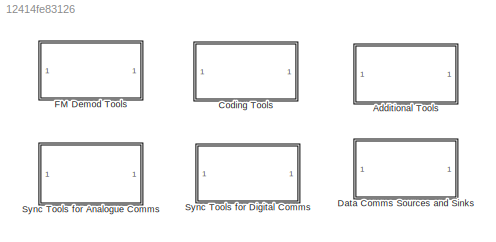
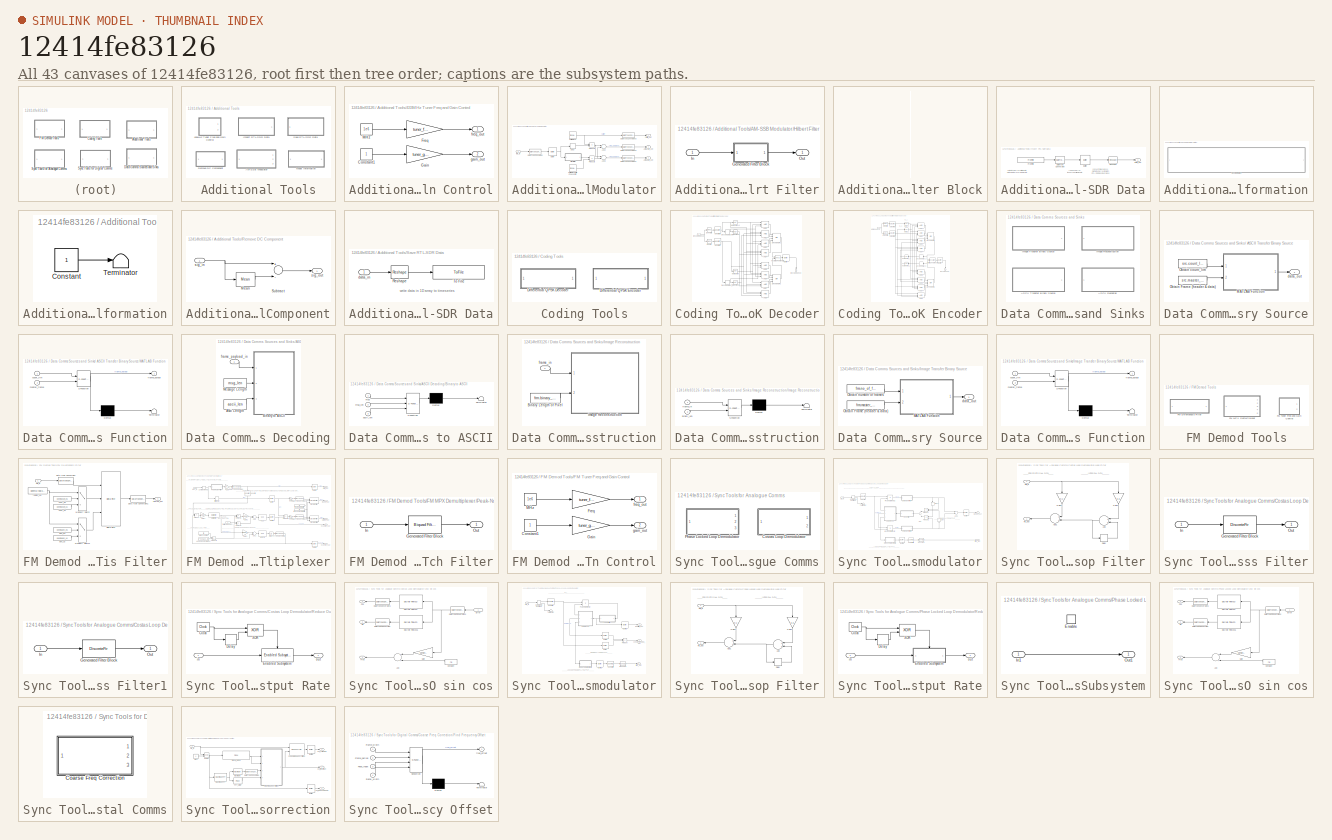
[diagram: thumbnail index - all 43 canvases of the model, root first then tree order]
MODEL slx_12414fe83126
KIND library
CONFIG AbsTol = auto
CONFIG EnableMultiTasking = on
CONFIG FixedStep = auto
CONFIG MaxStep = auto
CONFIG MinStep = auto
CONFIG RelTol = 1e-3
CONFIG SampleTimeConstraint = Unconstrained
CONFIG Solver = ode45
CONFIG SolverName = ode45
CONFIG StartTime = 0.0
CONFIG StopTime = 10.0
BLOCK [SubSystem] Additional Tools
  Ports = []
  RequestExecContextInheritance = off
BLOCK [SubSystem] Additional Tools/433MHz Tuner Freq and Gain Control
  Ports = [0, 2]
  RequestExecContextInheritance = off
BLOCK [Constant] Additional Tools/433MHz Tuner Freq and Gain Control/Constant1
BLOCK [Gain] Additional Tools/433MHz Tuner Freq and Gain Control/Freq
  Gain = tuner_freq
  OutDataTypeStr = Inherit: Inherit via internal rule
  ParamDataTypeStr = Inherit: Inherit via internal rule
  SaturateOnIntegerOverflow = off
BLOCK [Gain] Additional Tools/433MHz Tuner Freq and Gain Control/Gain
  Gain = tuner_gain
  OutDataTypeStr = Inherit: Inherit via internal rule
  ParamDataTypeStr = Inherit: Inherit via internal rule
  SaturateOnIntegerOverflow = off
BLOCK [Constant] Additional Tools/433MHz Tuner Freq and Gain Control/MHz
  Value = 1e6
BLOCK [Outport] Additional Tools/433MHz Tuner Freq and Gain Control/freq_out
  IconDisplay = Port number
BLOCK [Outport] Additional Tools/433MHz Tuner Freq and Gain Control/gain_out
  IconDisplay = Port number
  Port = 2
BLOCK [SubSystem] Additional Tools/AM-SSB Modulator
  Ports = [1, 3]
  RequestExecContextInheritance = off
BLOCK [Outport] Additional Tools/AM-SSB Modulator/AM-SLSB_out
  IconDisplay = Port number
BLOCK [Outport] Additional Tools/AM-SSB Modulator/AM-SUSB_out
  IconDisplay = Port number
  Port = 2
BLOCK [Sum] Additional Tools/AM-SSB Modulator/Add2
  InputSameDT = off
  OutDataTypeStr = Inherit: Inherit via internal rule
  Ports = [2, 1]
  SaturateOnIntegerOverflow = off
BLOCK [Sum] Additional Tools/AM-SSB Modulator/Add3
  InputSameDT = off
  Inputs = +-
  OutDataTypeStr = Inherit: Inherit via internal rule
  Ports = [2, 1]
  SaturateOnIntegerOverflow = off
BLOCK [Buffer] Additional Tools/AM-SSB Modulator/Buffer
  N = frm_size
BLOCK [Reference] Additional Tools/AM-SSB Modulator/Carrier Wave  REF=dspsrcs4/Sine Wave
  Ports = [0, 1]
  SourceBlock = dspsrcs4/Sine Wave
  SourceProductBaseCode = DS
  SourceProductName = DSP System Toolbox
  SourceType = Sine Wave
BLOCK [Reference] Additional Tools/AM-SSB Modulator/Carrier Wave with Phase Shift  REF=dspsrcs4/Sine Wave
  Ports = [0, 1]
  SourceBlock = dspsrcs4/Sine Wave
  SourceProductBaseCode = DS
  SourceProductName = DSP System Toolbox
  SourceType = Sine Wave
BLOCK [DataTypeConversion] Additional Tools/AM-SSB Modulator/Data Type Conversion
  OutDataTypeStr = double
  RndMeth = Floor
  SaturateOnIntegerOverflow = off
BLOCK [DataTypeConversion] Additional Tools/AM-SSB Modulator/Data Type Conversion1
  RndMeth = Floor
  SaturateOnIntegerOverflow = off
BLOCK [DataTypeConversion] Additional Tools/AM-SSB Modulator/Data Type Conversion2
  RndMeth = Floor
  SaturateOnIntegerOverflow = off
BLOCK [DataTypeConversion] Additional Tools/AM-SSB Modulator/Data Type Conversion3
  RndMeth = Floor
  SaturateOnIntegerOverflow = off
BLOCK [Delay] Additional Tools/AM-SSB Modulator/Delay
  DelayLength = 100
  InitialCondition = 0
  InputPortMap = u0
  InputProcessing = Columns as channels (frame based)
  Ports = [1, 1]
BLOCK [SubSystem] Additional Tools/AM-SSB Modulator/Hilbert Filter
  CopyFcn = fdesignblkfcn(gcbh, {'CopyFcn'});
  DialogController = fdesignblkfcn
  InitFcn = fdesignblkfcn(gcbh, {'InitFcn'});
  Ports = [1, 1]
  RequestExecContextInheritance = off
  UserDataPersistent = on
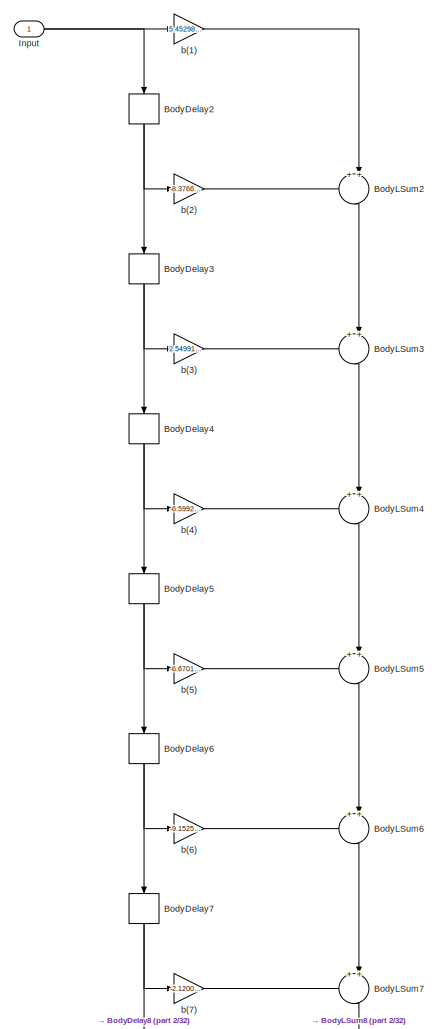
[diagram: Additional Tools/AM-SSB Modulator/Hilbert Filter/Generated Filter Block - part 1/32, full width, top band]
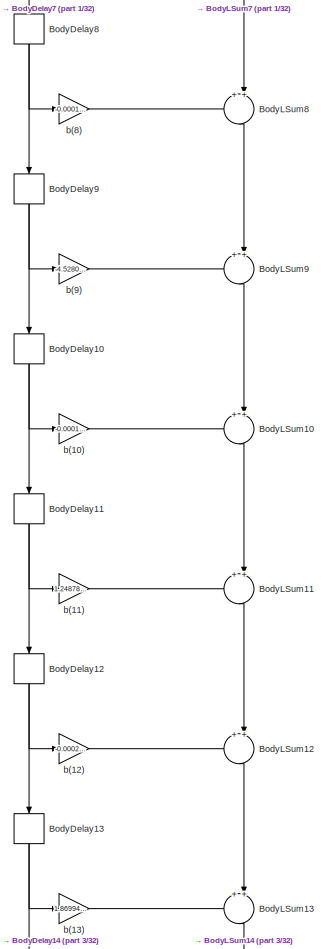
[diagram: Additional Tools/AM-SSB Modulator/Hilbert Filter/Generated Filter Block - part 2/32, top center region]
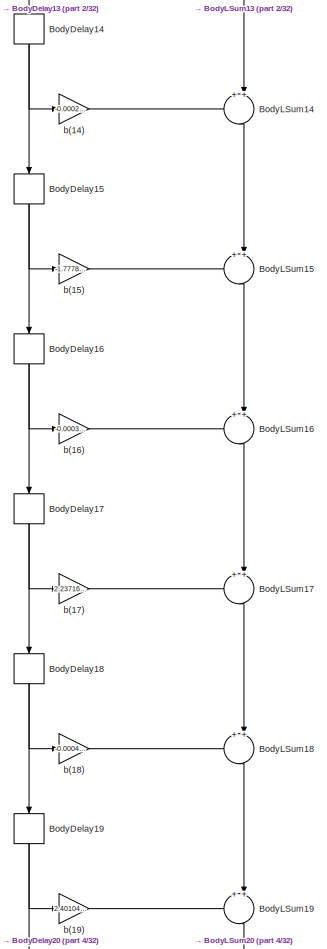
[diagram: Additional Tools/AM-SSB Modulator/Hilbert Filter/Generated Filter Block - part 3/32, top center region]
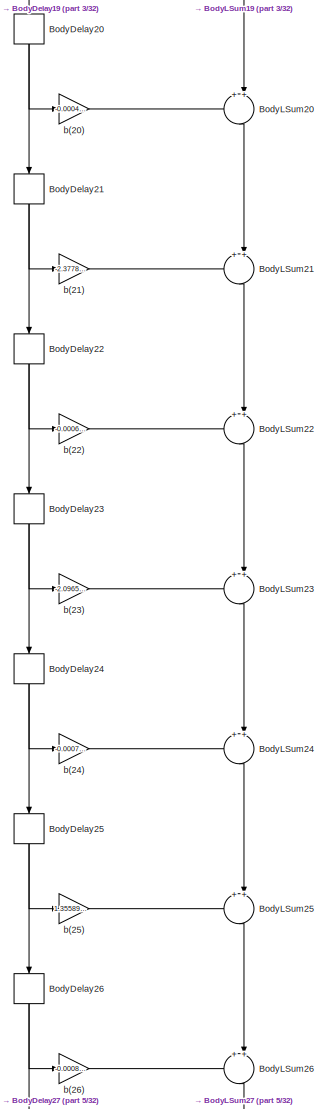
[diagram: Additional Tools/AM-SSB Modulator/Hilbert Filter/Generated Filter Block - part 4/32, top center region]
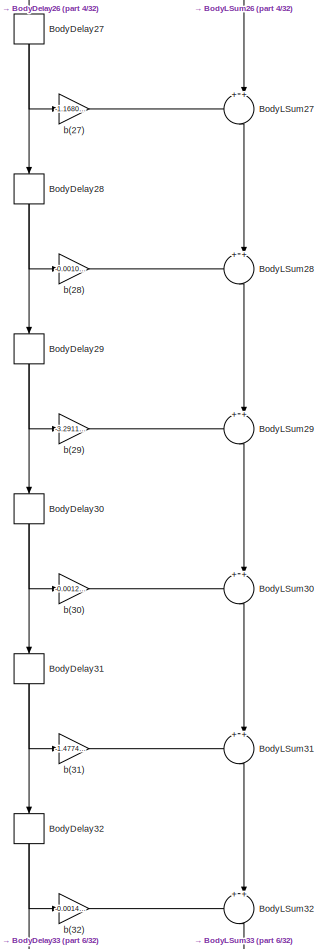
[diagram: Additional Tools/AM-SSB Modulator/Hilbert Filter/Generated Filter Block - part 5/32, top center region]
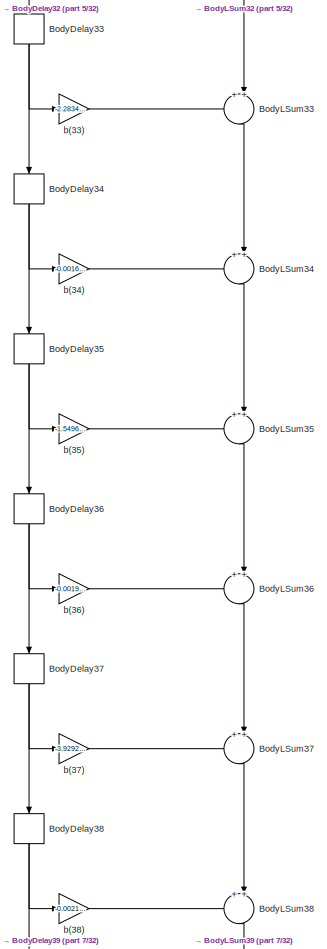
[diagram: Additional Tools/AM-SSB Modulator/Hilbert Filter/Generated Filter Block - part 6/32, top center region]
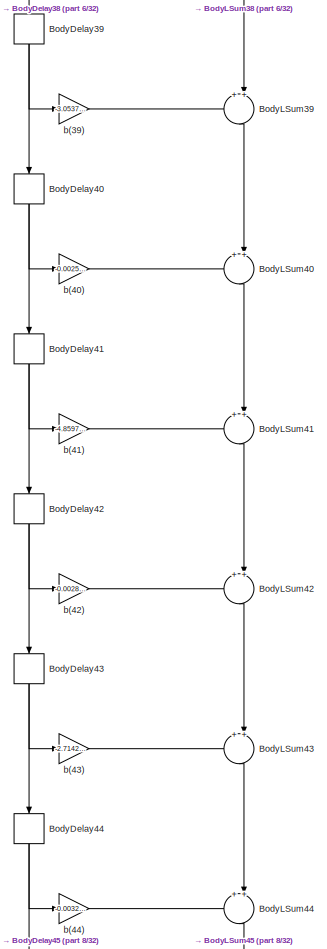
[diagram: Additional Tools/AM-SSB Modulator/Hilbert Filter/Generated Filter Block - part 7/32, top center region]
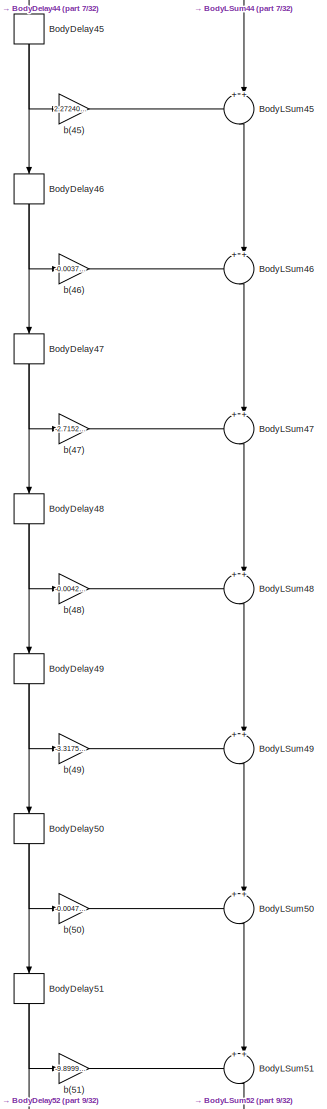
[diagram: Additional Tools/AM-SSB Modulator/Hilbert Filter/Generated Filter Block - part 8/32, top center region]
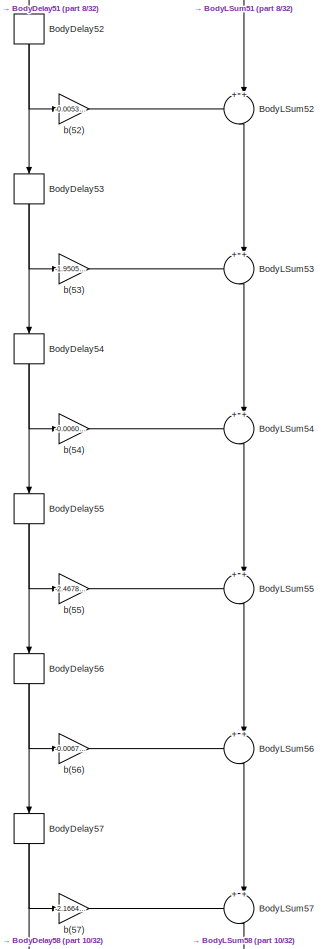
[diagram: Additional Tools/AM-SSB Modulator/Hilbert Filter/Generated Filter Block - part 9/32, top center region]
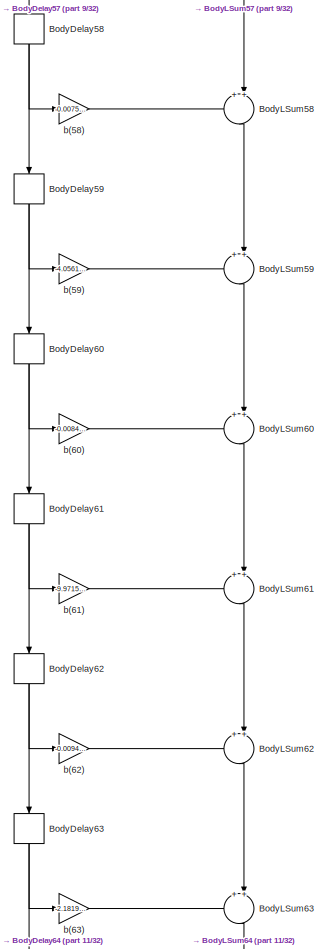
[diagram: Additional Tools/AM-SSB Modulator/Hilbert Filter/Generated Filter Block - part 10/32, top center region]
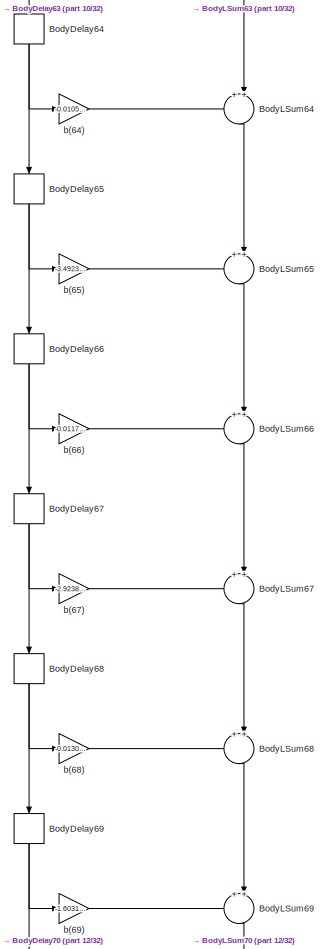
[diagram: Additional Tools/AM-SSB Modulator/Hilbert Filter/Generated Filter Block - part 11/32, top center region]
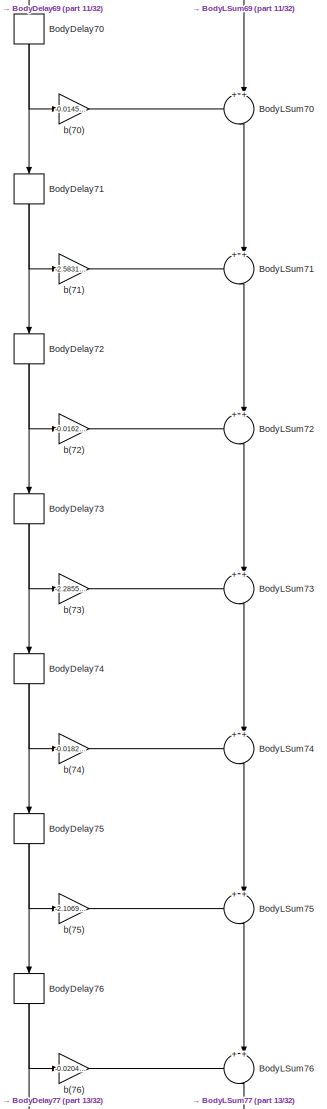
[diagram: Additional Tools/AM-SSB Modulator/Hilbert Filter/Generated Filter Block - part 12/32, central region]
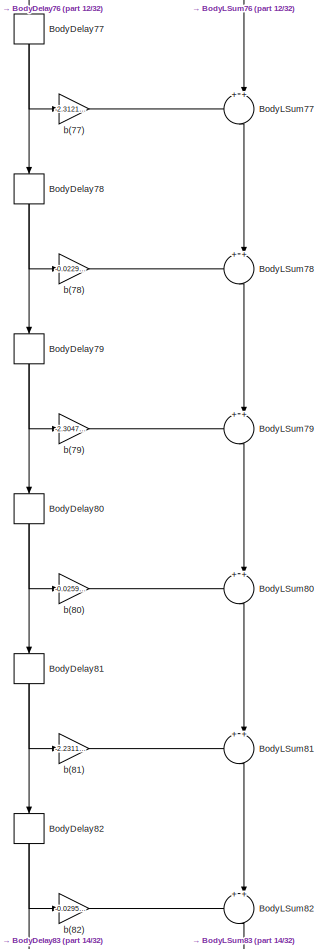
[diagram: Additional Tools/AM-SSB Modulator/Hilbert Filter/Generated Filter Block - part 13/32, central region]
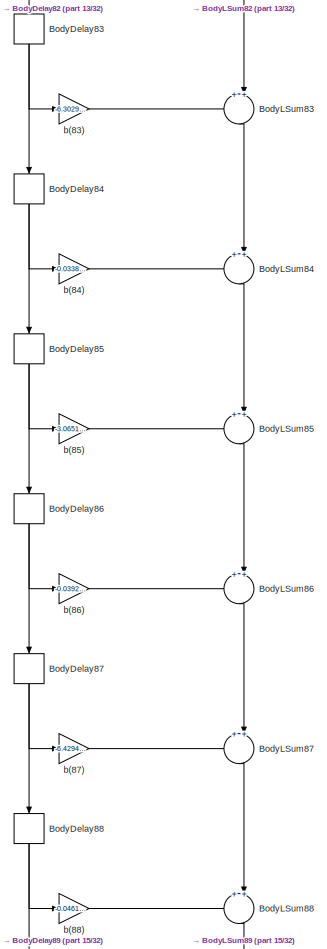
[diagram: Additional Tools/AM-SSB Modulator/Hilbert Filter/Generated Filter Block - part 14/32, central region]
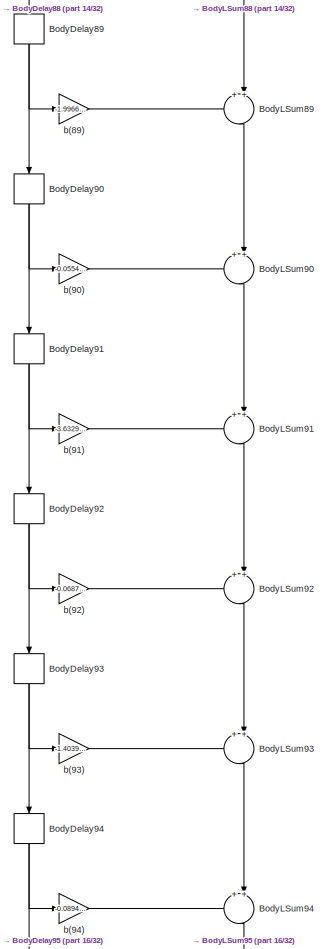
[diagram: Additional Tools/AM-SSB Modulator/Hilbert Filter/Generated Filter Block - part 15/32, central region]
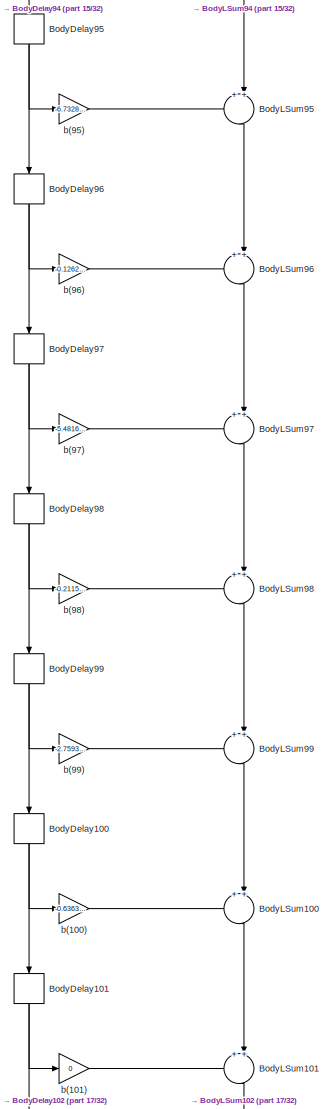
[diagram: Additional Tools/AM-SSB Modulator/Hilbert Filter/Generated Filter Block - part 16/32, central region]
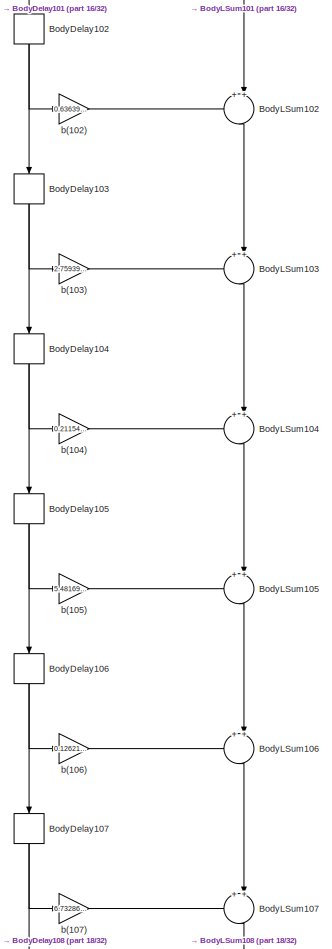
[diagram: Additional Tools/AM-SSB Modulator/Hilbert Filter/Generated Filter Block - part 17/32, central region]
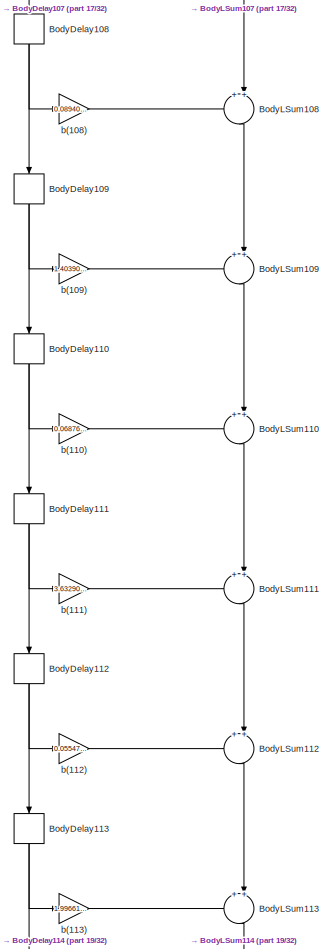
[diagram: Additional Tools/AM-SSB Modulator/Hilbert Filter/Generated Filter Block - part 18/32, central region]
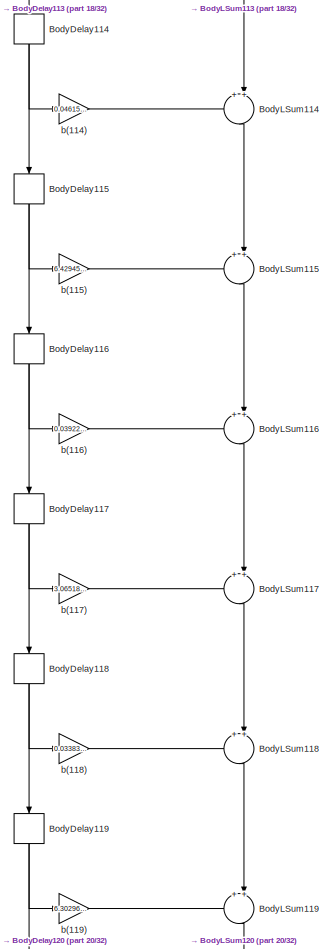
[diagram: Additional Tools/AM-SSB Modulator/Hilbert Filter/Generated Filter Block - part 19/32, central region]
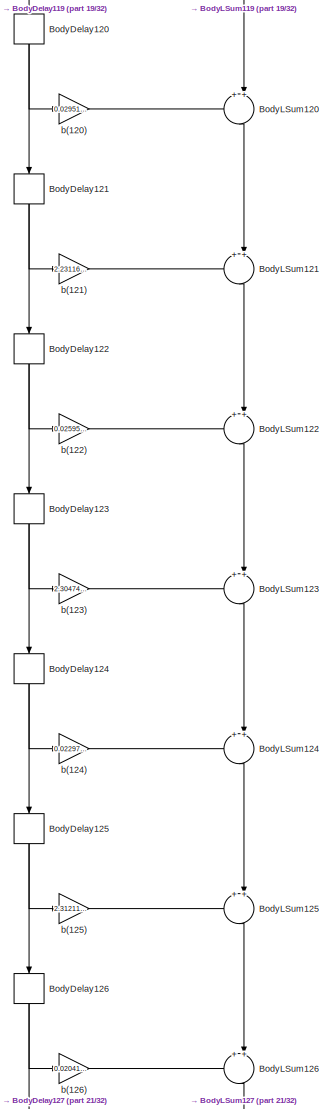
[diagram: Additional Tools/AM-SSB Modulator/Hilbert Filter/Generated Filter Block - part 20/32, central region]
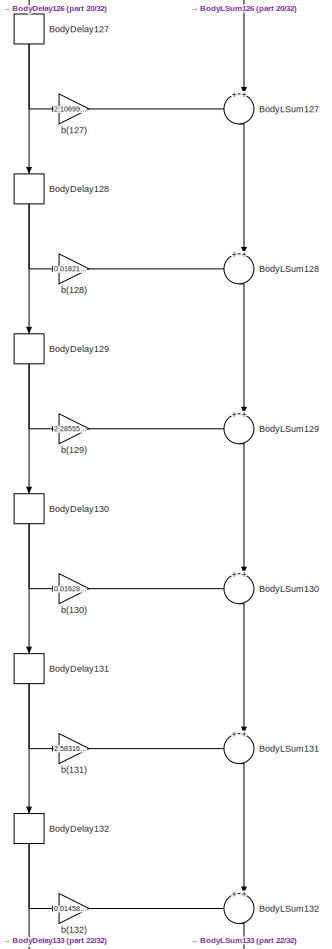
[diagram: Additional Tools/AM-SSB Modulator/Hilbert Filter/Generated Filter Block - part 21/32, central region]
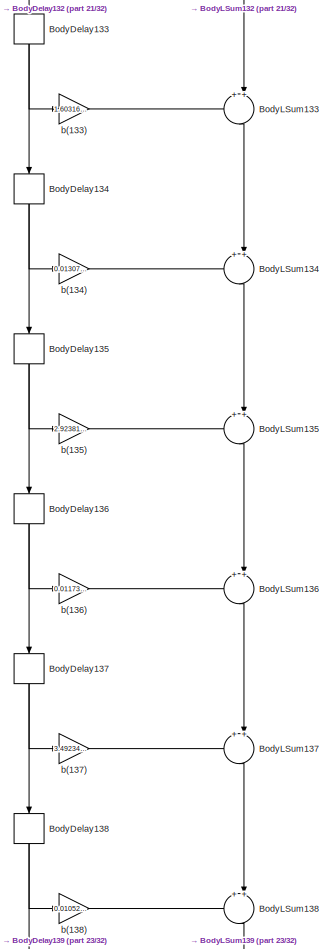
[diagram: Additional Tools/AM-SSB Modulator/Hilbert Filter/Generated Filter Block - part 22/32, bottom center region]
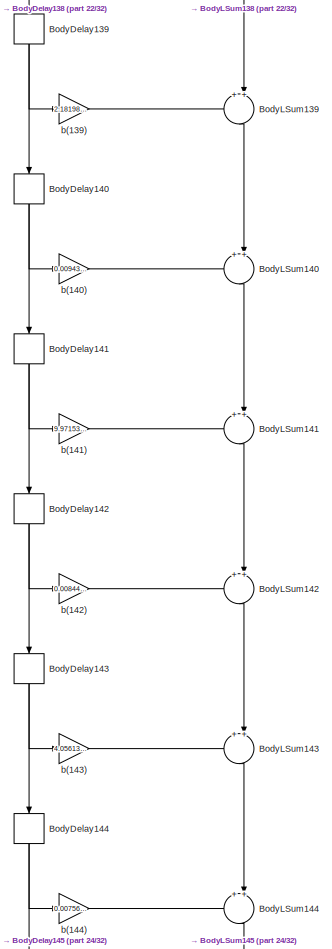
[diagram: Additional Tools/AM-SSB Modulator/Hilbert Filter/Generated Filter Block - part 23/32, bottom center region]
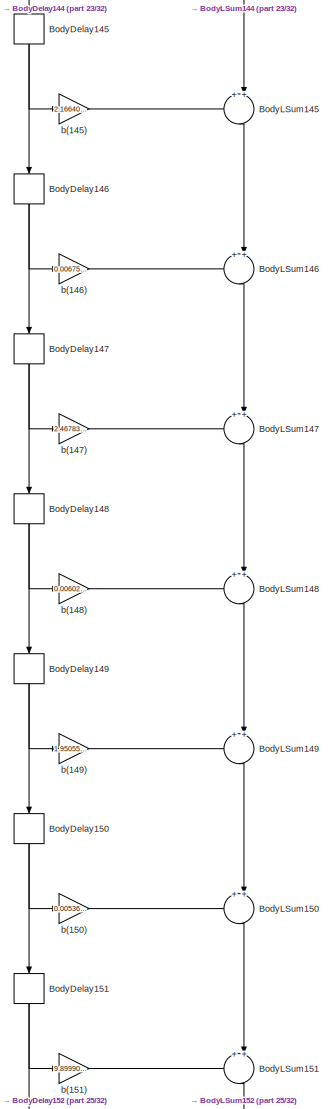
[diagram: Additional Tools/AM-SSB Modulator/Hilbert Filter/Generated Filter Block - part 24/32, bottom center region]
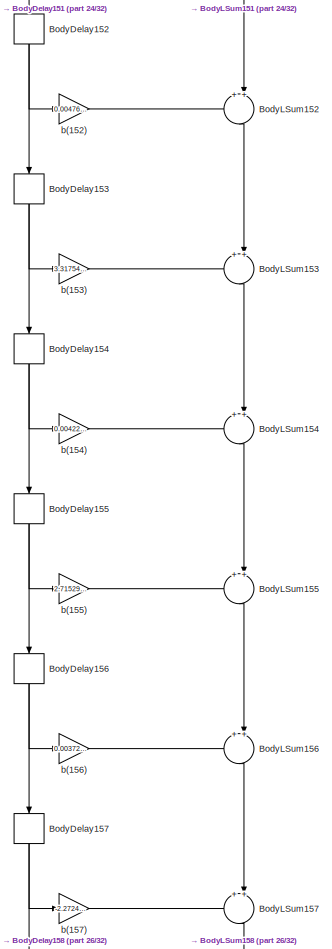
[diagram: Additional Tools/AM-SSB Modulator/Hilbert Filter/Generated Filter Block - part 25/32, bottom center region]
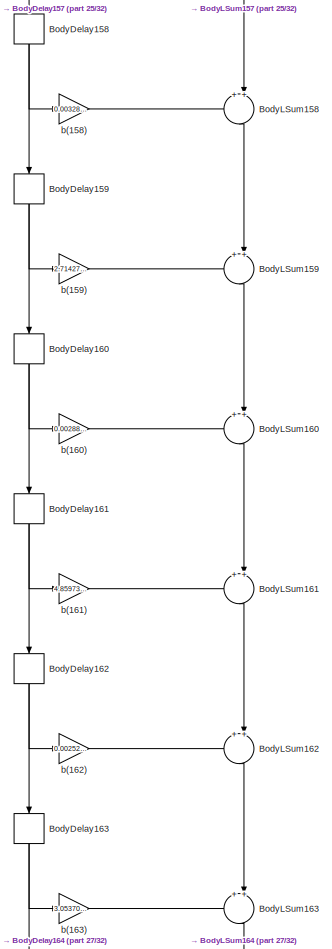
[diagram: Additional Tools/AM-SSB Modulator/Hilbert Filter/Generated Filter Block - part 26/32, bottom center region]
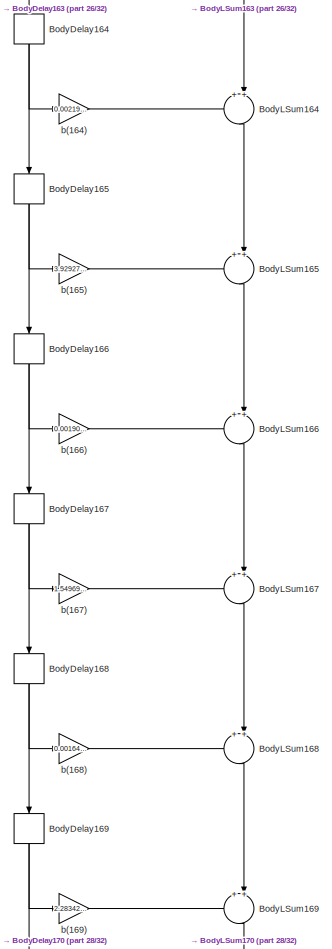
[diagram: Additional Tools/AM-SSB Modulator/Hilbert Filter/Generated Filter Block - part 27/32, bottom center region]
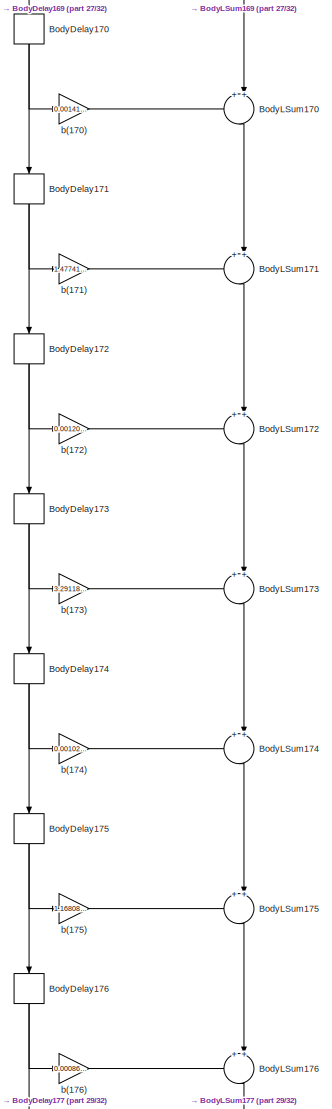
[diagram: Additional Tools/AM-SSB Modulator/Hilbert Filter/Generated Filter Block - part 28/32, bottom center region]
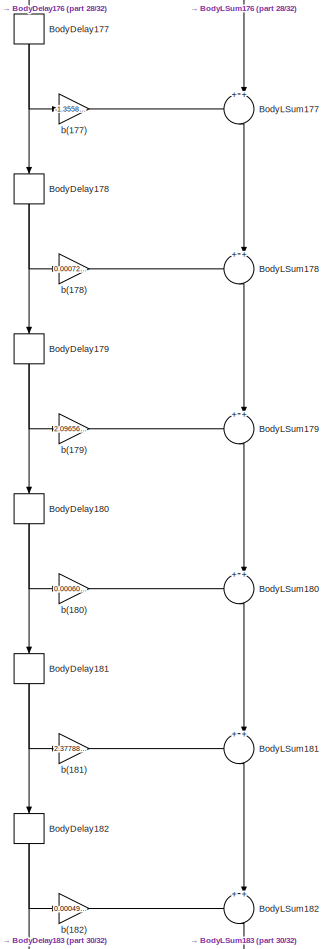
[diagram: Additional Tools/AM-SSB Modulator/Hilbert Filter/Generated Filter Block - part 29/32, bottom center region]
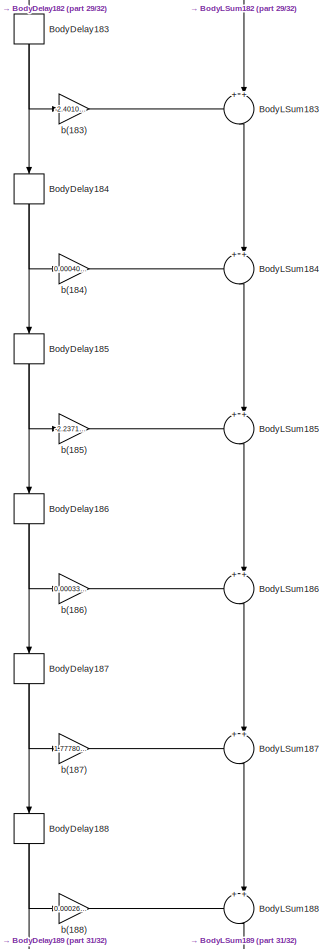
[diagram: Additional Tools/AM-SSB Modulator/Hilbert Filter/Generated Filter Block - part 30/32, bottom center region]
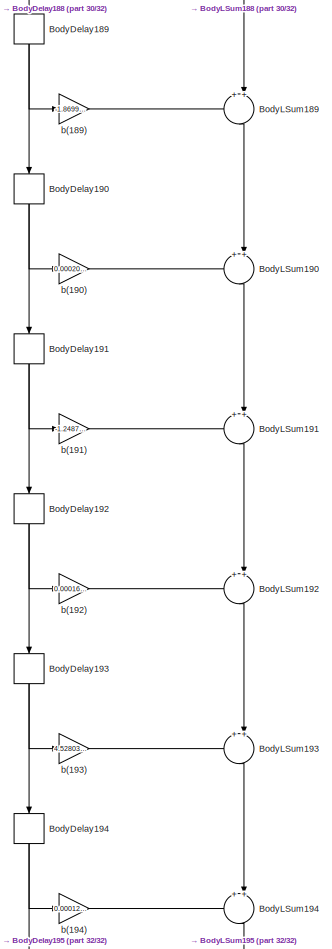
[diagram: Additional Tools/AM-SSB Modulator/Hilbert Filter/Generated Filter Block - part 31/32, bottom center region]
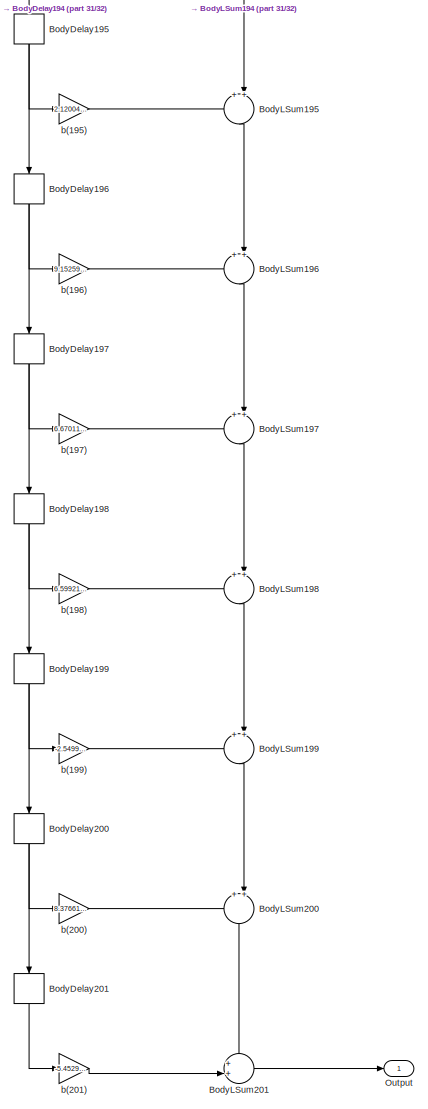
[diagram: Additional Tools/AM-SSB Modulator/Hilbert Filter/Generated Filter Block - part 32/32, full width, bottom band]
BLOCK [SubSystem] Additional Tools/AM-SSB Modulator/Hilbert Filter/Generated Filter Block
  ErrorFcn = dspFilterRealizedInBasicElemsAlgLoopErrFcnCallback
  Ports = [1, 1]
  RequestExecContextInheritance = off
  Tag = FilterWizardSubSystem
  UserDataPersistent = on
BLOCK [Delay] Additional Tools/AM-SSB Modulator/Hilbert Filter/Generated Filter Block/BodyDelay10
  DelayLength = 1
  InitialCondition = 0
  InputPortMap = u0
  InputProcessing = Columns as channels (frame based)
  Ports = [1, 1]
BLOCK [Delay] Additional Tools/AM-SSB Modulator/Hilbert Filter/Generated Filter Block/BodyDelay100
  DelayLength = 1
  InitialCondition = 0
  InputPortMap = u0
  InputProcessing = Columns as channels (frame based)
  Ports = [1, 1]
BLOCK [Delay] Additional Tools/AM-SSB Modulator/Hilbert Filter/Generated Filter Block/BodyDelay101
  DelayLength = 1
  InitialCondition = 0
  InputPortMap = u0
  InputProcessing = Columns as channels (frame based)
  Ports = [1, 1]
BLOCK [Delay] Additional Tools/AM-SSB Modulator/Hilbert Filter/Generated Filter Block/BodyDelay102
  DelayLength = 1
  InitialCondition = 0
  InputPortMap = u0
  InputProcessing = Columns as channels (frame based)
  Ports = [1, 1]
BLOCK [Delay] Additional Tools/AM-SSB Modulator/Hilbert Filter/Generated Filter Block/BodyDelay103
  DelayLength = 1
  InitialCondition = 0
  InputPortMap = u0
  InputProcessing = Columns as channels (frame based)
  Ports = [1, 1]
BLOCK [Delay] Additional Tools/AM-SSB Modulator/Hilbert Filter/Generated Filter Block/BodyDelay104
  DelayLength = 1
  InitialCondition = 0
  InputPortMap = u0
  InputProcessing = Columns as channels (frame based)
  Ports = [1, 1]
BLOCK [Delay] Additional Tools/AM-SSB Modulator/Hilbert Filter/Generated Filter Block/BodyDelay105
  DelayLength = 1
  InitialCondition = 0
  InputPortMap = u0
  InputProcessing = Columns as channels (frame based)
  Ports = [1, 1]
BLOCK [Delay] Additional Tools/AM-SSB Modulator/Hilbert Filter/Generated Filter Block/BodyDelay106
  DelayLength = 1
  InitialCondition = 0
  InputPortMap = u0
  InputProcessing = Columns as channels (frame based)
  Ports = [1, 1]
BLOCK [Delay] Additional Tools/AM-SSB Modulator/Hilbert Filter/Generated Filter Block/BodyDelay107
  DelayLength = 1
  InitialCondition = 0
  InputPortMap = u0
  InputProcessing = Columns as channels (frame based)
  Ports = [1, 1]
BLOCK [Delay] Additional Tools/AM-SSB Modulator/Hilbert Filter/Generated Filter Block/BodyDelay108
  DelayLength = 1
  InitialCondition = 0
  InputPortMap = u0
  InputProcessing = Columns as channels (frame based)
  Ports = [1, 1]
BLOCK [Delay] Additional Tools/AM-SSB Modulator/Hilbert Filter/Generated Filter Block/BodyDelay109
  DelayLength = 1
  InitialCondition = 0
  InputPortMap = u0
  InputProcessing = Columns as channels (frame based)
  Ports = [1, 1]
BLOCK [Delay] Additional Tools/AM-SSB Modulator/Hilbert Filter/Generated Filter Block/BodyDelay11
  DelayLength = 1
  InitialCondition = 0
  InputPortMap = u0
  InputProcessing = Columns as channels (frame based)
  Ports = [1, 1]
BLOCK [Delay] Additional Tools/AM-SSB Modulator/Hilbert Filter/Generated Filter Block/BodyDelay110
  DelayLength = 1
  InitialCondition = 0
  InputPortMap = u0
  InputProcessing = Columns as channels (frame based)
  Ports = [1, 1]
BLOCK [Delay] Additional Tools/AM-SSB Modulator/Hilbert Filter/Generated Filter Block/BodyDelay111
  DelayLength = 1
  InitialCondition = 0
  InputPortMap = u0
  InputProcessing = Columns as channels (frame based)
  Ports = [1, 1]
BLOCK [Delay] Additional Tools/AM-SSB Modulator/Hilbert Filter/Generated Filter Block/BodyDelay112
  DelayLength = 1
  InitialCondition = 0
  InputPortMap = u0
  InputProcessing = Columns as channels (frame based)
  Ports = [1, 1]
BLOCK [Delay] Additional Tools/AM-SSB Modulator/Hilbert Filter/Generated Filter Block/BodyDelay113
  DelayLength = 1
  InitialCondition = 0
  InputPortMap = u0
  InputProcessing = Columns as channels (frame based)
  Ports = [1, 1]
BLOCK [Delay] Additional Tools/AM-SSB Modulator/Hilbert Filter/Generated Filter Block/BodyDelay114
  DelayLength = 1
  InitialCondition = 0
  InputPortMap = u0
  InputProcessing = Columns as channels (frame based)
  Ports = [1, 1]
BLOCK [Delay] Additional Tools/AM-SSB Modulator/Hilbert Filter/Generated Filter Block/BodyDelay115
  DelayLength = 1
  InitialCondition = 0
  InputPortMap = u0
  InputProcessing = Columns as channels (frame based)
  Ports = [1, 1]
BLOCK [Delay] Additional Tools/AM-SSB Modulator/Hilbert Filter/Generated Filter Block/BodyDelay116
  DelayLength = 1
  InitialCondition = 0
  InputPortMap = u0
  InputProcessing = Columns as channels (frame based)
  Ports = [1, 1]
BLOCK [Delay] Additional Tools/AM-SSB Modulator/Hilbert Filter/Generated Filter Block/BodyDelay117
  DelayLength = 1
  InitialCondition = 0
  InputPortMap = u0
  InputProcessing = Columns as channels (frame based)
  Ports = [1, 1]
BLOCK [Delay] Additional Tools/AM-SSB Modulator/Hilbert Filter/Generated Filter Block/BodyDelay118
  DelayLength = 1
  InitialCondition = 0
  InputPortMap = u0
  InputProcessing = Columns as channels (frame based)
  Ports = [1, 1]
BLOCK [Delay] Additional Tools/AM-SSB Modulator/Hilbert Filter/Generated Filter Block/BodyDelay119
  DelayLength = 1
  InitialCondition = 0
  InputPortMap = u0
  InputProcessing = Columns as channels (frame based)
  Ports = [1, 1]
BLOCK [Delay] Additional Tools/AM-SSB Modulator/Hilbert Filter/Generated Filter Block/BodyDelay12
  DelayLength = 1
  InitialCondition = 0
  InputPortMap = u0
  InputProcessing = Columns as channels (frame based)
  Ports = [1, 1]
BLOCK [Delay] Additional Tools/AM-SSB Modulator/Hilbert Filter/Generated Filter Block/BodyDelay120
  DelayLength = 1
  InitialCondition = 0
  InputPortMap = u0
  InputProcessing = Columns as channels (frame based)
  Ports = [1, 1]
BLOCK [Delay] Additional Tools/AM-SSB Modulator/Hilbert Filter/Generated Filter Block/BodyDelay121
  DelayLength = 1
  InitialCondition = 0
  InputPortMap = u0
  InputProcessing = Columns as channels (frame based)
  Ports = [1, 1]
BLOCK [Delay] Additional Tools/AM-SSB Modulator/Hilbert Filter/Generated Filter Block/BodyDelay122
  DelayLength = 1
  InitialCondition = 0
  InputPortMap = u0
  InputProcessing = Columns as channels (frame based)
  Ports = [1, 1]
BLOCK [Delay] Additional Tools/AM-SSB Modulator/Hilbert Filter/Generated Filter Block/BodyDelay123
  DelayLength = 1
  InitialCondition = 0
  InputPortMap = u0
  InputProcessing = Columns as channels (frame based)
  Ports = [1, 1]
BLOCK [Delay] Additional Tools/AM-SSB Modulator/Hilbert Filter/Generated Filter Block/BodyDelay124
  DelayLength = 1
  InitialCondition = 0
  InputPortMap = u0
  InputProcessing = Columns as channels (frame based)
  Ports = [1, 1]
BLOCK [Delay] Additional Tools/AM-SSB Modulator/Hilbert Filter/Generated Filter Block/BodyDelay125
  DelayLength = 1
  InitialCondition = 0
  InputPortMap = u0
  InputProcessing = Columns as channels (frame based)
  Ports = [1, 1]
BLOCK [Delay] Additional Tools/AM-SSB Modulator/Hilbert Filter/Generated Filter Block/BodyDelay126
  DelayLength = 1
  InitialCondition = 0
  InputPortMap = u0
  InputProcessing = Columns as channels (frame based)
  Ports = [1, 1]
BLOCK [Delay] Additional Tools/AM-SSB Modulator/Hilbert Filter/Generated Filter Block/BodyDelay127
  DelayLength = 1
  InitialCondition = 0
  InputPortMap = u0
  InputProcessing = Columns as channels (frame based)
  Ports = [1, 1]
BLOCK [Delay] Additional Tools/AM-SSB Modulator/Hilbert Filter/Generated Filter Block/BodyDelay128
  DelayLength = 1
  InitialCondition = 0
  InputPortMap = u0
  InputProcessing = Columns as channels (frame based)
  Ports = [1, 1]
BLOCK [Delay] Additional Tools/AM-SSB Modulator/Hilbert Filter/Generated Filter Block/BodyDelay129
  DelayLength = 1
  InitialCondition = 0
  InputPortMap = u0
  InputProcessing = Columns as channels (frame based)
  Ports = [1, 1]
BLOCK [Delay] Additional Tools/AM-SSB Modulator/Hilbert Filter/Generated Filter Block/BodyDelay13
  DelayLength = 1
  InitialCondition = 0
  InputPortMap = u0
  InputProcessing = Columns as channels (frame based)
  Ports = [1, 1]
BLOCK [Delay] Additional Tools/AM-SSB Modulator/Hilbert Filter/Generated Filter Block/BodyDelay130
  DelayLength = 1
  InitialCondition = 0
  InputPortMap = u0
  InputProcessing = Columns as channels (frame based)
  Ports = [1, 1]
BLOCK [Delay] Additional Tools/AM-SSB Modulator/Hilbert Filter/Generated Filter Block/BodyDelay131
  DelayLength = 1
  InitialCondition = 0
  InputPortMap = u0
  InputProcessing = Columns as channels (frame based)
  Ports = [1, 1]
BLOCK [Delay] Additional Tools/AM-SSB Modulator/Hilbert Filter/Generated Filter Block/BodyDelay132
  DelayLength = 1
  InitialCondition = 0
  InputPortMap = u0
  InputProcessing = Columns as channels (frame based)
  Ports = [1, 1]
BLOCK [Delay] Additional Tools/AM-SSB Modulator/Hilbert Filter/Generated Filter Block/BodyDelay133
  DelayLength = 1
  InitialCondition = 0
  InputPortMap = u0
  InputProcessing = Columns as channels (frame based)
  Ports = [1, 1]
BLOCK [Delay] Additional Tools/AM-SSB Modulator/Hilbert Filter/Generated Filter Block/BodyDelay134
  DelayLength = 1
  InitialCondition = 0
  InputPortMap = u0
  InputProcessing = Columns as channels (frame based)
  Ports = [1, 1]
BLOCK [Delay] Additional Tools/AM-SSB Modulator/Hilbert Filter/Generated Filter Block/BodyDelay135
  DelayLength = 1
  InitialCondition = 0
  InputPortMap = u0
  InputProcessing = Columns as channels (frame based)
  Ports = [1, 1]
BLOCK [Delay] Additional Tools/AM-SSB Modulator/Hilbert Filter/Generated Filter Block/BodyDelay136
  DelayLength = 1
  InitialCondition = 0
  InputPortMap = u0
  InputProcessing = Columns as channels (frame based)
  Ports = [1, 1]
BLOCK [Delay] Additional Tools/AM-SSB Modulator/Hilbert Filter/Generated Filter Block/BodyDelay137
  DelayLength = 1
  InitialCondition = 0
  InputPortMap = u0
  InputProcessing = Columns as channels (frame based)
  Ports = [1, 1]
BLOCK [Delay] Additional Tools/AM-SSB Modulator/Hilbert Filter/Generated Filter Block/BodyDelay138
  DelayLength = 1
  InitialCondition = 0
  InputPortMap = u0
  InputProcessing = Columns as channels (frame based)
  Ports = [1, 1]
BLOCK [Delay] Additional Tools/AM-SSB Modulator/Hilbert Filter/Generated Filter Block/BodyDelay139
  DelayLength = 1
  InitialCondition = 0
  InputPortMap = u0
  InputProcessing = Columns as channels (frame based)
  Ports = [1, 1]
BLOCK [Delay] Additional Tools/AM-SSB Modulator/Hilbert Filter/Generated Filter Block/BodyDelay14
  DelayLength = 1
  InitialCondition = 0
  InputPortMap = u0
  InputProcessing = Columns as channels (frame based)
  Ports = [1, 1]
BLOCK [Delay] Additional Tools/AM-SSB Modulator/Hilbert Filter/Generated Filter Block/BodyDelay140
  DelayLength = 1
  InitialCondition = 0
  InputPortMap = u0
  InputProcessing = Columns as channels (frame based)
  Ports = [1, 1]
BLOCK [Delay] Additional Tools/AM-SSB Modulator/Hilbert Filter/Generated Filter Block/BodyDelay141
  DelayLength = 1
  InitialCondition = 0
  InputPortMap = u0
  InputProcessing = Columns as channels (frame based)
  Ports = [1, 1]
BLOCK [Delay] Additional Tools/AM-SSB Modulator/Hilbert Filter/Generated Filter Block/BodyDelay142
  DelayLength = 1
  InitialCondition = 0
  InputPortMap = u0
  InputProcessing = Columns as channels (frame based)
  Ports = [1, 1]
BLOCK [Delay] Additional Tools/AM-SSB Modulator/Hilbert Filter/Generated Filter Block/BodyDelay143
  DelayLength = 1
  InitialCondition = 0
  InputPortMap = u0
  InputProcessing = Columns as channels (frame based)
  Ports = [1, 1]
BLOCK [Delay] Additional Tools/AM-SSB Modulator/Hilbert Filter/Generated Filter Block/BodyDelay144
  DelayLength = 1
  InitialCondition = 0
  InputPortMap = u0
  InputProcessing = Columns as channels (frame based)
  Ports = [1, 1]
BLOCK [Delay] Additional Tools/AM-SSB Modulator/Hilbert Filter/Generated Filter Block/BodyDelay145
  DelayLength = 1
  InitialCondition = 0
  InputPortMap = u0
  InputProcessing = Columns as channels (frame based)
  Ports = [1, 1]
BLOCK [Delay] Additional Tools/AM-SSB Modulator/Hilbert Filter/Generated Filter Block/BodyDelay146
  DelayLength = 1
  InitialCondition = 0
  InputPortMap = u0
  InputProcessing = Columns as channels (frame based)
  Ports = [1, 1]
BLOCK [Delay] Additional Tools/AM-SSB Modulator/Hilbert Filter/Generated Filter Block/BodyDelay147
  DelayLength = 1
  InitialCondition = 0
  InputPortMap = u0
  InputProcessing = Columns as channels (frame based)
  Ports = [1, 1]
BLOCK [Delay] Additional Tools/AM-SSB Modulator/Hilbert Filter/Generated Filter Block/BodyDelay148
  DelayLength = 1
  InitialCondition = 0
  InputPortMap = u0
  InputProcessing = Columns as channels (frame based)
  Ports = [1, 1]
BLOCK [Delay] Additional Tools/AM-SSB Modulator/Hilbert Filter/Generated Filter Block/BodyDelay149
  DelayLength = 1
  InitialCondition = 0
  InputPortMap = u0
  InputProcessing = Columns as channels (frame based)
  Ports = [1, 1]
BLOCK [Delay] Additional Tools/AM-SSB Modulator/Hilbert Filter/Generated Filter Block/BodyDelay15
  DelayLength = 1
  InitialCondition = 0
  InputPortMap = u0
  InputProcessing = Columns as channels (frame based)
  Ports = [1, 1]
BLOCK [Delay] Additional Tools/AM-SSB Modulator/Hilbert Filter/Generated Filter Block/BodyDelay150
  DelayLength = 1
  InitialCondition = 0
  InputPortMap = u0
  InputProcessing = Columns as channels (frame based)
  Ports = [1, 1]
BLOCK [Delay] Additional Tools/AM-SSB Modulator/Hilbert Filter/Generated Filter Block/BodyDelay151
  DelayLength = 1
  InitialCondition = 0
  InputPortMap = u0
  InputProcessing = Columns as channels (frame based)
  Ports = [1, 1]
BLOCK [Delay] Additional Tools/AM-SSB Modulator/Hilbert Filter/Generated Filter Block/BodyDelay152
  DelayLength = 1
  InitialCondition = 0
  InputPortMap = u0
  InputProcessing = Columns as channels (frame based)
  Ports = [1, 1]
BLOCK [Delay] Additional Tools/AM-SSB Modulator/Hilbert Filter/Generated Filter Block/BodyDelay153
  DelayLength = 1
  InitialCondition = 0
  InputPortMap = u0
  InputProcessing = Columns as channels (frame based)
  Ports = [1, 1]
BLOCK [Delay] Additional Tools/AM-SSB Modulator/Hilbert Filter/Generated Filter Block/BodyDelay154
  DelayLength = 1
  InitialCondition = 0
  InputPortMap = u0
  InputProcessing = Columns as channels (frame based)
  Ports = [1, 1]
BLOCK [Delay] Additional Tools/AM-SSB Modulator/Hilbert Filter/Generated Filter Block/BodyDelay155
  DelayLength = 1
  InitialCondition = 0
  InputPortMap = u0
  InputProcessing = Columns as channels (frame based)
  Ports = [1, 1]
BLOCK [Delay] Additional Tools/AM-SSB Modulator/Hilbert Filter/Generated Filter Block/BodyDelay156
  DelayLength = 1
  InitialCondition = 0
  InputPortMap = u0
  InputProcessing = Columns as channels (frame based)
  Ports = [1, 1]
BLOCK [Delay] Additional Tools/AM-SSB Modulator/Hilbert Filter/Generated Filter Block/BodyDelay157
  DelayLength = 1
  InitialCondition = 0
  InputPortMap = u0
  InputProcessing = Columns as channels (frame based)
  Ports = [1, 1]
BLOCK [Delay] Additional Tools/AM-SSB Modulator/Hilbert Filter/Generated Filter Block/BodyDelay158
  DelayLength = 1
  InitialCondition = 0
  InputPortMap = u0
  InputProcessing = Columns as channels (frame based)
  Ports = [1, 1]
BLOCK [Delay] Additional Tools/AM-SSB Modulator/Hilbert Filter/Generated Filter Block/BodyDelay159
  DelayLength = 1
  InitialCondition = 0
  InputPortMap = u0
  InputProcessing = Columns as channels (frame based)
  Ports = [1, 1]
BLOCK [Delay] Additional Tools/AM-SSB Modulator/Hilbert Filter/Generated Filter Block/BodyDelay16
  DelayLength = 1
  InitialCondition = 0
  InputPortMap = u0
  InputProcessing = Columns as channels (frame based)
  Ports = [1, 1]
BLOCK [Delay] Additional Tools/AM-SSB Modulator/Hilbert Filter/Generated Filter Block/BodyDelay160
  DelayLength = 1
  InitialCondition = 0
  InputPortMap = u0
  InputProcessing = Columns as channels (frame based)
  Ports = [1, 1]
BLOCK [Delay] Additional Tools/AM-SSB Modulator/Hilbert Filter/Generated Filter Block/BodyDelay161
  DelayLength = 1
  InitialCondition = 0
  InputPortMap = u0
  InputProcessing = Columns as channels (frame based)
  Ports = [1, 1]
BLOCK [Delay] Additional Tools/AM-SSB Modulator/Hilbert Filter/Generated Filter Block/BodyDelay162
  DelayLength = 1
  InitialCondition = 0
  InputPortMap = u0
  InputProcessing = Columns as channels (frame based)
  Ports = [1, 1]
BLOCK [Delay] Additional Tools/AM-SSB Modulator/Hilbert Filter/Generated Filter Block/BodyDelay163
  DelayLength = 1
  InitialCondition = 0
  InputPortMap = u0
  InputProcessing = Columns as channels (frame based)
  Ports = [1, 1]
BLOCK [Delay] Additional Tools/AM-SSB Modulator/Hilbert Filter/Generated Filter Block/BodyDelay164
  DelayLength = 1
  InitialCondition = 0
  InputPortMap = u0
  InputProcessing = Columns as channels (frame based)
  Ports = [1, 1]
BLOCK [Delay] Additional Tools/AM-SSB Modulator/Hilbert Filter/Generated Filter Block/BodyDelay165
  DelayLength = 1
  InitialCondition = 0
  InputPortMap = u0
  InputProcessing = Columns as channels (frame based)
  Ports = [1, 1]
BLOCK [Delay] Additional Tools/AM-SSB Modulator/Hilbert Filter/Generated Filter Block/BodyDelay166
  DelayLength = 1
  InitialCondition = 0
  InputPortMap = u0
  InputProcessing = Columns as channels (frame based)
  Ports = [1, 1]
BLOCK [Delay] Additional Tools/AM-SSB Modulator/Hilbert Filter/Generated Filter Block/BodyDelay167
  DelayLength = 1
  InitialCondition = 0
  InputPortMap = u0
  InputProcessing = Columns as channels (frame based)
  Ports = [1, 1]
BLOCK [Delay] Additional Tools/AM-SSB Modulator/Hilbert Filter/Generated Filter Block/BodyDelay168
  DelayLength = 1
  InitialCondition = 0
  InputPortMap = u0
  InputProcessing = Columns as channels (frame based)
  Ports = [1, 1]
BLOCK [Delay] Additional Tools/AM-SSB Modulator/Hilbert Filter/Generated Filter Block/BodyDelay169
  DelayLength = 1
  InitialCondition = 0
  InputPortMap = u0
  InputProcessing = Columns as channels (frame based)
  Ports = [1, 1]
BLOCK [Delay] Additional Tools/AM-SSB Modulator/Hilbert Filter/Generated Filter Block/BodyDelay17
  DelayLength = 1
  InitialCondition = 0
  InputPortMap = u0
  InputProcessing = Columns as channels (frame based)
  Ports = [1, 1]
BLOCK [Delay] Additional Tools/AM-SSB Modulator/Hilbert Filter/Generated Filter Block/BodyDelay170
  DelayLength = 1
  InitialCondition = 0
  InputPortMap = u0
  InputProcessing = Columns as channels (frame based)
  Ports = [1, 1]
BLOCK [Delay] Additional Tools/AM-SSB Modulator/Hilbert Filter/Generated Filter Block/BodyDelay171
  DelayLength = 1
  InitialCondition = 0
  InputPortMap = u0
  InputProcessing = Columns as channels (frame based)
  Ports = [1, 1]
BLOCK [Delay] Additional Tools/AM-SSB Modulator/Hilbert Filter/Generated Filter Block/BodyDelay172
  DelayLength = 1
  InitialCondition = 0
  InputPortMap = u0
  InputProcessing = Columns as channels (frame based)
  Ports = [1, 1]
BLOCK [Delay] Additional Tools/AM-SSB Modulator/Hilbert Filter/Generated Filter Block/BodyDelay173
  DelayLength = 1
  InitialCondition = 0
  InputPortMap = u0
  InputProcessing = Columns as channels (frame based)
  Ports = [1, 1]
BLOCK [Delay] Additional Tools/AM-SSB Modulator/Hilbert Filter/Generated Filter Block/BodyDelay174
  DelayLength = 1
  InitialCondition = 0
  InputPortMap = u0
  InputProcessing = Columns as channels (frame based)
  Ports = [1, 1]
BLOCK [Delay] Additional Tools/AM-SSB Modulator/Hilbert Filter/Generated Filter Block/BodyDelay175
  DelayLength = 1
  InitialCondition = 0
  InputPortMap = u0
  InputProcessing = Columns as channels (frame based)
  Ports = [1, 1]
BLOCK [Delay] Additional Tools/AM-SSB Modulator/Hilbert Filter/Generated Filter Block/BodyDelay176
  DelayLength = 1
  InitialCondition = 0
  InputPortMap = u0
  InputProcessing = Columns as channels (frame based)
  Ports = [1, 1]
BLOCK [Delay] Additional Tools/AM-SSB Modulator/Hilbert Filter/Generated Filter Block/BodyDelay177
  DelayLength = 1
  InitialCondition = 0
  InputPortMap = u0
  InputProcessing = Columns as channels (frame based)
  Ports = [1, 1]
BLOCK [Delay] Additional Tools/AM-SSB Modulator/Hilbert Filter/Generated Filter Block/BodyDelay178
  DelayLength = 1
  InitialCondition = 0
  InputPortMap = u0
  InputProcessing = Columns as channels (frame based)
  Ports = [1, 1]
BLOCK [Delay] Additional Tools/AM-SSB Modulator/Hilbert Filter/Generated Filter Block/BodyDelay179
  DelayLength = 1
  InitialCondition = 0
  InputPortMap = u0
  InputProcessing = Columns as channels (frame based)
  Ports = [1, 1]
BLOCK [Delay] Additional Tools/AM-SSB Modulator/Hilbert Filter/Generated Filter Block/BodyDelay18
  DelayLength = 1
  InitialCondition = 0
  InputPortMap = u0
  InputProcessing = Columns as channels (frame based)
  Ports = [1, 1]
BLOCK [Delay] Additional Tools/AM-SSB Modulator/Hilbert Filter/Generated Filter Block/BodyDelay180
  DelayLength = 1
  InitialCondition = 0
  InputPortMap = u0
  InputProcessing = Columns as channels (frame based)
  Ports = [1, 1]
BLOCK [Delay] Additional Tools/AM-SSB Modulator/Hilbert Filter/Generated Filter Block/BodyDelay181
  DelayLength = 1
  InitialCondition = 0
  InputPortMap = u0
  InputProcessing = Columns as channels (frame based)
  Ports = [1, 1]
BLOCK [Delay] Additional Tools/AM-SSB Modulator/Hilbert Filter/Generated Filter Block/BodyDelay182
  DelayLength = 1
  InitialCondition = 0
  InputPortMap = u0
  InputProcessing = Columns as channels (frame based)
  Ports = [1, 1]
BLOCK [Delay] Additional Tools/AM-SSB Modulator/Hilbert Filter/Generated Filter Block/BodyDelay183
  DelayLength = 1
  InitialCondition = 0
  InputPortMap = u0
  InputProcessing = Columns as channels (frame based)
  Ports = [1, 1]
BLOCK [Delay] Additional Tools/AM-SSB Modulator/Hilbert Filter/Generated Filter Block/BodyDelay184
  DelayLength = 1
  InitialCondition = 0
  InputPortMap = u0
  InputProcessing = Columns as channels (frame based)
  Ports = [1, 1]
BLOCK [Delay] Additional Tools/AM-SSB Modulator/Hilbert Filter/Generated Filter Block/BodyDelay185
  DelayLength = 1
  InitialCondition = 0
  InputPortMap = u0
  InputProcessing = Columns as channels (frame based)
  Ports = [1, 1]
BLOCK [Delay] Additional Tools/AM-SSB Modulator/Hilbert Filter/Generated Filter Block/BodyDelay186
  DelayLength = 1
  InitialCondition = 0
  InputPortMap = u0
  InputProcessing = Columns as channels (frame based)
  Ports = [1, 1]
BLOCK [Delay] Additional Tools/AM-SSB Modulator/Hilbert Filter/Generated Filter Block/BodyDelay187
  DelayLength = 1
  InitialCondition = 0
  InputPortMap = u0
  InputProcessing = Columns as channels (frame based)
  Ports = [1, 1]
BLOCK [Delay] Additional Tools/AM-SSB Modulator/Hilbert Filter/Generated Filter Block/BodyDelay188
  DelayLength = 1
  InitialCondition = 0
  InputPortMap = u0
  InputProcessing = Columns as channels (frame based)
  Ports = [1, 1]
BLOCK [Delay] Additional Tools/AM-SSB Modulator/Hilbert Filter/Generated Filter Block/BodyDelay189
  DelayLength = 1
  InitialCondition = 0
  InputPortMap = u0
  InputProcessing = Columns as channels (frame based)
  Ports = [1, 1]
BLOCK [Delay] Additional Tools/AM-SSB Modulator/Hilbert Filter/Generated Filter Block/BodyDelay19
  DelayLength = 1
  InitialCondition = 0
  InputPortMap = u0
  InputProcessing = Columns as channels (frame based)
  Ports = [1, 1]
BLOCK [Delay] Additional Tools/AM-SSB Modulator/Hilbert Filter/Generated Filter Block/BodyDelay190
  DelayLength = 1
  InitialCondition = 0
  InputPortMap = u0
  InputProcessing = Columns as channels (frame based)
  Ports = [1, 1]
BLOCK [Delay] Additional Tools/AM-SSB Modulator/Hilbert Filter/Generated Filter Block/BodyDelay191
  DelayLength = 1
  InitialCondition = 0
  InputPortMap = u0
  InputProcessing = Columns as channels (frame based)
  Ports = [1, 1]
BLOCK [Delay] Additional Tools/AM-SSB Modulator/Hilbert Filter/Generated Filter Block/BodyDelay192
  DelayLength = 1
  InitialCondition = 0
  InputPortMap = u0
  InputProcessing = Columns as channels (frame based)
  Ports = [1, 1]
BLOCK [Delay] Additional Tools/AM-SSB Modulator/Hilbert Filter/Generated Filter Block/BodyDelay193
  DelayLength = 1
  InitialCondition = 0
  InputPortMap = u0
  InputProcessing = Columns as channels (frame based)
  Ports = [1, 1]
BLOCK [Delay] Additional Tools/AM-SSB Modulator/Hilbert Filter/Generated Filter Block/BodyDelay194
  DelayLength = 1
  InitialCondition = 0
  InputPortMap = u0
  InputProcessing = Columns as channels (frame based)
  Ports = [1, 1]
BLOCK [Delay] Additional Tools/AM-SSB Modulator/Hilbert Filter/Generated Filter Block/BodyDelay195
  DelayLength = 1
  InitialCondition = 0
  InputPortMap = u0
  InputProcessing = Columns as channels (frame based)
  Ports = [1, 1]
BLOCK [Delay] Additional Tools/AM-SSB Modulator/Hilbert Filter/Generated Filter Block/BodyDelay196
  DelayLength = 1
  InitialCondition = 0
  InputPortMap = u0
  InputProcessing = Columns as channels (frame based)
  Ports = [1, 1]
BLOCK [Delay] Additional Tools/AM-SSB Modulator/Hilbert Filter/Generated Filter Block/BodyDelay197
  DelayLength = 1
  InitialCondition = 0
  InputPortMap = u0
  InputProcessing = Columns as channels (frame based)
  Ports = [1, 1]
BLOCK [Delay] Additional Tools/AM-SSB Modulator/Hilbert Filter/Generated Filter Block/BodyDelay198
  DelayLength = 1
  InitialCondition = 0
  InputPortMap = u0
  InputProcessing = Columns as channels (frame based)
  Ports = [1, 1]
BLOCK [Delay] Additional Tools/AM-SSB Modulator/Hilbert Filter/Generated Filter Block/BodyDelay199
  DelayLength = 1
  InitialCondition = 0
  InputPortMap = u0
  InputProcessing = Columns as channels (frame based)
  Ports = [1, 1]
BLOCK [Delay] Additional Tools/AM-SSB Modulator/Hilbert Filter/Generated Filter Block/BodyDelay2
  DelayLength = 1
  InitialCondition = 0
  InputPortMap = u0
  InputProcessing = Columns as channels (frame based)
  Ports = [1, 1]
BLOCK [Delay] Additional Tools/AM-SSB Modulator/Hilbert Filter/Generated Filter Block/BodyDelay20
  DelayLength = 1
  InitialCondition = 0
  InputPortMap = u0
  InputProcessing = Columns as channels (frame based)
  Ports = [1, 1]
BLOCK [Delay] Additional Tools/AM-SSB Modulator/Hilbert Filter/Generated Filter Block/BodyDelay200
  DelayLength = 1
  InitialCondition = 0
  InputPortMap = u0
  InputProcessing = Columns as channels (frame based)
  Ports = [1, 1]
BLOCK [Delay] Additional Tools/AM-SSB Modulator/Hilbert Filter/Generated Filter Block/BodyDelay201
  DelayLength = 1
  InitialCondition = 0
  InputPortMap = u0
  InputProcessing = Columns as channels (frame based)
  Ports = [1, 1]
BLOCK [Delay] Additional Tools/AM-SSB Modulator/Hilbert Filter/Generated Filter Block/BodyDelay21
  DelayLength = 1
  InitialCondition = 0
  InputPortMap = u0
  InputProcessing = Columns as channels (frame based)
  Ports = [1, 1]
BLOCK [Delay] Additional Tools/AM-SSB Modulator/Hilbert Filter/Generated Filter Block/BodyDelay22
  DelayLength = 1
  InitialCondition = 0
  InputPortMap = u0
  InputProcessing = Columns as channels (frame based)
  Ports = [1, 1]
BLOCK [Delay] Additional Tools/AM-SSB Modulator/Hilbert Filter/Generated Filter Block/BodyDelay23
  DelayLength = 1
  InitialCondition = 0
  InputPortMap = u0
  InputProcessing = Columns as channels (frame based)
  Ports = [1, 1]
BLOCK [Delay] Additional Tools/AM-SSB Modulator/Hilbert Filter/Generated Filter Block/BodyDelay24
  DelayLength = 1
  InitialCondition = 0
  InputPortMap = u0
  InputProcessing = Columns as channels (frame based)
  Ports = [1, 1]
BLOCK [Delay] Additional Tools/AM-SSB Modulator/Hilbert Filter/Generated Filter Block/BodyDelay25
  DelayLength = 1
  InitialCondition = 0
  InputPortMap = u0
  InputProcessing = Columns as channels (frame based)
  Ports = [1, 1]
BLOCK [Delay] Additional Tools/AM-SSB Modulator/Hilbert Filter/Generated Filter Block/BodyDelay26
  DelayLength = 1
  InitialCondition = 0
  InputPortMap = u0
  InputProcessing = Columns as channels (frame based)
  Ports = [1, 1]
BLOCK [Delay] Additional Tools/AM-SSB Modulator/Hilbert Filter/Generated Filter Block/BodyDelay27
  DelayLength = 1
  InitialCondition = 0
  InputPortMap = u0
  InputProcessing = Columns as channels (frame based)
  Ports = [1, 1]
BLOCK [Delay] Additional Tools/AM-SSB Modulator/Hilbert Filter/Generated Filter Block/BodyDelay28
  DelayLength = 1
  InitialCondition = 0
  InputPortMap = u0
  InputProcessing = Columns as channels (frame based)
  Ports = [1, 1]
BLOCK [Delay] Additional Tools/AM-SSB Modulator/Hilbert Filter/Generated Filter Block/BodyDelay29
  DelayLength = 1
  InitialCondition = 0
  InputPortMap = u0
  InputProcessing = Columns as channels (frame based)
  Ports = [1, 1]
BLOCK [Delay] Additional Tools/AM-SSB Modulator/Hilbert Filter/Generated Filter Block/BodyDelay3
  DelayLength = 1
  InitialCondition = 0
  InputPortMap = u0
  InputProcessing = Columns as channels (frame based)
  Ports = [1, 1]
BLOCK [Delay] Additional Tools/AM-SSB Modulator/Hilbert Filter/Generated Filter Block/BodyDelay30
  DelayLength = 1
  InitialCondition = 0
  InputPortMap = u0
  InputProcessing = Columns as channels (frame based)
  Ports = [1, 1]
BLOCK [Delay] Additional Tools/AM-SSB Modulator/Hilbert Filter/Generated Filter Block/BodyDelay31
  DelayLength = 1
  InitialCondition = 0
  InputPortMap = u0
  InputProcessing = Columns as channels (frame based)
  Ports = [1, 1]
BLOCK [Delay] Additional Tools/AM-SSB Modulator/Hilbert Filter/Generated Filter Block/BodyDelay32
  DelayLength = 1
  InitialCondition = 0
  InputPortMap = u0
  InputProcessing = Columns as channels (frame based)
  Ports = [1, 1]
BLOCK [Delay] Additional Tools/AM-SSB Modulator/Hilbert Filter/Generated Filter Block/BodyDelay33
  DelayLength = 1
  InitialCondition = 0
  InputPortMap = u0
  InputProcessing = Columns as channels (frame based)
  Ports = [1, 1]
BLOCK [Delay] Additional Tools/AM-SSB Modulator/Hilbert Filter/Generated Filter Block/BodyDelay34
  DelayLength = 1
  InitialCondition = 0
  InputPortMap = u0
  InputProcessing = Columns as channels (frame based)
  Ports = [1, 1]
BLOCK [Delay] Additional Tools/AM-SSB Modulator/Hilbert Filter/Generated Filter Block/BodyDelay35
  DelayLength = 1
  InitialCondition = 0
  InputPortMap = u0
  InputProcessing = Columns as channels (frame based)
  Ports = [1, 1]
BLOCK [Delay] Additional Tools/AM-SSB Modulator/Hilbert Filter/Generated Filter Block/BodyDelay36
  DelayLength = 1
  InitialCondition = 0
  InputPortMap = u0
  InputProcessing = Columns as channels (frame based)
  Ports = [1, 1]
BLOCK [Delay] Additional Tools/AM-SSB Modulator/Hilbert Filter/Generated Filter Block/BodyDelay37
  DelayLength = 1
  InitialCondition = 0
  InputPortMap = u0
  InputProcessing = Columns as channels (frame based)
  Ports = [1, 1]
BLOCK [Delay] Additional Tools/AM-SSB Modulator/Hilbert Filter/Generated Filter Block/BodyDelay38
  DelayLength = 1
  InitialCondition = 0
  InputPortMap = u0
  InputProcessing = Columns as channels (frame based)
  Ports = [1, 1]
BLOCK [Delay] Additional Tools/AM-SSB Modulator/Hilbert Filter/Generated Filter Block/BodyDelay39
  DelayLength = 1
  InitialCondition = 0
  InputPortMap = u0
  InputProcessing = Columns as channels (frame based)
  Ports = [1, 1]
BLOCK [Delay] Additional Tools/AM-SSB Modulator/Hilbert Filter/Generated Filter Block/BodyDelay4
  DelayLength = 1
  InitialCondition = 0
  InputPortMap = u0
  InputProcessing = Columns as channels (frame based)
  Ports = [1, 1]
BLOCK [Delay] Additional Tools/AM-SSB Modulator/Hilbert Filter/Generated Filter Block/BodyDelay40
  DelayLength = 1
  InitialCondition = 0
  InputPortMap = u0
  InputProcessing = Columns as channels (frame based)
  Ports = [1, 1]
BLOCK [Delay] Additional Tools/AM-SSB Modulator/Hilbert Filter/Generated Filter Block/BodyDelay41
  DelayLength = 1
  InitialCondition = 0
  InputPortMap = u0
  InputProcessing = Columns as channels (frame based)
  Ports = [1, 1]
BLOCK [Delay] Additional Tools/AM-SSB Modulator/Hilbert Filter/Generated Filter Block/BodyDelay42
  DelayLength = 1
  InitialCondition = 0
  InputPortMap = u0
  InputProcessing = Columns as channels (frame based)
  Ports = [1, 1]
BLOCK [Delay] Additional Tools/AM-SSB Modulator/Hilbert Filter/Generated Filter Block/BodyDelay43
  DelayLength = 1
  InitialCondition = 0
  InputPortMap = u0
  InputProcessing = Columns as channels (frame based)
  Ports = [1, 1]
BLOCK [Delay] Additional Tools/AM-SSB Modulator/Hilbert Filter/Generated Filter Block/BodyDelay44
  DelayLength = 1
  InitialCondition = 0
  InputPortMap = u0
  InputProcessing = Columns as channels (frame based)
  Ports = [1, 1]
BLOCK [Delay] Additional Tools/AM-SSB Modulator/Hilbert Filter/Generated Filter Block/BodyDelay45
  DelayLength = 1
  InitialCondition = 0
  InputPortMap = u0
  InputProcessing = Columns as channels (frame based)
  Ports = [1, 1]
BLOCK [Delay] Additional Tools/AM-SSB Modulator/Hilbert Filter/Generated Filter Block/BodyDelay46
  DelayLength = 1
  InitialCondition = 0
  InputPortMap = u0
  InputProcessing = Columns as channels (frame based)
  Ports = [1, 1]
BLOCK [Delay] Additional Tools/AM-SSB Modulator/Hilbert Filter/Generated Filter Block/BodyDelay47
  DelayLength = 1
  InitialCondition = 0
  InputPortMap = u0
  InputProcessing = Columns as channels (frame based)
  Ports = [1, 1]
BLOCK [Delay] Additional Tools/AM-SSB Modulator/Hilbert Filter/Generated Filter Block/BodyDelay48
  DelayLength = 1
  InitialCondition = 0
  InputPortMap = u0
  InputProcessing = Columns as channels (frame based)
  Ports = [1, 1]
BLOCK [Delay] Additional Tools/AM-SSB Modulator/Hilbert Filter/Generated Filter Block/BodyDelay49
  DelayLength = 1
  InitialCondition = 0
  InputPortMap = u0
  InputProcessing = Columns as channels (frame based)
  Ports = [1, 1]
BLOCK [Delay] Additional Tools/AM-SSB Modulator/Hilbert Filter/Generated Filter Block/BodyDelay5
  DelayLength = 1
  InitialCondition = 0
  InputPortMap = u0
  InputProcessing = Columns as channels (frame based)
  Ports = [1, 1]
BLOCK [Delay] Additional Tools/AM-SSB Modulator/Hilbert Filter/Generated Filter Block/BodyDelay50
  DelayLength = 1
  InitialCondition = 0
  InputPortMap = u0
  InputProcessing = Columns as channels (frame based)
  Ports = [1, 1]
BLOCK [Delay] Additional Tools/AM-SSB Modulator/Hilbert Filter/Generated Filter Block/BodyDelay51
  DelayLength = 1
  InitialCondition = 0
  InputPortMap = u0
  InputProcessing = Columns as channels (frame based)
  Ports = [1, 1]
BLOCK [Delay] Additional Tools/AM-SSB Modulator/Hilbert Filter/Generated Filter Block/BodyDelay52
  DelayLength = 1
  InitialCondition = 0
  InputPortMap = u0
  InputProcessing = Columns as channels (frame based)
  Ports = [1, 1]
BLOCK [Delay] Additional Tools/AM-SSB Modulator/Hilbert Filter/Generated Filter Block/BodyDelay53
  DelayLength = 1
  InitialCondition = 0
  InputPortMap = u0
  InputProcessing = Columns as channels (frame based)
  Ports = [1, 1]
BLOCK [Delay] Additional Tools/AM-SSB Modulator/Hilbert Filter/Generated Filter Block/BodyDelay54
  DelayLength = 1
  InitialCondition = 0
  InputPortMap = u0
  InputProcessing = Columns as channels (frame based)
  Ports = [1, 1]
BLOCK [Delay] Additional Tools/AM-SSB Modulator/Hilbert Filter/Generated Filter Block/BodyDelay55
  DelayLength = 1
  InitialCondition = 0
  InputPortMap = u0
  InputProcessing = Columns as channels (frame based)
  Ports = [1, 1]
BLOCK [Delay] Additional Tools/AM-SSB Modulator/Hilbert Filter/Generated Filter Block/BodyDelay56
  DelayLength = 1
  InitialCondition = 0
  InputPortMap = u0
  InputProcessing = Columns as channels (frame based)
  Ports = [1, 1]
BLOCK [Delay] Additional Tools/AM-SSB Modulator/Hilbert Filter/Generated Filter Block/BodyDelay57
  DelayLength = 1
  InitialCondition = 0
  InputPortMap = u0
  InputProcessing = Columns as channels (frame based)
  Ports = [1, 1]
BLOCK [Delay] Additional Tools/AM-SSB Modulator/Hilbert Filter/Generated Filter Block/BodyDelay58
  DelayLength = 1
  InitialCondition = 0
  InputPortMap = u0
  InputProcessing = Columns as channels (frame based)
  Ports = [1, 1]
BLOCK [Delay] Additional Tools/AM-SSB Modulator/Hilbert Filter/Generated Filter Block/BodyDelay59
  DelayLength = 1
  InitialCondition = 0
  InputPortMap = u0
  InputProcessing = Columns as channels (frame based)
  Ports = [1, 1]
BLOCK [Delay] Additional Tools/AM-SSB Modulator/Hilbert Filter/Generated Filter Block/BodyDelay6
  DelayLength = 1
  InitialCondition = 0
  InputPortMap = u0
  InputProcessing = Columns as channels (frame based)
  Ports = [1, 1]
BLOCK [Delay] Additional Tools/AM-SSB Modulator/Hilbert Filter/Generated Filter Block/BodyDelay60
  DelayLength = 1
  InitialCondition = 0
  InputPortMap = u0
  InputProcessing = Columns as channels (frame based)
  Ports = [1, 1]
BLOCK [Delay] Additional Tools/AM-SSB Modulator/Hilbert Filter/Generated Filter Block/BodyDelay61
  DelayLength = 1
  InitialCondition = 0
  InputPortMap = u0
  InputProcessing = Columns as channels (frame based)
  Ports = [1, 1]
BLOCK [Delay] Additional Tools/AM-SSB Modulator/Hilbert Filter/Generated Filter Block/BodyDelay62
  DelayLength = 1
  InitialCondition = 0
  InputPortMap = u0
  InputProcessing = Columns as channels (frame based)
  Ports = [1, 1]
BLOCK [Delay] Additional Tools/AM-SSB Modulator/Hilbert Filter/Generated Filter Block/BodyDelay63
  DelayLength = 1
  InitialCondition = 0
  InputPortMap = u0
  InputProcessing = Columns as channels (frame based)
  Ports = [1, 1]
BLOCK [Delay] Additional Tools/AM-SSB Modulator/Hilbert Filter/Generated Filter Block/BodyDelay64
  DelayLength = 1
  InitialCondition = 0
  InputPortMap = u0
  InputProcessing = Columns as channels (frame based)
  Ports = [1, 1]
BLOCK [Delay] Additional Tools/AM-SSB Modulator/Hilbert Filter/Generated Filter Block/BodyDelay65
  DelayLength = 1
  InitialCondition = 0
  InputPortMap = u0
  InputProcessing = Columns as channels (frame based)
  Ports = [1, 1]
BLOCK [Delay] Additional Tools/AM-SSB Modulator/Hilbert Filter/Generated Filter Block/BodyDelay66
  DelayLength = 1
  InitialCondition = 0
  InputPortMap = u0
  InputProcessing = Columns as channels (frame based)
  Ports = [1, 1]
BLOCK [Delay] Additional Tools/AM-SSB Modulator/Hilbert Filter/Generated Filter Block/BodyDelay67
  DelayLength = 1
  InitialCondition = 0
  InputPortMap = u0
  InputProcessing = Columns as channels (frame based)
  Ports = [1, 1]
BLOCK [Delay] Additional Tools/AM-SSB Modulator/Hilbert Filter/Generated Filter Block/BodyDelay68
  DelayLength = 1
  InitialCondition = 0
  InputPortMap = u0
  InputProcessing = Columns as channels (frame based)
  Ports = [1, 1]
BLOCK [Delay] Additional Tools/AM-SSB Modulator/Hilbert Filter/Generated Filter Block/BodyDelay69
  DelayLength = 1
  InitialCondition = 0
  InputPortMap = u0
  InputProcessing = Columns as channels (frame based)
  Ports = [1, 1]
BLOCK [Delay] Additional Tools/AM-SSB Modulator/Hilbert Filter/Generated Filter Block/BodyDelay7
  DelayLength = 1
  InitialCondition = 0
  InputPortMap = u0
  InputProcessing = Columns as channels (frame based)
  Ports = [1, 1]
BLOCK [Delay] Additional Tools/AM-SSB Modulator/Hilbert Filter/Generated Filter Block/BodyDelay70
  DelayLength = 1
  InitialCondition = 0
  InputPortMap = u0
  InputProcessing = Columns as channels (frame based)
  Ports = [1, 1]
BLOCK [Delay] Additional Tools/AM-SSB Modulator/Hilbert Filter/Generated Filter Block/BodyDelay71
  DelayLength = 1
  InitialCondition = 0
  InputPortMap = u0
  InputProcessing = Columns as channels (frame based)
  Ports = [1, 1]
BLOCK [Delay] Additional Tools/AM-SSB Modulator/Hilbert Filter/Generated Filter Block/BodyDelay72
  DelayLength = 1
  InitialCondition = 0
  InputPortMap = u0
  InputProcessing = Columns as channels (frame based)
  Ports = [1, 1]
BLOCK [Delay] Additional Tools/AM-SSB Modulator/Hilbert Filter/Generated Filter Block/BodyDelay73
  DelayLength = 1
  InitialCondition = 0
  InputPortMap = u0
  InputProcessing = Columns as channels (frame based)
  Ports = [1, 1]
BLOCK [Delay] Additional Tools/AM-SSB Modulator/Hilbert Filter/Generated Filter Block/BodyDelay74
  DelayLength = 1
  InitialCondition = 0
  InputPortMap = u0
  InputProcessing = Columns as channels (frame based)
  Ports = [1, 1]
BLOCK [Delay] Additional Tools/AM-SSB Modulator/Hilbert Filter/Generated Filter Block/BodyDelay75
  DelayLength = 1
  InitialCondition = 0
  InputPortMap = u0
  InputProcessing = Columns as channels (frame based)
  Ports = [1, 1]
BLOCK [Delay] Additional Tools/AM-SSB Modulator/Hilbert Filter/Generated Filter Block/BodyDelay76
  DelayLength = 1
  InitialCondition = 0
  InputPortMap = u0
  InputProcessing = Columns as channels (frame based)
  Ports = [1, 1]
BLOCK [Delay] Additional Tools/AM-SSB Modulator/Hilbert Filter/Generated Filter Block/BodyDelay77
  DelayLength = 1
  InitialCondition = 0
  InputPortMap = u0
  InputProcessing = Columns as channels (frame based)
  Ports = [1, 1]
BLOCK [Delay] Additional Tools/AM-SSB Modulator/Hilbert Filter/Generated Filter Block/BodyDelay78
  DelayLength = 1
  InitialCondition = 0
  InputPortMap = u0
  InputProcessing = Columns as channels (frame based)
  Ports = [1, 1]
BLOCK [Delay] Additional Tools/AM-SSB Modulator/Hilbert Filter/Generated Filter Block/BodyDelay79
  DelayLength = 1
  InitialCondition = 0
  InputPortMap = u0
  InputProcessing = Columns as channels (frame based)
  Ports = [1, 1]
BLOCK [Delay] Additional Tools/AM-SSB Modulator/Hilbert Filter/Generated Filter Block/BodyDelay8
  DelayLength = 1
  InitialCondition = 0
  InputPortMap = u0
  InputProcessing = Columns as channels (frame based)
  Ports = [1, 1]
BLOCK [Delay] Additional Tools/AM-SSB Modulator/Hilbert Filter/Generated Filter Block/BodyDelay80
  DelayLength = 1
  InitialCondition = 0
  InputPortMap = u0
  InputProcessing = Columns as channels (frame based)
  Ports = [1, 1]
BLOCK [Delay] Additional Tools/AM-SSB Modulator/Hilbert Filter/Generated Filter Block/BodyDelay81
  DelayLength = 1
  InitialCondition = 0
  InputPortMap = u0
  InputProcessing = Columns as channels (frame based)
  Ports = [1, 1]
BLOCK [Delay] Additional Tools/AM-SSB Modulator/Hilbert Filter/Generated Filter Block/BodyDelay82
  DelayLength = 1
  InitialCondition = 0
  InputPortMap = u0
  InputProcessing = Columns as channels (frame based)
  Ports = [1, 1]
BLOCK [Delay] Additional Tools/AM-SSB Modulator/Hilbert Filter/Generated Filter Block/BodyDelay83
  DelayLength = 1
  InitialCondition = 0
  InputPortMap = u0
  InputProcessing = Columns as channels (frame based)
  Ports = [1, 1]
BLOCK [Delay] Additional Tools/AM-SSB Modulator/Hilbert Filter/Generated Filter Block/BodyDelay84
  DelayLength = 1
  InitialCondition = 0
  InputPortMap = u0
  InputProcessing = Columns as channels (frame based)
  Ports = [1, 1]
BLOCK [Delay] Additional Tools/AM-SSB Modulator/Hilbert Filter/Generated Filter Block/BodyDelay85
  DelayLength = 1
  InitialCondition = 0
  InputPortMap = u0
  InputProcessing = Columns as channels (frame based)
  Ports = [1, 1]
BLOCK [Delay] Additional Tools/AM-SSB Modulator/Hilbert Filter/Generated Filter Block/BodyDelay86
  DelayLength = 1
  InitialCondition = 0
  InputPortMap = u0
  InputProcessing = Columns as channels (frame based)
  Ports = [1, 1]
BLOCK [Delay] Additional Tools/AM-SSB Modulator/Hilbert Filter/Generated Filter Block/BodyDelay87
  DelayLength = 1
  InitialCondition = 0
  InputPortMap = u0
  InputProcessing = Columns as channels (frame based)
  Ports = [1, 1]
BLOCK [Delay] Additional Tools/AM-SSB Modulator/Hilbert Filter/Generated Filter Block/BodyDelay88
  DelayLength = 1
  InitialCondition = 0
  InputPortMap = u0
  InputProcessing = Columns as channels (frame based)
  Ports = [1, 1]
BLOCK [Delay] Additional Tools/AM-SSB Modulator/Hilbert Filter/Generated Filter Block/BodyDelay89
  DelayLength = 1
  InitialCondition = 0
  InputPortMap = u0
  InputProcessing = Columns as channels (frame based)
  Ports = [1, 1]
BLOCK [Delay] Additional Tools/AM-SSB Modulator/Hilbert Filter/Generated Filter Block/BodyDelay9
  DelayLength = 1
  InitialCondition = 0
  InputPortMap = u0
  InputProcessing = Columns as channels (frame based)
  Ports = [1, 1]
BLOCK [Delay] Additional Tools/AM-SSB Modulator/Hilbert Filter/Generated Filter Block/BodyDelay90
  DelayLength = 1
  InitialCondition = 0
  InputPortMap = u0
  InputProcessing = Columns as channels (frame based)
  Ports = [1, 1]
BLOCK [Delay] Additional Tools/AM-SSB Modulator/Hilbert Filter/Generated Filter Block/BodyDelay91
  DelayLength = 1
  InitialCondition = 0
  InputPortMap = u0
  InputProcessing = Columns as channels (frame based)
  Ports = [1, 1]
BLOCK [Delay] Additional Tools/AM-SSB Modulator/Hilbert Filter/Generated Filter Block/BodyDelay92
  DelayLength = 1
  InitialCondition = 0
  InputPortMap = u0
  InputProcessing = Columns as channels (frame based)
  Ports = [1, 1]
BLOCK [Delay] Additional Tools/AM-SSB Modulator/Hilbert Filter/Generated Filter Block/BodyDelay93
  DelayLength = 1
  InitialCondition = 0
  InputPortMap = u0
  InputProcessing = Columns as channels (frame based)
  Ports = [1, 1]
BLOCK [Delay] Additional Tools/AM-SSB Modulator/Hilbert Filter/Generated Filter Block/BodyDelay94
  DelayLength = 1
  InitialCondition = 0
  InputPortMap = u0
  InputProcessing = Columns as channels (frame based)
  Ports = [1, 1]
BLOCK [Delay] Additional Tools/AM-SSB Modulator/Hilbert Filter/Generated Filter Block/BodyDelay95
  DelayLength = 1
  InitialCondition = 0
  InputPortMap = u0
  InputProcessing = Columns as channels (frame based)
  Ports = [1, 1]
BLOCK [Delay] Additional Tools/AM-SSB Modulator/Hilbert Filter/Generated Filter Block/BodyDelay96
  DelayLength = 1
  InitialCondition = 0
  InputPortMap = u0
  InputProcessing = Columns as channels (frame based)
  Ports = [1, 1]
BLOCK [Delay] Additional Tools/AM-SSB Modulator/Hilbert Filter/Generated Filter Block/BodyDelay97
  DelayLength = 1
  InitialCondition = 0
  InputPortMap = u0
  InputProcessing = Columns as channels (frame based)
  Ports = [1, 1]
BLOCK [Delay] Additional Tools/AM-SSB Modulator/Hilbert Filter/Generated Filter Block/BodyDelay98
  DelayLength = 1
  InitialCondition = 0
  InputPortMap = u0
  InputProcessing = Columns as channels (frame based)
  Ports = [1, 1]
BLOCK [Delay] Additional Tools/AM-SSB Modulator/Hilbert Filter/Generated Filter Block/BodyDelay99
  DelayLength = 1
  InitialCondition = 0
  InputPortMap = u0
  InputProcessing = Columns as channels (frame based)
  Ports = [1, 1]
BLOCK [Sum] Additional Tools/AM-SSB Modulator/Hilbert Filter/Generated Filter Block/BodyLSum10
  IconShape = round
  InputSameDT = off
  Inputs = ++|
  Ports = [2, 1]
  RndMeth = Nearest
BLOCK [Sum] Additional Tools/AM-SSB Modulator/Hilbert Filter/Generated Filter Block/BodyLSum100
  IconShape = round
  InputSameDT = off
  Inputs = ++|
  Ports = [2, 1]
  RndMeth = Nearest
BLOCK [Sum] Additional Tools/AM-SSB Modulator/Hilbert Filter/Generated Filter Block/BodyLSum101
  IconShape = round
  InputSameDT = off
  Inputs = ++|
  Ports = [2, 1]
  RndMeth = Nearest
BLOCK [Sum] Additional Tools/AM-SSB Modulator/Hilbert Filter/Generated Filter Block/BodyLSum102
  IconShape = round
  InputSameDT = off
  Inputs = ++|
  Ports = [2, 1]
  RndMeth = Nearest
BLOCK [Sum] Additional Tools/AM-SSB Modulator/Hilbert Filter/Generated Filter Block/BodyLSum103
  IconShape = round
  InputSameDT = off
  Inputs = ++|
  Ports = [2, 1]
  RndMeth = Nearest
BLOCK [Sum] Additional Tools/AM-SSB Modulator/Hilbert Filter/Generated Filter Block/BodyLSum104
  IconShape = round
  InputSameDT = off
  Inputs = ++|
  Ports = [2, 1]
  RndMeth = Nearest
BLOCK [Sum] Additional Tools/AM-SSB Modulator/Hilbert Filter/Generated Filter Block/BodyLSum105
  IconShape = round
  InputSameDT = off
  Inputs = ++|
  Ports = [2, 1]
  RndMeth = Nearest
BLOCK [Sum] Additional Tools/AM-SSB Modulator/Hilbert Filter/Generated Filter Block/BodyLSum106
  IconShape = round
  InputSameDT = off
  Inputs = ++|
  Ports = [2, 1]
  RndMeth = Nearest
BLOCK [Sum] Additional Tools/AM-SSB Modulator/Hilbert Filter/Generated Filter Block/BodyLSum107
  IconShape = round
  InputSameDT = off
  Inputs = ++|
  Ports = [2, 1]
  RndMeth = Nearest
BLOCK [Sum] Additional Tools/AM-SSB Modulator/Hilbert Filter/Generated Filter Block/BodyLSum108
  IconShape = round
  InputSameDT = off
  Inputs = ++|
  Ports = [2, 1]
  RndMeth = Nearest
BLOCK [Sum] Additional Tools/AM-SSB Modulator/Hilbert Filter/Generated Filter Block/BodyLSum109
  IconShape = round
  InputSameDT = off
  Inputs = ++|
  Ports = [2, 1]
  RndMeth = Nearest
BLOCK [Sum] Additional Tools/AM-SSB Modulator/Hilbert Filter/Generated Filter Block/BodyLSum11
  IconShape = round
  InputSameDT = off
  Inputs = ++|
  Ports = [2, 1]
  RndMeth = Nearest
BLOCK [Sum] Additional Tools/AM-SSB Modulator/Hilbert Filter/Generated Filter Block/BodyLSum110
  IconShape = round
  InputSameDT = off
  Inputs = ++|
  Ports = [2, 1]
  RndMeth = Nearest
BLOCK [Sum] Additional Tools/AM-SSB Modulator/Hilbert Filter/Generated Filter Block/BodyLSum111
  IconShape = round
  InputSameDT = off
  Inputs = ++|
  Ports = [2, 1]
  RndMeth = Nearest
BLOCK [Sum] Additional Tools/AM-SSB Modulator/Hilbert Filter/Generated Filter Block/BodyLSum112
  IconShape = round
  InputSameDT = off
  Inputs = ++|
  Ports = [2, 1]
  RndMeth = Nearest
BLOCK [Sum] Additional Tools/AM-SSB Modulator/Hilbert Filter/Generated Filter Block/BodyLSum113
  IconShape = round
  InputSameDT = off
  Inputs = ++|
  Ports = [2, 1]
  RndMeth = Nearest
BLOCK [Sum] Additional Tools/AM-SSB Modulator/Hilbert Filter/Generated Filter Block/BodyLSum114
  IconShape = round
  InputSameDT = off
  Inputs = ++|
  Ports = [2, 1]
  RndMeth = Nearest
BLOCK [Sum] Additional Tools/AM-SSB Modulator/Hilbert Filter/Generated Filter Block/BodyLSum115
  IconShape = round
  InputSameDT = off
  Inputs = ++|
  Ports = [2, 1]
  RndMeth = Nearest
BLOCK [Sum] Additional Tools/AM-SSB Modulator/Hilbert Filter/Generated Filter Block/BodyLSum116
  IconShape = round
  InputSameDT = off
  Inputs = ++|
  Ports = [2, 1]
  RndMeth = Nearest
BLOCK [Sum] Additional Tools/AM-SSB Modulator/Hilbert Filter/Generated Filter Block/BodyLSum117
  IconShape = round
  InputSameDT = off
  Inputs = ++|
  Ports = [2, 1]
  RndMeth = Nearest
BLOCK [Sum] Additional Tools/AM-SSB Modulator/Hilbert Filter/Generated Filter Block/BodyLSum118
  IconShape = round
  InputSameDT = off
  Inputs = ++|
  Ports = [2, 1]
  RndMeth = Nearest
BLOCK [Sum] Additional Tools/AM-SSB Modulator/Hilbert Filter/Generated Filter Block/BodyLSum119
  IconShape = round
  InputSameDT = off
  Inputs = ++|
  Ports = [2, 1]
  RndMeth = Nearest
BLOCK [Sum] Additional Tools/AM-SSB Modulator/Hilbert Filter/Generated Filter Block/BodyLSum12
  IconShape = round
  InputSameDT = off
  Inputs = ++|
  Ports = [2, 1]
  RndMeth = Nearest
BLOCK [Sum] Additional Tools/AM-SSB Modulator/Hilbert Filter/Generated Filter Block/BodyLSum120
  IconShape = round
  InputSameDT = off
  Inputs = ++|
  Ports = [2, 1]
  RndMeth = Nearest
BLOCK [Sum] Additional Tools/AM-SSB Modulator/Hilbert Filter/Generated Filter Block/BodyLSum121
  IconShape = round
  InputSameDT = off
  Inputs = ++|
  Ports = [2, 1]
  RndMeth = Nearest
BLOCK [Sum] Additional Tools/AM-SSB Modulator/Hilbert Filter/Generated Filter Block/BodyLSum122
  IconShape = round
  InputSameDT = off
  Inputs = ++|
  Ports = [2, 1]
  RndMeth = Nearest
BLOCK [Sum] Additional Tools/AM-SSB Modulator/Hilbert Filter/Generated Filter Block/BodyLSum123
  IconShape = round
  InputSameDT = off
  Inputs = ++|
  Ports = [2, 1]
  RndMeth = Nearest
BLOCK [Sum] Additional Tools/AM-SSB Modulator/Hilbert Filter/Generated Filter Block/BodyLSum124
  IconShape = round
  InputSameDT = off
  Inputs = ++|
  Ports = [2, 1]
  RndMeth = Nearest
BLOCK [Sum] Additional Tools/AM-SSB Modulator/Hilbert Filter/Generated Filter Block/BodyLSum125
  IconShape = round
  InputSameDT = off
  Inputs = ++|
  Ports = [2, 1]
  RndMeth = Nearest
BLOCK [Sum] Additional Tools/AM-SSB Modulator/Hilbert Filter/Generated Filter Block/BodyLSum126
  IconShape = round
  InputSameDT = off
  Inputs = ++|
  Ports = [2, 1]
  RndMeth = Nearest
BLOCK [Sum] Additional Tools/AM-SSB Modulator/Hilbert Filter/Generated Filter Block/BodyLSum127
  IconShape = round
  InputSameDT = off
  Inputs = ++|
  Ports = [2, 1]
  RndMeth = Nearest
BLOCK [Sum] Additional Tools/AM-SSB Modulator/Hilbert Filter/Generated Filter Block/BodyLSum128
  IconShape = round
  InputSameDT = off
  Inputs = ++|
  Ports = [2, 1]
  RndMeth = Nearest
BLOCK [Sum] Additional Tools/AM-SSB Modulator/Hilbert Filter/Generated Filter Block/BodyLSum129
  IconShape = round
  InputSameDT = off
  Inputs = ++|
  Ports = [2, 1]
  RndMeth = Nearest
BLOCK [Sum] Additional Tools/AM-SSB Modulator/Hilbert Filter/Generated Filter Block/BodyLSum13
  IconShape = round
  InputSameDT = off
  Inputs = ++|
  Ports = [2, 1]
  RndMeth = Nearest
BLOCK [Sum] Additional Tools/AM-SSB Modulator/Hilbert Filter/Generated Filter Block/BodyLSum130
  IconShape = round
  InputSameDT = off
  Inputs = ++|
  Ports = [2, 1]
  RndMeth = Nearest
BLOCK [Sum] Additional Tools/AM-SSB Modulator/Hilbert Filter/Generated Filter Block/BodyLSum131
  IconShape = round
  InputSameDT = off
  Inputs = ++|
  Ports = [2, 1]
  RndMeth = Nearest
BLOCK [Sum] Additional Tools/AM-SSB Modulator/Hilbert Filter/Generated Filter Block/BodyLSum132
  IconShape = round
  InputSameDT = off
  Inputs = ++|
  Ports = [2, 1]
  RndMeth = Nearest
BLOCK [Sum] Additional Tools/AM-SSB Modulator/Hilbert Filter/Generated Filter Block/BodyLSum133
  IconShape = round
  InputSameDT = off
  Inputs = ++|
  Ports = [2, 1]
  RndMeth = Nearest
BLOCK [Sum] Additional Tools/AM-SSB Modulator/Hilbert Filter/Generated Filter Block/BodyLSum134
  IconShape = round
  InputSameDT = off
  Inputs = ++|
  Ports = [2, 1]
  RndMeth = Nearest
BLOCK [Sum] Additional Tools/AM-SSB Modulator/Hilbert Filter/Generated Filter Block/BodyLSum135
  IconShape = round
  InputSameDT = off
  Inputs = ++|
  Ports = [2, 1]
  RndMeth = Nearest
BLOCK [Sum] Additional Tools/AM-SSB Modulator/Hilbert Filter/Generated Filter Block/BodyLSum136
  IconShape = round
  InputSameDT = off
  Inputs = ++|
  Ports = [2, 1]
  RndMeth = Nearest
BLOCK [Sum] Additional Tools/AM-SSB Modulator/Hilbert Filter/Generated Filter Block/BodyLSum137
  IconShape = round
  InputSameDT = off
  Inputs = ++|
  Ports = [2, 1]
  RndMeth = Nearest
BLOCK [Sum] Additional Tools/AM-SSB Modulator/Hilbert Filter/Generated Filter Block/BodyLSum138
  IconShape = round
  InputSameDT = off
  Inputs = ++|
  Ports = [2, 1]
  RndMeth = Nearest
BLOCK [Sum] Additional Tools/AM-SSB Modulator/Hilbert Filter/Generated Filter Block/BodyLSum139
  IconShape = round
  InputSameDT = off
  Inputs = ++|
  Ports = [2, 1]
  RndMeth = Nearest
BLOCK [Sum] Additional Tools/AM-SSB Modulator/Hilbert Filter/Generated Filter Block/BodyLSum14
  IconShape = round
  InputSameDT = off
  Inputs = ++|
  Ports = [2, 1]
  RndMeth = Nearest
BLOCK [Sum] Additional Tools/AM-SSB Modulator/Hilbert Filter/Generated Filter Block/BodyLSum140
  IconShape = round
  InputSameDT = off
  Inputs = ++|
  Ports = [2, 1]
  RndMeth = Nearest
BLOCK [Sum] Additional Tools/AM-SSB Modulator/Hilbert Filter/Generated Filter Block/BodyLSum141
  IconShape = round
  InputSameDT = off
  Inputs = ++|
  Ports = [2, 1]
  RndMeth = Nearest
BLOCK [Sum] Additional Tools/AM-SSB Modulator/Hilbert Filter/Generated Filter Block/BodyLSum142
  IconShape = round
  InputSameDT = off
  Inputs = ++|
  Ports = [2, 1]
  RndMeth = Nearest
BLOCK [Sum] Additional Tools/AM-SSB Modulator/Hilbert Filter/Generated Filter Block/BodyLSum143
  IconShape = round
  InputSameDT = off
  Inputs = ++|
  Ports = [2, 1]
  RndMeth = Nearest
BLOCK [Sum] Additional Tools/AM-SSB Modulator/Hilbert Filter/Generated Filter Block/BodyLSum144
  IconShape = round
  InputSameDT = off
  Inputs = ++|
  Ports = [2, 1]
  RndMeth = Nearest
BLOCK [Sum] Additional Tools/AM-SSB Modulator/Hilbert Filter/Generated Filter Block/BodyLSum145
  IconShape = round
  InputSameDT = off
  Inputs = ++|
  Ports = [2, 1]
  RndMeth = Nearest
BLOCK [Sum] Additional Tools/AM-SSB Modulator/Hilbert Filter/Generated Filter Block/BodyLSum146
  IconShape = round
  InputSameDT = off
  Inputs = ++|
  Ports = [2, 1]
  RndMeth = Nearest
BLOCK [Sum] Additional Tools/AM-SSB Modulator/Hilbert Filter/Generated Filter Block/BodyLSum147
  IconShape = round
  InputSameDT = off
  Inputs = ++|
  Ports = [2, 1]
  RndMeth = Nearest
BLOCK [Sum] Additional Tools/AM-SSB Modulator/Hilbert Filter/Generated Filter Block/BodyLSum148
  IconShape = round
  InputSameDT = off
  Inputs = ++|
  Ports = [2, 1]
  RndMeth = Nearest
BLOCK [Sum] Additional Tools/AM-SSB Modulator/Hilbert Filter/Generated Filter Block/BodyLSum149
  IconShape = round
  InputSameDT = off
  Inputs = ++|
  Ports = [2, 1]
  RndMeth = Nearest
BLOCK [Sum] Additional Tools/AM-SSB Modulator/Hilbert Filter/Generated Filter Block/BodyLSum15
  IconShape = round
  InputSameDT = off
  Inputs = ++|
  Ports = [2, 1]
  RndMeth = Nearest
BLOCK [Sum] Additional Tools/AM-SSB Modulator/Hilbert Filter/Generated Filter Block/BodyLSum150
  IconShape = round
  InputSameDT = off
  Inputs = ++|
  Ports = [2, 1]
  RndMeth = Nearest
BLOCK [Sum] Additional Tools/AM-SSB Modulator/Hilbert Filter/Generated Filter Block/BodyLSum151
  IconShape = round
  InputSameDT = off
  Inputs = ++|
  Ports = [2, 1]
  RndMeth = Nearest
BLOCK [Sum] Additional Tools/AM-SSB Modulator/Hilbert Filter/Generated Filter Block/BodyLSum152
  IconShape = round
  InputSameDT = off
  Inputs = ++|
  Ports = [2, 1]
  RndMeth = Nearest
BLOCK [Sum] Additional Tools/AM-SSB Modulator/Hilbert Filter/Generated Filter Block/BodyLSum153
  IconShape = round
  InputSameDT = off
  Inputs = ++|
  Ports = [2, 1]
  RndMeth = Nearest
BLOCK [Sum] Additional Tools/AM-SSB Modulator/Hilbert Filter/Generated Filter Block/BodyLSum154
  IconShape = round
  InputSameDT = off
  Inputs = ++|
  Ports = [2, 1]
  RndMeth = Nearest
BLOCK [Sum] Additional Tools/AM-SSB Modulator/Hilbert Filter/Generated Filter Block/BodyLSum155
  IconShape = round
  InputSameDT = off
  Inputs = ++|
  Ports = [2, 1]
  RndMeth = Nearest
BLOCK [Sum] Additional Tools/AM-SSB Modulator/Hilbert Filter/Generated Filter Block/BodyLSum156
  IconShape = round
  InputSameDT = off
  Inputs = ++|
  Ports = [2, 1]
  RndMeth = Nearest
BLOCK [Sum] Additional Tools/AM-SSB Modulator/Hilbert Filter/Generated Filter Block/BodyLSum157
  IconShape = round
  InputSameDT = off
  Inputs = ++|
  Ports = [2, 1]
  RndMeth = Nearest
BLOCK [Sum] Additional Tools/AM-SSB Modulator/Hilbert Filter/Generated Filter Block/BodyLSum158
  IconShape = round
  InputSameDT = off
  Inputs = ++|
  Ports = [2, 1]
  RndMeth = Nearest
BLOCK [Sum] Additional Tools/AM-SSB Modulator/Hilbert Filter/Generated Filter Block/BodyLSum159
  IconShape = round
  InputSameDT = off
  Inputs = ++|
  Ports = [2, 1]
  RndMeth = Nearest
BLOCK [Sum] Additional Tools/AM-SSB Modulator/Hilbert Filter/Generated Filter Block/BodyLSum16
  IconShape = round
  InputSameDT = off
  Inputs = ++|
  Ports = [2, 1]
  RndMeth = Nearest
BLOCK [Sum] Additional Tools/AM-SSB Modulator/Hilbert Filter/Generated Filter Block/BodyLSum160
  IconShape = round
  InputSameDT = off
  Inputs = ++|
  Ports = [2, 1]
  RndMeth = Nearest
BLOCK [Sum] Additional Tools/AM-SSB Modulator/Hilbert Filter/Generated Filter Block/BodyLSum161
  IconShape = round
  InputSameDT = off
  Inputs = ++|
  Ports = [2, 1]
  RndMeth = Nearest
BLOCK [Sum] Additional Tools/AM-SSB Modulator/Hilbert Filter/Generated Filter Block/BodyLSum162
  IconShape = round
  InputSameDT = off
  Inputs = ++|
  Ports = [2, 1]
  RndMeth = Nearest
BLOCK [Sum] Additional Tools/AM-SSB Modulator/Hilbert Filter/Generated Filter Block/BodyLSum163
  IconShape = round
  InputSameDT = off
  Inputs = ++|
  Ports = [2, 1]
  RndMeth = Nearest
BLOCK [Sum] Additional Tools/AM-SSB Modulator/Hilbert Filter/Generated Filter Block/BodyLSum164
  IconShape = round
  InputSameDT = off
  Inputs = ++|
  Ports = [2, 1]
  RndMeth = Nearest
BLOCK [Sum] Additional Tools/AM-SSB Modulator/Hilbert Filter/Generated Filter Block/BodyLSum165
  IconShape = round
  InputSameDT = off
  Inputs = ++|
  Ports = [2, 1]
  RndMeth = Nearest
BLOCK [Sum] Additional Tools/AM-SSB Modulator/Hilbert Filter/Generated Filter Block/BodyLSum166
  IconShape = round
  InputSameDT = off
  Inputs = ++|
  Ports = [2, 1]
  RndMeth = Nearest
BLOCK [Sum] Additional Tools/AM-SSB Modulator/Hilbert Filter/Generated Filter Block/BodyLSum167
  IconShape = round
  InputSameDT = off
  Inputs = ++|
  Ports = [2, 1]
  RndMeth = Nearest
BLOCK [Sum] Additional Tools/AM-SSB Modulator/Hilbert Filter/Generated Filter Block/BodyLSum168
  IconShape = round
  InputSameDT = off
  Inputs = ++|
  Ports = [2, 1]
  RndMeth = Nearest
BLOCK [Sum] Additional Tools/AM-SSB Modulator/Hilbert Filter/Generated Filter Block/BodyLSum169
  IconShape = round
  InputSameDT = off
  Inputs = ++|
  Ports = [2, 1]
  RndMeth = Nearest
BLOCK [Sum] Additional Tools/AM-SSB Modulator/Hilbert Filter/Generated Filter Block/BodyLSum17
  IconShape = round
  InputSameDT = off
  Inputs = ++|
  Ports = [2, 1]
  RndMeth = Nearest
BLOCK [Sum] Additional Tools/AM-SSB Modulator/Hilbert Filter/Generated Filter Block/BodyLSum170
  IconShape = round
  InputSameDT = off
  Inputs = ++|
  Ports = [2, 1]
  RndMeth = Nearest
BLOCK [Sum] Additional Tools/AM-SSB Modulator/Hilbert Filter/Generated Filter Block/BodyLSum171
  IconShape = round
  InputSameDT = off
  Inputs = ++|
  Ports = [2, 1]
  RndMeth = Nearest
BLOCK [Sum] Additional Tools/AM-SSB Modulator/Hilbert Filter/Generated Filter Block/BodyLSum172
  IconShape = round
  InputSameDT = off
  Inputs = ++|
  Ports = [2, 1]
  RndMeth = Nearest
BLOCK [Sum] Additional Tools/AM-SSB Modulator/Hilbert Filter/Generated Filter Block/BodyLSum173
  IconShape = round
  InputSameDT = off
  Inputs = ++|
  Ports = [2, 1]
  RndMeth = Nearest
BLOCK [Sum] Additional Tools/AM-SSB Modulator/Hilbert Filter/Generated Filter Block/BodyLSum174
  IconShape = round
  InputSameDT = off
  Inputs = ++|
  Ports = [2, 1]
  RndMeth = Nearest
BLOCK [Sum] Additional Tools/AM-SSB Modulator/Hilbert Filter/Generated Filter Block/BodyLSum175
  IconShape = round
  InputSameDT = off
  Inputs = ++|
  Ports = [2, 1]
  RndMeth = Nearest
BLOCK [Sum] Additional Tools/AM-SSB Modulator/Hilbert Filter/Generated Filter Block/BodyLSum176
  IconShape = round
  InputSameDT = off
  Inputs = ++|
  Ports = [2, 1]
  RndMeth = Nearest
BLOCK [Sum] Additional Tools/AM-SSB Modulator/Hilbert Filter/Generated Filter Block/BodyLSum177
  IconShape = round
  InputSameDT = off
  Inputs = ++|
  Ports = [2, 1]
  RndMeth = Nearest
BLOCK [Sum] Additional Tools/AM-SSB Modulator/Hilbert Filter/Generated Filter Block/BodyLSum178
  IconShape = round
  InputSameDT = off
  Inputs = ++|
  Ports = [2, 1]
  RndMeth = Nearest
BLOCK [Sum] Additional Tools/AM-SSB Modulator/Hilbert Filter/Generated Filter Block/BodyLSum179
  IconShape = round
  InputSameDT = off
  Inputs = ++|
  Ports = [2, 1]
  RndMeth = Nearest
BLOCK [Sum] Additional Tools/AM-SSB Modulator/Hilbert Filter/Generated Filter Block/BodyLSum18
  IconShape = round
  InputSameDT = off
  Inputs = ++|
  Ports = [2, 1]
  RndMeth = Nearest
BLOCK [Sum] Additional Tools/AM-SSB Modulator/Hilbert Filter/Generated Filter Block/BodyLSum180
  IconShape = round
  InputSameDT = off
  Inputs = ++|
  Ports = [2, 1]
  RndMeth = Nearest
BLOCK [Sum] Additional Tools/AM-SSB Modulator/Hilbert Filter/Generated Filter Block/BodyLSum181
  IconShape = round
  InputSameDT = off
  Inputs = ++|
  Ports = [2, 1]
  RndMeth = Nearest
BLOCK [Sum] Additional Tools/AM-SSB Modulator/Hilbert Filter/Generated Filter Block/BodyLSum182
  IconShape = round
  InputSameDT = off
  Inputs = ++|
  Ports = [2, 1]
  RndMeth = Nearest
BLOCK [Sum] Additional Tools/AM-SSB Modulator/Hilbert Filter/Generated Filter Block/BodyLSum183
  IconShape = round
  InputSameDT = off
  Inputs = ++|
  Ports = [2, 1]
  RndMeth = Nearest
BLOCK [Sum] Additional Tools/AM-SSB Modulator/Hilbert Filter/Generated Filter Block/BodyLSum184
  IconShape = round
  InputSameDT = off
  Inputs = ++|
  Ports = [2, 1]
  RndMeth = Nearest
BLOCK [Sum] Additional Tools/AM-SSB Modulator/Hilbert Filter/Generated Filter Block/BodyLSum185
  IconShape = round
  InputSameDT = off
  Inputs = ++|
  Ports = [2, 1]
  RndMeth = Nearest
BLOCK [Sum] Additional Tools/AM-SSB Modulator/Hilbert Filter/Generated Filter Block/BodyLSum186
  IconShape = round
  InputSameDT = off
  Inputs = ++|
  Ports = [2, 1]
  RndMeth = Nearest
BLOCK [Sum] Additional Tools/AM-SSB Modulator/Hilbert Filter/Generated Filter Block/BodyLSum187
  IconShape = round
  InputSameDT = off
  Inputs = ++|
  Ports = [2, 1]
  RndMeth = Nearest
BLOCK [Sum] Additional Tools/AM-SSB Modulator/Hilbert Filter/Generated Filter Block/BodyLSum188
  IconShape = round
  InputSameDT = off
  Inputs = ++|
  Ports = [2, 1]
  RndMeth = Nearest
BLOCK [Sum] Additional Tools/AM-SSB Modulator/Hilbert Filter/Generated Filter Block/BodyLSum189
  IconShape = round
  InputSameDT = off
  Inputs = ++|
  Ports = [2, 1]
  RndMeth = Nearest
BLOCK [Sum] Additional Tools/AM-SSB Modulator/Hilbert Filter/Generated Filter Block/BodyLSum19
  IconShape = round
  InputSameDT = off
  Inputs = ++|
  Ports = [2, 1]
  RndMeth = Nearest
BLOCK [Sum] Additional Tools/AM-SSB Modulator/Hilbert Filter/Generated Filter Block/BodyLSum190
  IconShape = round
  InputSameDT = off
  Inputs = ++|
  Ports = [2, 1]
  RndMeth = Nearest
BLOCK [Sum] Additional Tools/AM-SSB Modulator/Hilbert Filter/Generated Filter Block/BodyLSum191
  IconShape = round
  InputSameDT = off
  Inputs = ++|
  Ports = [2, 1]
  RndMeth = Nearest
BLOCK [Sum] Additional Tools/AM-SSB Modulator/Hilbert Filter/Generated Filter Block/BodyLSum192
  IconShape = round
  InputSameDT = off
  Inputs = ++|
  Ports = [2, 1]
  RndMeth = Nearest
BLOCK [Sum] Additional Tools/AM-SSB Modulator/Hilbert Filter/Generated Filter Block/BodyLSum193
  IconShape = round
  InputSameDT = off
  Inputs = ++|
  Ports = [2, 1]
  RndMeth = Nearest
BLOCK [Sum] Additional Tools/AM-SSB Modulator/Hilbert Filter/Generated Filter Block/BodyLSum194
  IconShape = round
  InputSameDT = off
  Inputs = ++|
  Ports = [2, 1]
  RndMeth = Nearest
BLOCK [Sum] Additional Tools/AM-SSB Modulator/Hilbert Filter/Generated Filter Block/BodyLSum195
  IconShape = round
  InputSameDT = off
  Inputs = ++|
  Ports = [2, 1]
  RndMeth = Nearest
BLOCK [Sum] Additional Tools/AM-SSB Modulator/Hilbert Filter/Generated Filter Block/BodyLSum196
  IconShape = round
  InputSameDT = off
  Inputs = ++|
  Ports = [2, 1]
  RndMeth = Nearest
BLOCK [Sum] Additional Tools/AM-SSB Modulator/Hilbert Filter/Generated Filter Block/BodyLSum197
  IconShape = round
  InputSameDT = off
  Inputs = ++|
  Ports = [2, 1]
  RndMeth = Nearest
BLOCK [Sum] Additional Tools/AM-SSB Modulator/Hilbert Filter/Generated Filter Block/BodyLSum198
  IconShape = round
  InputSameDT = off
  Inputs = ++|
  Ports = [2, 1]
  RndMeth = Nearest
BLOCK [Sum] Additional Tools/AM-SSB Modulator/Hilbert Filter/Generated Filter Block/BodyLSum199
  IconShape = round
  InputSameDT = off
  Inputs = ++|
  Ports = [2, 1]
  RndMeth = Nearest
BLOCK [Sum] Additional Tools/AM-SSB Modulator/Hilbert Filter/Generated Filter Block/BodyLSum2
  IconShape = round
  InputSameDT = off
  Inputs = ++|
  Ports = [2, 1]
  RndMeth = Nearest
BLOCK [Sum] Additional Tools/AM-SSB Modulator/Hilbert Filter/Generated Filter Block/BodyLSum20
  IconShape = round
  InputSameDT = off
  Inputs = ++|
  Ports = [2, 1]
  RndMeth = Nearest
BLOCK [Sum] Additional Tools/AM-SSB Modulator/Hilbert Filter/Generated Filter Block/BodyLSum200
  IconShape = round
  InputSameDT = off
  Inputs = ++|
  Ports = [2, 1]
  RndMeth = Nearest
BLOCK [Sum] Additional Tools/AM-SSB Modulator/Hilbert Filter/Generated Filter Block/BodyLSum201
  IconShape = round
  InputSameDT = off
  Inputs = ++|
  Ports = [2, 1]
  RndMeth = Nearest
BLOCK [Sum] Additional Tools/AM-SSB Modulator/Hilbert Filter/Generated Filter Block/BodyLSum21
  IconShape = round
  InputSameDT = off
  Inputs = ++|
  Ports = [2, 1]
  RndMeth = Nearest
BLOCK [Sum] Additional Tools/AM-SSB Modulator/Hilbert Filter/Generated Filter Block/BodyLSum22
  IconShape = round
  InputSameDT = off
  Inputs = ++|
  Ports = [2, 1]
  RndMeth = Nearest
BLOCK [Sum] Additional Tools/AM-SSB Modulator/Hilbert Filter/Generated Filter Block/BodyLSum23
  IconShape = round
  InputSameDT = off
  Inputs = ++|
  Ports = [2, 1]
  RndMeth = Nearest
BLOCK [Sum] Additional Tools/AM-SSB Modulator/Hilbert Filter/Generated Filter Block/BodyLSum24
  IconShape = round
  InputSameDT = off
  Inputs = ++|
  Ports = [2, 1]
  RndMeth = Nearest
BLOCK [Sum] Additional Tools/AM-SSB Modulator/Hilbert Filter/Generated Filter Block/BodyLSum25
  IconShape = round
  InputSameDT = off
  Inputs = ++|
  Ports = [2, 1]
  RndMeth = Nearest
BLOCK [Sum] Additional Tools/AM-SSB Modulator/Hilbert Filter/Generated Filter Block/BodyLSum26
  IconShape = round
  InputSameDT = off
  Inputs = ++|
  Ports = [2, 1]
  RndMeth = Nearest
BLOCK [Sum] Additional Tools/AM-SSB Modulator/Hilbert Filter/Generated Filter Block/BodyLSum27
  IconShape = round
  InputSameDT = off
  Inputs = ++|
  Ports = [2, 1]
  RndMeth = Nearest
BLOCK [Sum] Additional Tools/AM-SSB Modulator/Hilbert Filter/Generated Filter Block/BodyLSum28
  IconShape = round
  InputSameDT = off
  Inputs = ++|
  Ports = [2, 1]
  RndMeth = Nearest
BLOCK [Sum] Additional Tools/AM-SSB Modulator/Hilbert Filter/Generated Filter Block/BodyLSum29
  IconShape = round
  InputSameDT = off
  Inputs = ++|
  Ports = [2, 1]
  RndMeth = Nearest
BLOCK [Sum] Additional Tools/AM-SSB Modulator/Hilbert Filter/Generated Filter Block/BodyLSum3
  IconShape = round
  InputSameDT = off
  Inputs = ++|
  Ports = [2, 1]
  RndMeth = Nearest
BLOCK [Sum] Additional Tools/AM-SSB Modulator/Hilbert Filter/Generated Filter Block/BodyLSum30
  IconShape = round
  InputSameDT = off
  Inputs = ++|
  Ports = [2, 1]
  RndMeth = Nearest
BLOCK [Sum] Additional Tools/AM-SSB Modulator/Hilbert Filter/Generated Filter Block/BodyLSum31
  IconShape = round
  InputSameDT = off
  Inputs = ++|
  Ports = [2, 1]
  RndMeth = Nearest
BLOCK [Sum] Additional Tools/AM-SSB Modulator/Hilbert Filter/Generated Filter Block/BodyLSum32
  IconShape = round
  InputSameDT = off
  Inputs = ++|
  Ports = [2, 1]
  RndMeth = Nearest
BLOCK [Sum] Additional Tools/AM-SSB Modulator/Hilbert Filter/Generated Filter Block/BodyLSum33
  IconShape = round
  InputSameDT = off
  Inputs = ++|
  Ports = [2, 1]
  RndMeth = Nearest
BLOCK [Sum] Additional Tools/AM-SSB Modulator/Hilbert Filter/Generated Filter Block/BodyLSum34
  IconShape = round
  InputSameDT = off
  Inputs = ++|
  Ports = [2, 1]
  RndMeth = Nearest
BLOCK [Sum] Additional Tools/AM-SSB Modulator/Hilbert Filter/Generated Filter Block/BodyLSum35
  IconShape = round
  InputSameDT = off
  Inputs = ++|
  Ports = [2, 1]
  RndMeth = Nearest
BLOCK [Sum] Additional Tools/AM-SSB Modulator/Hilbert Filter/Generated Filter Block/BodyLSum36
  IconShape = round
  InputSameDT = off
  Inputs = ++|
  Ports = [2, 1]
  RndMeth = Nearest
BLOCK [Sum] Additional Tools/AM-SSB Modulator/Hilbert Filter/Generated Filter Block/BodyLSum37
  IconShape = round
  InputSameDT = off
  Inputs = ++|
  Ports = [2, 1]
  RndMeth = Nearest
BLOCK [Sum] Additional Tools/AM-SSB Modulator/Hilbert Filter/Generated Filter Block/BodyLSum38
  IconShape = round
  InputSameDT = off
  Inputs = ++|
  Ports = [2, 1]
  RndMeth = Nearest
BLOCK [Sum] Additional Tools/AM-SSB Modulator/Hilbert Filter/Generated Filter Block/BodyLSum39
  IconShape = round
  InputSameDT = off
  Inputs = ++|
  Ports = [2, 1]
  RndMeth = Nearest
BLOCK [Sum] Additional Tools/AM-SSB Modulator/Hilbert Filter/Generated Filter Block/BodyLSum4
  IconShape = round
  InputSameDT = off
  Inputs = ++|
  Ports = [2, 1]
  RndMeth = Nearest
BLOCK [Sum] Additional Tools/AM-SSB Modulator/Hilbert Filter/Generated Filter Block/BodyLSum40
  IconShape = round
  InputSameDT = off
  Inputs = ++|
  Ports = [2, 1]
  RndMeth = Nearest
BLOCK [Sum] Additional Tools/AM-SSB Modulator/Hilbert Filter/Generated Filter Block/BodyLSum41
  IconShape = round
  InputSameDT = off
  Inputs = ++|
  Ports = [2, 1]
  RndMeth = Nearest
BLOCK [Sum] Additional Tools/AM-SSB Modulator/Hilbert Filter/Generated Filter Block/BodyLSum42
  IconShape = round
  InputSameDT = off
  Inputs = ++|
  Ports = [2, 1]
  RndMeth = Nearest
BLOCK [Sum] Additional Tools/AM-SSB Modulator/Hilbert Filter/Generated Filter Block/BodyLSum43
  IconShape = round
  InputSameDT = off
  Inputs = ++|
  Ports = [2, 1]
  RndMeth = Nearest
BLOCK [Sum] Additional Tools/AM-SSB Modulator/Hilbert Filter/Generated Filter Block/BodyLSum44
  IconShape = round
  InputSameDT = off
  Inputs = ++|
  Ports = [2, 1]
  RndMeth = Nearest
BLOCK [Sum] Additional Tools/AM-SSB Modulator/Hilbert Filter/Generated Filter Block/BodyLSum45
  IconShape = round
  InputSameDT = off
  Inputs = ++|
  Ports = [2, 1]
  RndMeth = Nearest
BLOCK [Sum] Additional Tools/AM-SSB Modulator/Hilbert Filter/Generated Filter Block/BodyLSum46
  IconShape = round
  InputSameDT = off
  Inputs = ++|
  Ports = [2, 1]
  RndMeth = Nearest
BLOCK [Sum] Additional Tools/AM-SSB Modulator/Hilbert Filter/Generated Filter Block/BodyLSum47
  IconShape = round
  InputSameDT = off
  Inputs = ++|
  Ports = [2, 1]
  RndMeth = Nearest
BLOCK [Sum] Additional Tools/AM-SSB Modulator/Hilbert Filter/Generated Filter Block/BodyLSum48
  IconShape = round
  InputSameDT = off
  Inputs = ++|
  Ports = [2, 1]
  RndMeth = Nearest
BLOCK [Sum] Additional Tools/AM-SSB Modulator/Hilbert Filter/Generated Filter Block/BodyLSum49
  IconShape = round
  InputSameDT = off
  Inputs = ++|
  Ports = [2, 1]
  RndMeth = Nearest
BLOCK [Sum] Additional Tools/AM-SSB Modulator/Hilbert Filter/Generated Filter Block/BodyLSum5
  IconShape = round
  InputSameDT = off
  Inputs = ++|
  Ports = [2, 1]
  RndMeth = Nearest
BLOCK [Sum] Additional Tools/AM-SSB Modulator/Hilbert Filter/Generated Filter Block/BodyLSum50
  IconShape = round
  InputSameDT = off
  Inputs = ++|
  Ports = [2, 1]
  RndMeth = Nearest
BLOCK [Sum] Additional Tools/AM-SSB Modulator/Hilbert Filter/Generated Filter Block/BodyLSum51
  IconShape = round
  InputSameDT = off
  Inputs = ++|
  Ports = [2, 1]
  RndMeth = Nearest
BLOCK [Sum] Additional Tools/AM-SSB Modulator/Hilbert Filter/Generated Filter Block/BodyLSum52
  IconShape = round
  InputSameDT = off
  Inputs = ++|
  Ports = [2, 1]
  RndMeth = Nearest
BLOCK [Sum] Additional Tools/AM-SSB Modulator/Hilbert Filter/Generated Filter Block/BodyLSum53
  IconShape = round
  InputSameDT = off
  Inputs = ++|
  Ports = [2, 1]
  RndMeth = Nearest
BLOCK [Sum] Additional Tools/AM-SSB Modulator/Hilbert Filter/Generated Filter Block/BodyLSum54
  IconShape = round
  InputSameDT = off
  Inputs = ++|
  Ports = [2, 1]
  RndMeth = Nearest
BLOCK [Sum] Additional Tools/AM-SSB Modulator/Hilbert Filter/Generated Filter Block/BodyLSum55
  IconShape = round
  InputSameDT = off
  Inputs = ++|
  Ports = [2, 1]
  RndMeth = Nearest
BLOCK [Sum] Additional Tools/AM-SSB Modulator/Hilbert Filter/Generated Filter Block/BodyLSum56
  IconShape = round
  InputSameDT = off
  Inputs = ++|
  Ports = [2, 1]
  RndMeth = Nearest
BLOCK [Sum] Additional Tools/AM-SSB Modulator/Hilbert Filter/Generated Filter Block/BodyLSum57
  IconShape = round
  InputSameDT = off
  Inputs = ++|
  Ports = [2, 1]
  RndMeth = Nearest
BLOCK [Sum] Additional Tools/AM-SSB Modulator/Hilbert Filter/Generated Filter Block/BodyLSum58
  IconShape = round
  InputSameDT = off
  Inputs = ++|
  Ports = [2, 1]
  RndMeth = Nearest
BLOCK [Sum] Additional Tools/AM-SSB Modulator/Hilbert Filter/Generated Filter Block/BodyLSum59
  IconShape = round
  InputSameDT = off
  Inputs = ++|
  Ports = [2, 1]
  RndMeth = Nearest
BLOCK [Sum] Additional Tools/AM-SSB Modulator/Hilbert Filter/Generated Filter Block/BodyLSum6
  IconShape = round
  InputSameDT = off
  Inputs = ++|
  Ports = [2, 1]
  RndMeth = Nearest
BLOCK [Sum] Additional Tools/AM-SSB Modulator/Hilbert Filter/Generated Filter Block/BodyLSum60
  IconShape = round
  InputSameDT = off
  Inputs = ++|
  Ports = [2, 1]
  RndMeth = Nearest
BLOCK [Sum] Additional Tools/AM-SSB Modulator/Hilbert Filter/Generated Filter Block/BodyLSum61
  IconShape = round
  InputSameDT = off
  Inputs = ++|
  Ports = [2, 1]
  RndMeth = Nearest
BLOCK [Sum] Additional Tools/AM-SSB Modulator/Hilbert Filter/Generated Filter Block/BodyLSum62
  IconShape = round
  InputSameDT = off
  Inputs = ++|
  Ports = [2, 1]
  RndMeth = Nearest
BLOCK [Sum] Additional Tools/AM-SSB Modulator/Hilbert Filter/Generated Filter Block/BodyLSum63
  IconShape = round
  InputSameDT = off
  Inputs = ++|
  Ports = [2, 1]
  RndMeth = Nearest
BLOCK [Sum] Additional Tools/AM-SSB Modulator/Hilbert Filter/Generated Filter Block/BodyLSum64
  IconShape = round
  InputSameDT = off
  Inputs = ++|
  Ports = [2, 1]
  RndMeth = Nearest
BLOCK [Sum] Additional Tools/AM-SSB Modulator/Hilbert Filter/Generated Filter Block/BodyLSum65
  IconShape = round
  InputSameDT = off
  Inputs = ++|
  Ports = [2, 1]
  RndMeth = Nearest
BLOCK [Sum] Additional Tools/AM-SSB Modulator/Hilbert Filter/Generated Filter Block/BodyLSum66
  IconShape = round
  InputSameDT = off
  Inputs = ++|
  Ports = [2, 1]
  RndMeth = Nearest
BLOCK [Sum] Additional Tools/AM-SSB Modulator/Hilbert Filter/Generated Filter Block/BodyLSum67
  IconShape = round
  InputSameDT = off
  Inputs = ++|
  Ports = [2, 1]
  RndMeth = Nearest
BLOCK [Sum] Additional Tools/AM-SSB Modulator/Hilbert Filter/Generated Filter Block/BodyLSum68
  IconShape = round
  InputSameDT = off
  Inputs = ++|
  Ports = [2, 1]
  RndMeth = Nearest
BLOCK [Sum] Additional Tools/AM-SSB Modulator/Hilbert Filter/Generated Filter Block/BodyLSum69
  IconShape = round
  InputSameDT = off
  Inputs = ++|
  Ports = [2, 1]
  RndMeth = Nearest
BLOCK [Sum] Additional Tools/AM-SSB Modulator/Hilbert Filter/Generated Filter Block/BodyLSum7
  IconShape = round
  InputSameDT = off
  Inputs = ++|
  Ports = [2, 1]
  RndMeth = Nearest
BLOCK [Sum] Additional Tools/AM-SSB Modulator/Hilbert Filter/Generated Filter Block/BodyLSum70
  IconShape = round
  InputSameDT = off
  Inputs = ++|
  Ports = [2, 1]
  RndMeth = Nearest
BLOCK [Sum] Additional Tools/AM-SSB Modulator/Hilbert Filter/Generated Filter Block/BodyLSum71
  IconShape = round
  InputSameDT = off
  Inputs = ++|
  Ports = [2, 1]
  RndMeth = Nearest
BLOCK [Sum] Additional Tools/AM-SSB Modulator/Hilbert Filter/Generated Filter Block/BodyLSum72
  IconShape = round
  InputSameDT = off
  Inputs = ++|
  Ports = [2, 1]
  RndMeth = Nearest
BLOCK [Sum] Additional Tools/AM-SSB Modulator/Hilbert Filter/Generated Filter Block/BodyLSum73
  IconShape = round
  InputSameDT = off
  Inputs = ++|
  Ports = [2, 1]
  RndMeth = Nearest
BLOCK [Sum] Additional Tools/AM-SSB Modulator/Hilbert Filter/Generated Filter Block/BodyLSum74
  IconShape = round
  InputSameDT = off
  Inputs = ++|
  Ports = [2, 1]
  RndMeth = Nearest
BLOCK [Sum] Additional Tools/AM-SSB Modulator/Hilbert Filter/Generated Filter Block/BodyLSum75
  IconShape = round
  InputSameDT = off
  Inputs = ++|
  Ports = [2, 1]
  RndMeth = Nearest
BLOCK [Sum] Additional Tools/AM-SSB Modulator/Hilbert Filter/Generated Filter Block/BodyLSum76
  IconShape = round
  InputSameDT = off
  Inputs = ++|
  Ports = [2, 1]
  RndMeth = Nearest
BLOCK [Sum] Additional Tools/AM-SSB Modulator/Hilbert Filter/Generated Filter Block/BodyLSum77
  IconShape = round
  InputSameDT = off
  Inputs = ++|
  Ports = [2, 1]
  RndMeth = Nearest
BLOCK [Sum] Additional Tools/AM-SSB Modulator/Hilbert Filter/Generated Filter Block/BodyLSum78
  IconShape = round
  InputSameDT = off
  Inputs = ++|
  Ports = [2, 1]
  RndMeth = Nearest
BLOCK [Sum] Additional Tools/AM-SSB Modulator/Hilbert Filter/Generated Filter Block/BodyLSum79
  IconShape = round
  InputSameDT = off
  Inputs = ++|
  Ports = [2, 1]
  RndMeth = Nearest
BLOCK [Sum] Additional Tools/AM-SSB Modulator/Hilbert Filter/Generated Filter Block/BodyLSum8
  IconShape = round
  InputSameDT = off
  Inputs = ++|
  Ports = [2, 1]
  RndMeth = Nearest
BLOCK [Sum] Additional Tools/AM-SSB Modulator/Hilbert Filter/Generated Filter Block/BodyLSum80
  IconShape = round
  InputSameDT = off
  Inputs = ++|
  Ports = [2, 1]
  RndMeth = Nearest
BLOCK [Sum] Additional Tools/AM-SSB Modulator/Hilbert Filter/Generated Filter Block/BodyLSum81
  IconShape = round
  InputSameDT = off
  Inputs = ++|
  Ports = [2, 1]
  RndMeth = Nearest
BLOCK [Sum] Additional Tools/AM-SSB Modulator/Hilbert Filter/Generated Filter Block/BodyLSum82
  IconShape = round
  InputSameDT = off
  Inputs = ++|
  Ports = [2, 1]
  RndMeth = Nearest
BLOCK [Sum] Additional Tools/AM-SSB Modulator/Hilbert Filter/Generated Filter Block/BodyLSum83
  IconShape = round
  InputSameDT = off
  Inputs = ++|
  Ports = [2, 1]
  RndMeth = Nearest
BLOCK [Sum] Additional Tools/AM-SSB Modulator/Hilbert Filter/Generated Filter Block/BodyLSum84
  IconShape = round
  InputSameDT = off
  Inputs = ++|
  Ports = [2, 1]
  RndMeth = Nearest
BLOCK [Sum] Additional Tools/AM-SSB Modulator/Hilbert Filter/Generated Filter Block/BodyLSum85
  IconShape = round
  InputSameDT = off
  Inputs = ++|
  Ports = [2, 1]
  RndMeth = Nearest
BLOCK [Sum] Additional Tools/AM-SSB Modulator/Hilbert Filter/Generated Filter Block/BodyLSum86
  IconShape = round
  InputSameDT = off
  Inputs = ++|
  Ports = [2, 1]
  RndMeth = Nearest
BLOCK [Sum] Additional Tools/AM-SSB Modulator/Hilbert Filter/Generated Filter Block/BodyLSum87
  IconShape = round
  InputSameDT = off
  Inputs = ++|
  Ports = [2, 1]
  RndMeth = Nearest
BLOCK [Sum] Additional Tools/AM-SSB Modulator/Hilbert Filter/Generated Filter Block/BodyLSum88
  IconShape = round
  InputSameDT = off
  Inputs = ++|
  Ports = [2, 1]
  RndMeth = Nearest
BLOCK [Sum] Additional Tools/AM-SSB Modulator/Hilbert Filter/Generated Filter Block/BodyLSum89
  IconShape = round
  InputSameDT = off
  Inputs = ++|
  Ports = [2, 1]
  RndMeth = Nearest
BLOCK [Sum] Additional Tools/AM-SSB Modulator/Hilbert Filter/Generated Filter Block/BodyLSum9
  IconShape = round
  InputSameDT = off
  Inputs = ++|
  Ports = [2, 1]
  RndMeth = Nearest
BLOCK [Sum] Additional Tools/AM-SSB Modulator/Hilbert Filter/Generated Filter Block/BodyLSum90
  IconShape = round
  InputSameDT = off
  Inputs = ++|
  Ports = [2, 1]
  RndMeth = Nearest
BLOCK [Sum] Additional Tools/AM-SSB Modulator/Hilbert Filter/Generated Filter Block/BodyLSum91
  IconShape = round
  InputSameDT = off
  Inputs = ++|
  Ports = [2, 1]
  RndMeth = Nearest
BLOCK [Sum] Additional Tools/AM-SSB Modulator/Hilbert Filter/Generated Filter Block/BodyLSum92
  IconShape = round
  InputSameDT = off
  Inputs = ++|
  Ports = [2, 1]
  RndMeth = Nearest
BLOCK [Sum] Additional Tools/AM-SSB Modulator/Hilbert Filter/Generated Filter Block/BodyLSum93
  IconShape = round
  InputSameDT = off
  Inputs = ++|
  Ports = [2, 1]
  RndMeth = Nearest
BLOCK [Sum] Additional Tools/AM-SSB Modulator/Hilbert Filter/Generated Filter Block/BodyLSum94
  IconShape = round
  InputSameDT = off
  Inputs = ++|
  Ports = [2, 1]
  RndMeth = Nearest
BLOCK [Sum] Additional Tools/AM-SSB Modulator/Hilbert Filter/Generated Filter Block/BodyLSum95
  IconShape = round
  InputSameDT = off
  Inputs = ++|
  Ports = [2, 1]
  RndMeth = Nearest
BLOCK [Sum] Additional Tools/AM-SSB Modulator/Hilbert Filter/Generated Filter Block/BodyLSum96
  IconShape = round
  InputSameDT = off
  Inputs = ++|
  Ports = [2, 1]
  RndMeth = Nearest
BLOCK [Sum] Additional Tools/AM-SSB Modulator/Hilbert Filter/Generated Filter Block/BodyLSum97
  IconShape = round
  InputSameDT = off
  Inputs = ++|
  Ports = [2, 1]
  RndMeth = Nearest
BLOCK [Sum] Additional Tools/AM-SSB Modulator/Hilbert Filter/Generated Filter Block/BodyLSum98
  IconShape = round
  InputSameDT = off
  Inputs = ++|
  Ports = [2, 1]
  RndMeth = Nearest
BLOCK [Sum] Additional Tools/AM-SSB Modulator/Hilbert Filter/Generated Filter Block/BodyLSum99
  IconShape = round
  InputSameDT = off
  Inputs = ++|
  Ports = [2, 1]
  RndMeth = Nearest
BLOCK [Inport] Additional Tools/AM-SSB Modulator/Hilbert Filter/Generated Filter Block/Input
  IconDisplay = Port number
BLOCK [Outport] Additional Tools/AM-SSB Modulator/Hilbert Filter/Generated Filter Block/Output
  IconDisplay = Port number
BLOCK [Gain] Additional Tools/AM-SSB Modulator/Hilbert Filter/Generated Filter Block/b(1)
  Gain = 5.4529820546650486e-17
  ParamDataTypeStr = double
  RndMeth = Nearest
BLOCK [Gain] Additional Tools/AM-SSB Modulator/Hilbert Filter/Generated Filter Block/b(10)
  Gain = -0.00016173066502510173
  ParamDataTypeStr = double
  RndMeth = Nearest
BLOCK [Gain] Additional Tools/AM-SSB Modulator/Hilbert Filter/Generated Filter Block/b(100)
  Gain = -0.63639794778019221
  ParamDataTypeStr = double
  RndMeth = Nearest
BLOCK [Gain] Additional Tools/AM-SSB Modulator/Hilbert Filter/Generated Filter Block/b(101)
  Gain = 0
  ParamDataTypeStr = double
  RndMeth = Nearest
BLOCK [Gain] Additional Tools/AM-SSB Modulator/Hilbert Filter/Generated Filter Block/b(102)
  Gain = 0.63639794778019221
  ParamDataTypeStr = double
  RndMeth = Nearest
BLOCK [Gain] Additional Tools/AM-SSB Modulator/Hilbert Filter/Generated Filter Block/b(103)
  Gain = 2.7593999003897003e-16
  ParamDataTypeStr = double
  RndMeth = Nearest
BLOCK [Gain] Additional Tools/AM-SSB Modulator/Hilbert Filter/Generated Filter Block/b(104)
  Gain = 0.21154192368720093
  ParamDataTypeStr = double
  RndMeth = Nearest
BLOCK [Gain] Additional Tools/AM-SSB Modulator/Hilbert Filter/Generated Filter Block/b(105)
  Gain = 5.4816978579914334e-16
  ParamDataTypeStr = double
  RndMeth = Nearest
BLOCK [Gain] Additional Tools/AM-SSB Modulator/Hilbert Filter/Generated Filter Block/b(106)
  Gain = 0.12621888247419033
  ParamDataTypeStr = double
  RndMeth = Nearest
BLOCK [Gain] Additional Tools/AM-SSB Modulator/Hilbert Filter/Generated Filter Block/b(107)
  Gain = 6.7328694095804642e-16
  ParamDataTypeStr = double
  RndMeth = Nearest
BLOCK [Gain] Additional Tools/AM-SSB Modulator/Hilbert Filter/Generated Filter Block/b(108)
  Gain = 0.089404236724447639
  ParamDataTypeStr = double
  RndMeth = Nearest
BLOCK [Gain] Additional Tools/AM-SSB Modulator/Hilbert Filter/Generated Filter Block/b(109)
  Gain = 1.4039085307300693e-15
  ParamDataTypeStr = double
  RndMeth = Nearest
BLOCK [Gain] Additional Tools/AM-SSB Modulator/Hilbert Filter/Generated Filter Block/b(11)
  Gain = 1.2487856264196028e-16
  ParamDataTypeStr = double
  RndMeth = Nearest
BLOCK [Gain] Additional Tools/AM-SSB Modulator/Hilbert Filter/Generated Filter Block/b(110)
  Gain = 0.0687633279679849
  ParamDataTypeStr = double
  RndMeth = Nearest
BLOCK [Gain] Additional Tools/AM-SSB Modulator/Hilbert Filter/Generated Filter Block/b(111)
  Gain = 3.6329015827575083e-16
  ParamDataTypeStr = double
  RndMeth = Nearest
BLOCK [Gain] Additional Tools/AM-SSB Modulator/Hilbert Filter/Generated Filter Block/b(112)
  Gain = 0.055478713185773687
  ParamDataTypeStr = double
  RndMeth = Nearest
BLOCK [Gain] Additional Tools/AM-SSB Modulator/Hilbert Filter/Generated Filter Block/b(113)
  Gain = 1.9966189641327041e-15
  ParamDataTypeStr = double
  RndMeth = Nearest
BLOCK [Gain] Additional Tools/AM-SSB Modulator/Hilbert Filter/Generated Filter Block/b(114)
  Gain = 0.046159968354212655
  ParamDataTypeStr = double
  RndMeth = Nearest
BLOCK [Gain] Additional Tools/AM-SSB Modulator/Hilbert Filter/Generated Filter Block/b(115)
  Gain = 6.4294514517396277e-16
  ParamDataTypeStr = double
  RndMeth = Nearest
BLOCK [Gain] Additional Tools/AM-SSB Modulator/Hilbert Filter/Generated Filter Block/b(116)
  Gain = 0.03922562952430364
  ParamDataTypeStr = double
  RndMeth = Nearest
BLOCK [Gain] Additional Tools/AM-SSB Modulator/Hilbert Filter/Generated Filter Block/b(117)
  Gain = 3.0651835697204411e-15
  ParamDataTypeStr = double
  RndMeth = Nearest
BLOCK [Gain] Additional Tools/AM-SSB Modulator/Hilbert Filter/Generated Filter Block/b(118)
  Gain = 0.033839039656024195
  ParamDataTypeStr = double
  RndMeth = Nearest
BLOCK [Gain] Additional Tools/AM-SSB Modulator/Hilbert Filter/Generated Filter Block/b(119)
  Gain = 6.3029638942755033e-16
  ParamDataTypeStr = double
  RndMeth = Nearest
BLOCK [Gain] Additional Tools/AM-SSB Modulator/Hilbert Filter/Generated Filter Block/b(12)
  Gain = -0.00020842367058692465
  ParamDataTypeStr = double
  RndMeth = Nearest
BLOCK [Gain] Additional Tools/AM-SSB Modulator/Hilbert Filter/Generated Filter Block/b(120)
  Gain = 0.029516323722935667
  ParamDataTypeStr = double
  RndMeth = Nearest
BLOCK [Gain] Additional Tools/AM-SSB Modulator/Hilbert Filter/Generated Filter Block/b(121)
  Gain = 2.2311677351860567e-15
  ParamDataTypeStr = double
  RndMeth = Nearest
BLOCK [Gain] Additional Tools/AM-SSB Modulator/Hilbert Filter/Generated Filter Block/b(122)
  Gain = 0.025958314811610039
  ParamDataTypeStr = double
  RndMeth = Nearest
BLOCK [Gain] Additional Tools/AM-SSB Modulator/Hilbert Filter/Generated Filter Block/b(123)
  Gain = 2.3047429491613966e-15
  ParamDataTypeStr = double
  RndMeth = Nearest
BLOCK [Gain] Additional Tools/AM-SSB Modulator/Hilbert Filter/Generated Filter Block/b(124)
  Gain = 0.022970237720182918
  ParamDataTypeStr = double
  RndMeth = Nearest
BLOCK [Gain] Additional Tools/AM-SSB Modulator/Hilbert Filter/Generated Filter Block/b(125)
  Gain = 2.3121158599001359e-15
  ParamDataTypeStr = double
  RndMeth = Nearest
BLOCK [Gain] Additional Tools/AM-SSB Modulator/Hilbert Filter/Generated Filter Block/b(126)
  Gain = 0.020419872962853081
  ParamDataTypeStr = double
  RndMeth = Nearest
BLOCK [Gain] Additional Tools/AM-SSB Modulator/Hilbert Filter/Generated Filter Block/b(127)
  Gain = 2.1069942981710465e-15
  ParamDataTypeStr = double
  RndMeth = Nearest
BLOCK [Gain] Additional Tools/AM-SSB Modulator/Hilbert Filter/Generated Filter Block/b(128)
  Gain = 0.01821438417815191
  ParamDataTypeStr = double
  RndMeth = Nearest
BLOCK [Gain] Additional Tools/AM-SSB Modulator/Hilbert Filter/Generated Filter Block/b(129)
  Gain = 2.2855546518305038e-15
  ParamDataTypeStr = double
  RndMeth = Nearest
BLOCK [Gain] Additional Tools/AM-SSB Modulator/Hilbert Filter/Generated Filter Block/b(13)
  Gain = 1.8699486779038658e-15
  ParamDataTypeStr = double
  RndMeth = Nearest
BLOCK [Gain] Additional Tools/AM-SSB Modulator/Hilbert Filter/Generated Filter Block/b(130)
  Gain = 0.016286654895417252
  ParamDataTypeStr = double
  RndMeth = Nearest
BLOCK [Gain] Additional Tools/AM-SSB Modulator/Hilbert Filter/Generated Filter Block/b(131)
  Gain = 2.5831664033239297e-15
  ParamDataTypeStr = double
  RndMeth = Nearest
BLOCK [Gain] Additional Tools/AM-SSB Modulator/Hilbert Filter/Generated Filter Block/b(132)
  Gain = 0.014586997591745088
  ParamDataTypeStr = double
  RndMeth = Nearest
BLOCK [Gain] Additional Tools/AM-SSB Modulator/Hilbert Filter/Generated Filter Block/b(133)
  Gain = 1.6031692066597134e-15
  ParamDataTypeStr = double
  RndMeth = Nearest
BLOCK [Gain] Additional Tools/AM-SSB Modulator/Hilbert Filter/Generated Filter Block/b(134)
  Gain = 0.013077802492927781
  ParamDataTypeStr = double
  RndMeth = Nearest
BLOCK [Gain] Additional Tools/AM-SSB Modulator/Hilbert Filter/Generated Filter Block/b(135)
  Gain = 2.9238181147806334e-15
  ParamDataTypeStr = double
  RndMeth = Nearest
BLOCK [Gain] Additional Tools/AM-SSB Modulator/Hilbert Filter/Generated Filter Block/b(136)
  Gain = 0.01173005396038046
  ParamDataTypeStr = double
  RndMeth = Nearest
BLOCK [Gain] Additional Tools/AM-SSB Modulator/Hilbert Filter/Generated Filter Block/b(137)
  Gain = 3.4923427441072869e-15
  ParamDataTypeStr = double
  RndMeth = Nearest
BLOCK [Gain] Additional Tools/AM-SSB Modulator/Hilbert Filter/Generated Filter Block/b(138)
  Gain = 0.010521000368821087
  ParamDataTypeStr = double
  RndMeth = Nearest
BLOCK [Gain] Additional Tools/AM-SSB Modulator/Hilbert Filter/Generated Filter Block/b(139)
  Gain = 2.181987102648473e-15
  ParamDataTypeStr = double
  RndMeth = Nearest
BLOCK [Gain] Additional Tools/AM-SSB Modulator/Hilbert Filter/Generated Filter Block/b(14)
  Gain = -0.00026438321164387883
  ParamDataTypeStr = double
  RndMeth = Nearest
BLOCK [Gain] Additional Tools/AM-SSB Modulator/Hilbert Filter/Generated Filter Block/b(140)
  Gain = 0.0094324724012086469
  ParamDataTypeStr = double
  RndMeth = Nearest
BLOCK [Gain] Additional Tools/AM-SSB Modulator/Hilbert Filter/Generated Filter Block/b(141)
  Gain = 9.9715380225815866e-16
  ParamDataTypeStr = double
  RndMeth = Nearest
BLOCK [Gain] Additional Tools/AM-SSB Modulator/Hilbert Filter/Generated Filter Block/b(142)
  Gain = 0.0084497865145102824
  ParamDataTypeStr = double
  RndMeth = Nearest
BLOCK [Gain] Additional Tools/AM-SSB Modulator/Hilbert Filter/Generated Filter Block/b(143)
  Gain = 4.0561361941565653e-15
  ParamDataTypeStr = double
  RndMeth = Nearest
BLOCK [Gain] Additional Tools/AM-SSB Modulator/Hilbert Filter/Generated Filter Block/b(144)
  Gain = 0.0075608679903081122
  ParamDataTypeStr = double
  RndMeth = Nearest
BLOCK [Gain] Additional Tools/AM-SSB Modulator/Hilbert Filter/Generated Filter Block/b(145)
  Gain = 2.1664079008960939e-15
  ParamDataTypeStr = double
  RndMeth = Nearest
BLOCK [Gain] Additional Tools/AM-SSB Modulator/Hilbert Filter/Generated Filter Block/b(146)
  Gain = 0.0067557074223744129
  ParamDataTypeStr = double
  RndMeth = Nearest
BLOCK [Gain] Additional Tools/AM-SSB Modulator/Hilbert Filter/Generated Filter Block/b(147)
  Gain = 2.4678339076524965e-15
  ParamDataTypeStr = double
  RndMeth = Nearest
BLOCK [Gain] Additional Tools/AM-SSB Modulator/Hilbert Filter/Generated Filter Block/b(148)
  Gain = 0.0060258227885996718
  ParamDataTypeStr = double
  RndMeth = Nearest
BLOCK [Gain] Additional Tools/AM-SSB Modulator/Hilbert Filter/Generated Filter Block/b(149)
  Gain = 1.950554925022862e-15
  ParamDataTypeStr = double
  RndMeth = Nearest
BLOCK [Gain] Additional Tools/AM-SSB Modulator/Hilbert Filter/Generated Filter Block/b(15)
  Gain = -1.7778068104400201e-15
  ParamDataTypeStr = double
  RndMeth = Nearest
BLOCK [Gain] Additional Tools/AM-SSB Modulator/Hilbert Filter/Generated Filter Block/b(150)
  Gain = 0.0053640296699856982
  ParamDataTypeStr = double
  RndMeth = Nearest
BLOCK [Gain] Additional Tools/AM-SSB Modulator/Hilbert Filter/Generated Filter Block/b(151)
  Gain = 9.8999014830882196e-16
  ParamDataTypeStr = double
  RndMeth = Nearest
BLOCK [Gain] Additional Tools/AM-SSB Modulator/Hilbert Filter/Generated Filter Block/b(152)
  Gain = 0.0047640841311794024
  ParamDataTypeStr = double
  RndMeth = Nearest
BLOCK [Gain] Additional Tools/AM-SSB Modulator/Hilbert Filter/Generated Filter Block/b(153)
  Gain = 3.3175433891396565e-15
  ParamDataTypeStr = double
  RndMeth = Nearest
BLOCK [Gain] Additional Tools/AM-SSB Modulator/Hilbert Filter/Generated Filter Block/b(154)
  Gain = 0.0042205296067460984
  ParamDataTypeStr = double
  RndMeth = Nearest
BLOCK [Gain] Additional Tools/AM-SSB Modulator/Hilbert Filter/Generated Filter Block/b(155)
  Gain = 2.7152997413922486e-15
  ParamDataTypeStr = double
  RndMeth = Nearest
BLOCK [Gain] Additional Tools/AM-SSB Modulator/Hilbert Filter/Generated Filter Block/b(156)
  Gain = 0.0037285693279531518
  ParamDataTypeStr = double
  RndMeth = Nearest
BLOCK [Gain] Additional Tools/AM-SSB Modulator/Hilbert Filter/Generated Filter Block/b(157)
  Gain = -2.2724098899551732e-16
  ParamDataTypeStr = double
  RndMeth = Nearest
BLOCK [Gain] Additional Tools/AM-SSB Modulator/Hilbert Filter/Generated Filter Block/b(158)
  Gain = 0.0032838882137398301
  ParamDataTypeStr = double
  RndMeth = Nearest
BLOCK [Gain] Additional Tools/AM-SSB Modulator/Hilbert Filter/Generated Filter Block/b(159)
  Gain = 2.7142718613126199e-15
  ParamDataTypeStr = double
  RndMeth = Nearest
BLOCK [Gain] Additional Tools/AM-SSB Modulator/Hilbert Filter/Generated Filter Block/b(16)
  Gain = -0.00033071001178740234
  ParamDataTypeStr = double
  RndMeth = Nearest
BLOCK [Gain] Additional Tools/AM-SSB Modulator/Hilbert Filter/Generated Filter Block/b(160)
  Gain = 0.0028826317064058193
  ParamDataTypeStr = double
  RndMeth = Nearest
BLOCK [Gain] Additional Tools/AM-SSB Modulator/Hilbert Filter/Generated Filter Block/b(161)
  Gain = 4.859737359542878e-16
  ParamDataTypeStr = double
  RndMeth = Nearest
BLOCK [Gain] Additional Tools/AM-SSB Modulator/Hilbert Filter/Generated Filter Block/b(162)
  Gain = 0.0025212720850091019
  ParamDataTypeStr = double
  RndMeth = Nearest
BLOCK [Gain] Additional Tools/AM-SSB Modulator/Hilbert Filter/Generated Filter Block/b(163)
  Gain = 3.0537045057457054e-15
  ParamDataTypeStr = double
  RndMeth = Nearest
BLOCK [Gain] Additional Tools/AM-SSB Modulator/Hilbert Filter/Generated Filter Block/b(164)
  Gain = 0.0021966459456661952
  ParamDataTypeStr = double
  RndMeth = Nearest
BLOCK [Gain] Additional Tools/AM-SSB Modulator/Hilbert Filter/Generated Filter Block/b(165)
  Gain = 3.9292768086412956e-16
  ParamDataTypeStr = double
  RndMeth = Nearest
BLOCK [Gain] Additional Tools/AM-SSB Modulator/Hilbert Filter/Generated Filter Block/b(166)
  Gain = 0.0019057282119870761
  ParamDataTypeStr = double
  RndMeth = Nearest
BLOCK [Gain] Additional Tools/AM-SSB Modulator/Hilbert Filter/Generated Filter Block/b(167)
  Gain = 1.5496961207556071e-15
  ParamDataTypeStr = double
  RndMeth = Nearest
BLOCK [Gain] Additional Tools/AM-SSB Modulator/Hilbert Filter/Generated Filter Block/b(168)
  Gain = 0.0016458472143361796
  ParamDataTypeStr = double
  RndMeth = Nearest
BLOCK [Gain] Additional Tools/AM-SSB Modulator/Hilbert Filter/Generated Filter Block/b(169)
  Gain = 2.2834272728476875e-16
  ParamDataTypeStr = double
  RndMeth = Nearest
BLOCK [Gain] Additional Tools/AM-SSB Modulator/Hilbert Filter/Generated Filter Block/b(17)
  Gain = 2.2371672704736484e-16
  ParamDataTypeStr = double
  RndMeth = Nearest
BLOCK [Gain] Additional Tools/AM-SSB Modulator/Hilbert Filter/Generated Filter Block/b(170)
  Gain = 0.0014144071824743407
  ParamDataTypeStr = double
  RndMeth = Nearest
BLOCK [Gain] Additional Tools/AM-SSB Modulator/Hilbert Filter/Generated Filter Block/b(171)
  Gain = 1.4774106363300877e-15
  ParamDataTypeStr = double
  RndMeth = Nearest
BLOCK [Gain] Additional Tools/AM-SSB Modulator/Hilbert Filter/Generated Filter Block/b(172)
  Gain = 0.001209015376209592
  ParamDataTypeStr = double
  RndMeth = Nearest
BLOCK [Gain] Additional Tools/AM-SSB Modulator/Hilbert Filter/Generated Filter Block/b(173)
  Gain = 3.2911839347353128e-16
  ParamDataTypeStr = double
  RndMeth = Nearest
BLOCK [Gain] Additional Tools/AM-SSB Modulator/Hilbert Filter/Generated Filter Block/b(174)
  Gain = 0.0010274756073035251
  ParamDataTypeStr = double
  RndMeth = Nearest
BLOCK [Gain] Additional Tools/AM-SSB Modulator/Hilbert Filter/Generated Filter Block/b(175)
  Gain = 1.1680896852310835e-15
  ParamDataTypeStr = double
  RndMeth = Nearest
BLOCK [Gain] Additional Tools/AM-SSB Modulator/Hilbert Filter/Generated Filter Block/b(176)
  Gain = 0.00086767998129706064
  ParamDataTypeStr = double
  RndMeth = Nearest
BLOCK [Gain] Additional Tools/AM-SSB Modulator/Hilbert Filter/Generated Filter Block/b(177)
  Gain = -1.3558927904538722e-16
  ParamDataTypeStr = double
  RndMeth = Nearest
BLOCK [Gain] Additional Tools/AM-SSB Modulator/Hilbert Filter/Generated Filter Block/b(178)
  Gain = 0.00072769210665003109
  ParamDataTypeStr = double
  RndMeth = Nearest
BLOCK [Gain] Additional Tools/AM-SSB Modulator/Hilbert Filter/Generated Filter Block/b(179)
  Gain = 2.0965656531809554e-15
  ParamDataTypeStr = double
  RndMeth = Nearest
BLOCK [Gain] Additional Tools/AM-SSB Modulator/Hilbert Filter/Generated Filter Block/b(18)
  Gain = -0.0004086960110356334
  ParamDataTypeStr = double
  RndMeth = Nearest
BLOCK [Gain] Additional Tools/AM-SSB Modulator/Hilbert Filter/Generated Filter Block/b(180)
  Gain = 0.00060563845625804819
  ParamDataTypeStr = double
  RndMeth = Nearest
BLOCK [Gain] Additional Tools/AM-SSB Modulator/Hilbert Filter/Generated Filter Block/b(181)
  Gain = 2.3778849739726481e-16
  ParamDataTypeStr = double
  RndMeth = Nearest
BLOCK [Gain] Additional Tools/AM-SSB Modulator/Hilbert Filter/Generated Filter Block/b(182)
  Gain = 0.0004999315656321595
  ParamDataTypeStr = double
  RndMeth = Nearest
BLOCK [Gain] Additional Tools/AM-SSB Modulator/Hilbert Filter/Generated Filter Block/b(183)
  Gain = -2.4010406333737758e-16
  ParamDataTypeStr = double
  RndMeth = Nearest
BLOCK [Gain] Additional Tools/AM-SSB Modulator/Hilbert Filter/Generated Filter Block/b(184)
  Gain = 0.0004086960110356334
  ParamDataTypeStr = double
  RndMeth = Nearest
BLOCK [Gain] Additional Tools/AM-SSB Modulator/Hilbert Filter/Generated Filter Block/b(185)
  Gain = -2.2371672704736484e-16
  ParamDataTypeStr = double
  RndMeth = Nearest
BLOCK [Gain] Additional Tools/AM-SSB Modulator/Hilbert Filter/Generated Filter Block/b(186)
  Gain = 0.00033071001178740234
  ParamDataTypeStr = double
  RndMeth = Nearest
BLOCK [Gain] Additional Tools/AM-SSB Modulator/Hilbert Filter/Generated Filter Block/b(187)
  Gain = 1.7778068104400201e-15
  ParamDataTypeStr = double
  RndMeth = Nearest
BLOCK [Gain] Additional Tools/AM-SSB Modulator/Hilbert Filter/Generated Filter Block/b(188)
  Gain = 0.00026438321164387883
  ParamDataTypeStr = double
  RndMeth = Nearest
BLOCK [Gain] Additional Tools/AM-SSB Modulator/Hilbert Filter/Generated Filter Block/b(189)
  Gain = -1.8699486779038658e-15
  ParamDataTypeStr = double
  RndMeth = Nearest
BLOCK [Gain] Additional Tools/AM-SSB Modulator/Hilbert Filter/Generated Filter Block/b(19)
  Gain = 2.4010406333737758e-16
  ParamDataTypeStr = double
  RndMeth = Nearest
BLOCK [Gain] Additional Tools/AM-SSB Modulator/Hilbert Filter/Generated Filter Block/b(190)
  Gain = 0.00020842367058692465
  ParamDataTypeStr = double
  RndMeth = Nearest
BLOCK [Gain] Additional Tools/AM-SSB Modulator/Hilbert Filter/Generated Filter Block/b(191)
  Gain = -1.2487856264196028e-16
  ParamDataTypeStr = double
  RndMeth = Nearest
BLOCK [Gain] Additional Tools/AM-SSB Modulator/Hilbert Filter/Generated Filter Block/b(192)
  Gain = 0.00016173066502510173
  ParamDataTypeStr = double
  RndMeth = Nearest
BLOCK [Gain] Additional Tools/AM-SSB Modulator/Hilbert Filter/Generated Filter Block/b(193)
  Gain = 4.5280336062576191e-16
  ParamDataTypeStr = double
  RndMeth = Nearest
BLOCK [Gain] Additional Tools/AM-SSB Modulator/Hilbert Filter/Generated Filter Block/b(194)
  Gain = 0.00012313243456050059
  ParamDataTypeStr = double
  RndMeth = Nearest
BLOCK [Gain] Additional Tools/AM-SSB Modulator/Hilbert Filter/Generated Filter Block/b(195)
  Gain = 2.1200405282581055e-15
  ParamDataTypeStr = double
  RndMeth = Nearest
BLOCK [Gain] Additional Tools/AM-SSB Modulator/Hilbert Filter/Generated Filter Block/b(196)
  Gain = 9.1525954819849856e-05
  ParamDataTypeStr = double
  RndMeth = Nearest
BLOCK [Gain] Additional Tools/AM-SSB Modulator/Hilbert Filter/Generated Filter Block/b(197)
  Gain = 6.6701153293994012e-16
  ParamDataTypeStr = double
  RndMeth = Nearest
BLOCK [Gain] Additional Tools/AM-SSB Modulator/Hilbert Filter/Generated Filter Block/b(198)
  Gain = 6.5992112024036397e-05
  ParamDataTypeStr = double
  RndMeth = Nearest
BLOCK [Gain] Additional Tools/AM-SSB Modulator/Hilbert Filter/Generated Filter Block/b(199)
  Gain = -2.5499131985101094e-15
  ParamDataTypeStr = double
  RndMeth = Nearest
BLOCK [Gain] Additional Tools/AM-SSB Modulator/Hilbert Filter/Generated Filter Block/b(2)
  Gain = -8.3766156094060119e-05
  ParamDataTypeStr = double
  RndMeth = Nearest
BLOCK [Gain] Additional Tools/AM-SSB Modulator/Hilbert Filter/Generated Filter Block/b(20)
  Gain = -0.0004999315656321595
  ParamDataTypeStr = double
  RndMeth = Nearest
BLOCK [Gain] Additional Tools/AM-SSB Modulator/Hilbert Filter/Generated Filter Block/b(200)
  Gain = 8.3766156094060119e-05
  ParamDataTypeStr = double
  RndMeth = Nearest
BLOCK [Gain] Additional Tools/AM-SSB Modulator/Hilbert Filter/Generated Filter Block/b(201)
  Gain = -5.4529820546650486e-17
  ParamDataTypeStr = double
  RndMeth = Nearest
BLOCK [Gain] Additional Tools/AM-SSB Modulator/Hilbert Filter/Generated Filter Block/b(21)
  Gain = -2.3778849739726481e-16
  ParamDataTypeStr = double
  RndMeth = Nearest
BLOCK [Gain] Additional Tools/AM-SSB Modulator/Hilbert Filter/Generated Filter Block/b(22)
  Gain = -0.00060563845625804819
  ParamDataTypeStr = double
  RndMeth = Nearest
BLOCK [Gain] Additional Tools/AM-SSB Modulator/Hilbert Filter/Generated Filter Block/b(23)
  Gain = -2.0965656531809554e-15
  ParamDataTypeStr = double
  RndMeth = Nearest
BLOCK [Gain] Additional Tools/AM-SSB Modulator/Hilbert Filter/Generated Filter Block/b(24)
  Gain = -0.00072769210665003109
  ParamDataTypeStr = double
  RndMeth = Nearest
BLOCK [Gain] Additional Tools/AM-SSB Modulator/Hilbert Filter/Generated Filter Block/b(25)
  Gain = 1.3558927904538722e-16
  ParamDataTypeStr = double
  RndMeth = Nearest
BLOCK [Gain] Additional Tools/AM-SSB Modulator/Hilbert Filter/Generated Filter Block/b(26)
  Gain = -0.00086767998129706064
  ParamDataTypeStr = double
  RndMeth = Nearest
BLOCK [Gain] Additional Tools/AM-SSB Modulator/Hilbert Filter/Generated Filter Block/b(27)
  Gain = -1.1680896852310835e-15
  ParamDataTypeStr = double
  RndMeth = Nearest
BLOCK [Gain] Additional Tools/AM-SSB Modulator/Hilbert Filter/Generated Filter Block/b(28)
  Gain = -0.0010274756073035251
  ParamDataTypeStr = double
  RndMeth = Nearest
BLOCK [Gain] Additional Tools/AM-SSB Modulator/Hilbert Filter/Generated Filter Block/b(29)
  Gain = -3.2911839347353128e-16
  ParamDataTypeStr = double
  RndMeth = Nearest
BLOCK [Gain] Additional Tools/AM-SSB Modulator/Hilbert Filter/Generated Filter Block/b(3)
  Gain = 2.5499131985101094e-15
  ParamDataTypeStr = double
  RndMeth = Nearest
BLOCK [Gain] Additional Tools/AM-SSB Modulator/Hilbert Filter/Generated Filter Block/b(30)
  Gain = -0.001209015376209592
  ParamDataTypeStr = double
  RndMeth = Nearest
BLOCK [Gain] Additional Tools/AM-SSB Modulator/Hilbert Filter/Generated Filter Block/b(31)
  Gain = -1.4774106363300877e-15
  ParamDataTypeStr = double
  RndMeth = Nearest
BLOCK [Gain] Additional Tools/AM-SSB Modulator/Hilbert Filter/Generated Filter Block/b(32)
  Gain = -0.0014144071824743407
  ParamDataTypeStr = double
  RndMeth = Nearest
BLOCK [Gain] Additional Tools/AM-SSB Modulator/Hilbert Filter/Generated Filter Block/b(33)
  Gain = -2.2834272728476875e-16
  ParamDataTypeStr = double
  RndMeth = Nearest
BLOCK [Gain] Additional Tools/AM-SSB Modulator/Hilbert Filter/Generated Filter Block/b(34)
  Gain = -0.0016458472143361796
  ParamDataTypeStr = double
  RndMeth = Nearest
BLOCK [Gain] Additional Tools/AM-SSB Modulator/Hilbert Filter/Generated Filter Block/b(35)
  Gain = -1.5496961207556071e-15
  ParamDataTypeStr = double
  RndMeth = Nearest
BLOCK [Gain] Additional Tools/AM-SSB Modulator/Hilbert Filter/Generated Filter Block/b(36)
  Gain = -0.0019057282119870761
  ParamDataTypeStr = double
  RndMeth = Nearest
BLOCK [Gain] Additional Tools/AM-SSB Modulator/Hilbert Filter/Generated Filter Block/b(37)
  Gain = -3.9292768086412956e-16
  ParamDataTypeStr = double
  RndMeth = Nearest
BLOCK [Gain] Additional Tools/AM-SSB Modulator/Hilbert Filter/Generated Filter Block/b(38)
  Gain = -0.0021966459456661952
  ParamDataTypeStr = double
  RndMeth = Nearest
BLOCK [Gain] Additional Tools/AM-SSB Modulator/Hilbert Filter/Generated Filter Block/b(39)
  Gain = -3.0537045057457054e-15
  ParamDataTypeStr = double
  RndMeth = Nearest
BLOCK [Gain] Additional Tools/AM-SSB Modulator/Hilbert Filter/Generated Filter Block/b(4)
  Gain = -6.5992112024036397e-05
  ParamDataTypeStr = double
  RndMeth = Nearest
BLOCK [Gain] Additional Tools/AM-SSB Modulator/Hilbert Filter/Generated Filter Block/b(40)
  Gain = -0.0025212720850091019
  ParamDataTypeStr = double
  RndMeth = Nearest
BLOCK [Gain] Additional Tools/AM-SSB Modulator/Hilbert Filter/Generated Filter Block/b(41)
  Gain = -4.859737359542878e-16
  ParamDataTypeStr = double
  RndMeth = Nearest
BLOCK [Gain] Additional Tools/AM-SSB Modulator/Hilbert Filter/Generated Filter Block/b(42)
  Gain = -0.0028826317064058193
  ParamDataTypeStr = double
  RndMeth = Nearest
BLOCK [Gain] Additional Tools/AM-SSB Modulator/Hilbert Filter/Generated Filter Block/b(43)
  Gain = -2.7142718613126199e-15
  ParamDataTypeStr = double
  RndMeth = Nearest
BLOCK [Gain] Additional Tools/AM-SSB Modulator/Hilbert Filter/Generated Filter Block/b(44)
  Gain = -0.0032838882137398301
  ParamDataTypeStr = double
  RndMeth = Nearest
BLOCK [Gain] Additional Tools/AM-SSB Modulator/Hilbert Filter/Generated Filter Block/b(45)
  Gain = 2.2724098899551732e-16
  ParamDataTypeStr = double
  RndMeth = Nearest
BLOCK [Gain] Additional Tools/AM-SSB Modulator/Hilbert Filter/Generated Filter Block/b(46)
  Gain = -0.0037285693279531518
  ParamDataTypeStr = double
  RndMeth = Nearest
BLOCK [Gain] Additional Tools/AM-SSB Modulator/Hilbert Filter/Generated Filter Block/b(47)
  Gain = -2.7152997413922486e-15
  ParamDataTypeStr = double
  RndMeth = Nearest
BLOCK [Gain] Additional Tools/AM-SSB Modulator/Hilbert Filter/Generated Filter Block/b(48)
  Gain = -0.0042205296067460984
  ParamDataTypeStr = double
  RndMeth = Nearest
BLOCK [Gain] Additional Tools/AM-SSB Modulator/Hilbert Filter/Generated Filter Block/b(49)
  Gain = -3.3175433891396565e-15
  ParamDataTypeStr = double
  RndMeth = Nearest
BLOCK [Gain] Additional Tools/AM-SSB Modulator/Hilbert Filter/Generated Filter Block/b(5)
  Gain = -6.6701153293994012e-16
  ParamDataTypeStr = double
  RndMeth = Nearest
BLOCK [Gain] Additional Tools/AM-SSB Modulator/Hilbert Filter/Generated Filter Block/b(50)
  Gain = -0.0047640841311794024
  ParamDataTypeStr = double
  RndMeth = Nearest
BLOCK [Gain] Additional Tools/AM-SSB Modulator/Hilbert Filter/Generated Filter Block/b(51)
  Gain = -9.8999014830882196e-16
  ParamDataTypeStr = double
  RndMeth = Nearest
BLOCK [Gain] Additional Tools/AM-SSB Modulator/Hilbert Filter/Generated Filter Block/b(52)
  Gain = -0.0053640296699856982
  ParamDataTypeStr = double
  RndMeth = Nearest
BLOCK [Gain] Additional Tools/AM-SSB Modulator/Hilbert Filter/Generated Filter Block/b(53)
  Gain = -1.950554925022862e-15
  ParamDataTypeStr = double
  RndMeth = Nearest
BLOCK [Gain] Additional Tools/AM-SSB Modulator/Hilbert Filter/Generated Filter Block/b(54)
  Gain = -0.0060258227885996718
  ParamDataTypeStr = double
  RndMeth = Nearest
BLOCK [Gain] Additional Tools/AM-SSB Modulator/Hilbert Filter/Generated Filter Block/b(55)
  Gain = -2.4678339076524965e-15
  ParamDataTypeStr = double
  RndMeth = Nearest
BLOCK [Gain] Additional Tools/AM-SSB Modulator/Hilbert Filter/Generated Filter Block/b(56)
  Gain = -0.0067557074223744129
  ParamDataTypeStr = double
  RndMeth = Nearest
BLOCK [Gain] Additional Tools/AM-SSB Modulator/Hilbert Filter/Generated Filter Block/b(57)
  Gain = -2.1664079008960939e-15
  ParamDataTypeStr = double
  RndMeth = Nearest
BLOCK [Gain] Additional Tools/AM-SSB Modulator/Hilbert Filter/Generated Filter Block/b(58)
  Gain = -0.0075608679903081122
  ParamDataTypeStr = double
  RndMeth = Nearest
BLOCK [Gain] Additional Tools/AM-SSB Modulator/Hilbert Filter/Generated Filter Block/b(59)
  Gain = -4.0561361941565653e-15
  ParamDataTypeStr = double
  RndMeth = Nearest
BLOCK [Gain] Additional Tools/AM-SSB Modulator/Hilbert Filter/Generated Filter Block/b(6)
  Gain = -9.1525954819849856e-05
  ParamDataTypeStr = double
  RndMeth = Nearest
BLOCK [Gain] Additional Tools/AM-SSB Modulator/Hilbert Filter/Generated Filter Block/b(60)
  Gain = -0.0084497865145102824
  ParamDataTypeStr = double
  RndMeth = Nearest
BLOCK [Gain] Additional Tools/AM-SSB Modulator/Hilbert Filter/Generated Filter Block/b(61)
  Gain = -9.9715380225815866e-16
  ParamDataTypeStr = double
  RndMeth = Nearest
BLOCK [Gain] Additional Tools/AM-SSB Modulator/Hilbert Filter/Generated Filter Block/b(62)
  Gain = -0.0094324724012086469
  ParamDataTypeStr = double
  RndMeth = Nearest
BLOCK [Gain] Additional Tools/AM-SSB Modulator/Hilbert Filter/Generated Filter Block/b(63)
  Gain = -2.181987102648473e-15
  ParamDataTypeStr = double
  RndMeth = Nearest
BLOCK [Gain] Additional Tools/AM-SSB Modulator/Hilbert Filter/Generated Filter Block/b(64)
  Gain = -0.010521000368821087
  ParamDataTypeStr = double
  RndMeth = Nearest
BLOCK [Gain] Additional Tools/AM-SSB Modulator/Hilbert Filter/Generated Filter Block/b(65)
  Gain = -3.4923427441072869e-15
  ParamDataTypeStr = double
  RndMeth = Nearest
BLOCK [Gain] Additional Tools/AM-SSB Modulator/Hilbert Filter/Generated Filter Block/b(66)
  Gain = -0.01173005396038046
  ParamDataTypeStr = double
  RndMeth = Nearest
BLOCK [Gain] Additional Tools/AM-SSB Modulator/Hilbert Filter/Generated Filter Block/b(67)
  Gain = -2.9238181147806334e-15
  ParamDataTypeStr = double
  RndMeth = Nearest
BLOCK [Gain] Additional Tools/AM-SSB Modulator/Hilbert Filter/Generated Filter Block/b(68)
  Gain = -0.013077802492927781
  ParamDataTypeStr = double
  RndMeth = Nearest
BLOCK [Gain] Additional Tools/AM-SSB Modulator/Hilbert Filter/Generated Filter Block/b(69)
  Gain = -1.6031692066597134e-15
  ParamDataTypeStr = double
  RndMeth = Nearest
BLOCK [Gain] Additional Tools/AM-SSB Modulator/Hilbert Filter/Generated Filter Block/b(7)
  Gain = -2.1200405282581055e-15
  ParamDataTypeStr = double
  RndMeth = Nearest
BLOCK [Gain] Additional Tools/AM-SSB Modulator/Hilbert Filter/Generated Filter Block/b(70)
  Gain = -0.014586997591745088
  ParamDataTypeStr = double
  RndMeth = Nearest
BLOCK [Gain] Additional Tools/AM-SSB Modulator/Hilbert Filter/Generated Filter Block/b(71)
  Gain = -2.5831664033239297e-15
  ParamDataTypeStr = double
  RndMeth = Nearest
BLOCK [Gain] Additional Tools/AM-SSB Modulator/Hilbert Filter/Generated Filter Block/b(72)
  Gain = -0.016286654895417252
  ParamDataTypeStr = double
  RndMeth = Nearest
BLOCK [Gain] Additional Tools/AM-SSB Modulator/Hilbert Filter/Generated Filter Block/b(73)
  Gain = -2.2855546518305038e-15
  ParamDataTypeStr = double
  RndMeth = Nearest
BLOCK [Gain] Additional Tools/AM-SSB Modulator/Hilbert Filter/Generated Filter Block/b(74)
  Gain = -0.01821438417815191
  ParamDataTypeStr = double
  RndMeth = Nearest
BLOCK [Gain] Additional Tools/AM-SSB Modulator/Hilbert Filter/Generated Filter Block/b(75)
  Gain = -2.1069942981710465e-15
  ParamDataTypeStr = double
  RndMeth = Nearest
BLOCK [Gain] Additional Tools/AM-SSB Modulator/Hilbert Filter/Generated Filter Block/b(76)
  Gain = -0.020419872962853081
  ParamDataTypeStr = double
  RndMeth = Nearest
BLOCK [Gain] Additional Tools/AM-SSB Modulator/Hilbert Filter/Generated Filter Block/b(77)
  Gain = -2.3121158599001359e-15
  ParamDataTypeStr = double
  RndMeth = Nearest
BLOCK [Gain] Additional Tools/AM-SSB Modulator/Hilbert Filter/Generated Filter Block/b(78)
  Gain = -0.022970237720182918
  ParamDataTypeStr = double
  RndMeth = Nearest
BLOCK [Gain] Additional Tools/AM-SSB Modulator/Hilbert Filter/Generated Filter Block/b(79)
  Gain = -2.3047429491613966e-15
  ParamDataTypeStr = double
  RndMeth = Nearest
BLOCK [Gain] Additional Tools/AM-SSB Modulator/Hilbert Filter/Generated Filter Block/b(8)
  Gain = -0.00012313243456050059
  ParamDataTypeStr = double
  RndMeth = Nearest
BLOCK [Gain] Additional Tools/AM-SSB Modulator/Hilbert Filter/Generated Filter Block/b(80)
  Gain = -0.025958314811610039
  ParamDataTypeStr = double
  RndMeth = Nearest
BLOCK [Gain] Additional Tools/AM-SSB Modulator/Hilbert Filter/Generated Filter Block/b(81)
  Gain = -2.2311677351860567e-15
  ParamDataTypeStr = double
  RndMeth = Nearest
BLOCK [Gain] Additional Tools/AM-SSB Modulator/Hilbert Filter/Generated Filter Block/b(82)
  Gain = -0.029516323722935667
  ParamDataTypeStr = double
  RndMeth = Nearest
BLOCK [Gain] Additional Tools/AM-SSB Modulator/Hilbert Filter/Generated Filter Block/b(83)
  Gain = -6.3029638942755033e-16
  ParamDataTypeStr = double
  RndMeth = Nearest
BLOCK [Gain] Additional Tools/AM-SSB Modulator/Hilbert Filter/Generated Filter Block/b(84)
  Gain = -0.033839039656024195
  ParamDataTypeStr = double
  RndMeth = Nearest
BLOCK [Gain] Additional Tools/AM-SSB Modulator/Hilbert Filter/Generated Filter Block/b(85)
  Gain = -3.0651835697204411e-15
  ParamDataTypeStr = double
  RndMeth = Nearest
BLOCK [Gain] Additional Tools/AM-SSB Modulator/Hilbert Filter/Generated Filter Block/b(86)
  Gain = -0.03922562952430364
  ParamDataTypeStr = double
  RndMeth = Nearest
BLOCK [Gain] Additional Tools/AM-SSB Modulator/Hilbert Filter/Generated Filter Block/b(87)
  Gain = -6.4294514517396277e-16
  ParamDataTypeStr = double
  RndMeth = Nearest
BLOCK [Gain] Additional Tools/AM-SSB Modulator/Hilbert Filter/Generated Filter Block/b(88)
  Gain = -0.046159968354212655
  ParamDataTypeStr = double
  RndMeth = Nearest
BLOCK [Gain] Additional Tools/AM-SSB Modulator/Hilbert Filter/Generated Filter Block/b(89)
  Gain = -1.9966189641327041e-15
  ParamDataTypeStr = double
  RndMeth = Nearest
BLOCK [Gain] Additional Tools/AM-SSB Modulator/Hilbert Filter/Generated Filter Block/b(9)
  Gain = -4.5280336062576191e-16
  ParamDataTypeStr = double
  RndMeth = Nearest
BLOCK [Gain] Additional Tools/AM-SSB Modulator/Hilbert Filter/Generated Filter Block/b(90)
  Gain = -0.055478713185773687
  ParamDataTypeStr = double
  RndMeth = Nearest
BLOCK [Gain] Additional Tools/AM-SSB Modulator/Hilbert Filter/Generated Filter Block/b(91)
  Gain = -3.6329015827575083e-16
  ParamDataTypeStr = double
  RndMeth = Nearest
BLOCK [Gain] Additional Tools/AM-SSB Modulator/Hilbert Filter/Generated Filter Block/b(92)
  Gain = -0.0687633279679849
  ParamDataTypeStr = double
  RndMeth = Nearest
BLOCK [Gain] Additional Tools/AM-SSB Modulator/Hilbert Filter/Generated Filter Block/b(93)
  Gain = -1.4039085307300693e-15
  ParamDataTypeStr = double
  RndMeth = Nearest
BLOCK [Gain] Additional Tools/AM-SSB Modulator/Hilbert Filter/Generated Filter Block/b(94)
  Gain = -0.089404236724447639
  ParamDataTypeStr = double
  RndMeth = Nearest
BLOCK [Gain] Additional Tools/AM-SSB Modulator/Hilbert Filter/Generated Filter Block/b(95)
  Gain = -6.7328694095804642e-16
  ParamDataTypeStr = double
  RndMeth = Nearest
BLOCK [Gain] Additional Tools/AM-SSB Modulator/Hilbert Filter/Generated Filter Block/b(96)
  Gain = -0.12621888247419033
  ParamDataTypeStr = double
  RndMeth = Nearest
BLOCK [Gain] Additional Tools/AM-SSB Modulator/Hilbert Filter/Generated Filter Block/b(97)
  Gain = -5.4816978579914334e-16
  ParamDataTypeStr = double
  RndMeth = Nearest
BLOCK [Gain] Additional Tools/AM-SSB Modulator/Hilbert Filter/Generated Filter Block/b(98)
  Gain = -0.21154192368720093
  ParamDataTypeStr = double
  RndMeth = Nearest
BLOCK [Gain] Additional Tools/AM-SSB Modulator/Hilbert Filter/Generated Filter Block/b(99)
  Gain = -2.7593999003897003e-16
  ParamDataTypeStr = double
  RndMeth = Nearest
BLOCK [Inport] Additional Tools/AM-SSB Modulator/Hilbert Filter/In
  IconDisplay = Port number
BLOCK [Outport] Additional Tools/AM-SSB Modulator/Hilbert Filter/Out
  IconDisplay = Port number
BLOCK [Product] Additional Tools/AM-SSB Modulator/Product2
  InputSameDT = off
  OutDataTypeStr = Inherit: Inherit via internal rule
  Ports = [2, 1]
  RndMeth = Floor
  SaturateOnIntegerOverflow = off
BLOCK [Product] Additional Tools/AM-SSB Modulator/Product3
  InputSameDT = off
  OutDataTypeStr = Inherit: Inherit via internal rule
  Ports = [2, 1]
  RndMeth = Floor
  SaturateOnIntegerOverflow = off
BLOCK [Outport] Additional Tools/AM-SSB Modulator/carrier_out
  IconDisplay = Port number
  Port = 3
BLOCK [Inport] Additional Tools/AM-SSB Modulator/info_in
  IconDisplay = Port number
BLOCK [SubSystem] Additional Tools/Import RTL-SDR Data
  CloseFcn = try\n   load(get_param(gcb,'filename'));\n   [nfrm,rtlsdr_frmsize] = size(rtlsdr_data.data);\n   rtlsdr_fs = rtlsdr_frmsize/rtlsdr_data.TimeInfo.Increment;\ncatch\n      error(['Unable to read file "',get_param(gcbh,'filename'),...\n           '". No such file or directory. Please check that the filename',...\n           ' you entered is correct, and contains the ".mat" extension.']);\nend
  InitFcn = try\n   load(get_param(gcb,'filename'));\n   [nfrm,rtlsdr_frmsize] = size(rtlsdr_data.data);\n   rtlsdr_fs = rtlsdr_frmsize/rtlsdr_data.TimeInfo.Increment;\ncatch\n      error(['Unable to read file "',get_param(gcbh,'filename'),...\n           '". No such file or directory. Please check that the filename',...\n           ' you entered is correct, and contains the ".mat" extension.']);\nend
  Ports = [0, 1]
  RequestExecContextInheritance = off
  StopFcn = clear(...\n'rtlsdr_frmsize',...\n'rtlsdr_fs',...\n'nfrm',...\n'rtlsdr_data' );
BLOCK [Buffer] Additional Tools/Import RTL-SDR Data/Buffer
  N = frm_size
BLOCK [DataTypeConversion] Additional Tools/Import RTL-SDR Data/Data Type Conversion
  OutDataTypeStr = data_type
  RndMeth = Floor
  SaturateOnIntegerOverflow = off
BLOCK [FromFile] Additional Tools/Import RTL-SDR Data/From File
  ExtrapolationAfterLastDataPoint = Ground value
  FileName = rtlsdr_data.mat
  SampleTime = rtlsdr_frmsize/rtlsdr_fs
BLOCK [Reshape] Additional Tools/Import RTL-SDR Data/Reshape
  Ports = [1, 1]
BLOCK [Outport] Additional Tools/Import RTL-SDR Data/data_out
  IconDisplay = Port number
BLOCK [SubSystem] Additional Tools/Model Information
  Ports = []
  RequestExecContextInheritance = off
BLOCK [SubSystem] Additional Tools/Model Information/Model Information
  Ports = []
  RequestExecContextInheritance = off
  ShowPortLabels = none
BLOCK [Constant] Additional Tools/Model Information/Model Information/Constant
BLOCK [Terminator] Additional Tools/Model Information/Model Information/Terminator
BLOCK [SubSystem] Additional Tools/Remove DC Component
  Ports = [1, 1]
  RequestExecContextInheritance = off
BLOCK [Reference] Additional Tools/Remove DC Component/Mean  REF=dspstat3/Mean
  Ports = [1, 1]
  SourceBlock = dspstat3/Mean
  SourceProductBaseCode = DS
  SourceProductName = DSP System Toolbox
  SourceType = Mean
  UserDataPersistent = on
BLOCK [Sum] Additional Tools/Remove DC Component/Subtract
  InputSameDT = off
  Inputs = +-
  OutDataTypeStr = Inherit: Inherit via internal rule
  Ports = [2, 1]
  SaturateOnIntegerOverflow = off
BLOCK [Inport] Additional Tools/Remove DC Component/sig_in
  IconDisplay = Port number
BLOCK [Outport] Additional Tools/Remove DC Component/sig_out
  IconDisplay = Port number
BLOCK [SubSystem] Additional Tools/Save RTL-SDR Data
  InitFcn = stop_time = get_param(gcs,'StopTime');\n\nif str2num(stop_time) > 120\n\n   dlg = warndlg(...\n      ['Running this simulation for ',stop_time,' seconds will create a very large data file!'],...\n      'Warning: Save RTL-SDR Data',...\n      'modal');\n   \n   uiwait(dlg);\n\nend\n\nclear('stop_time');
  Ports = [1]
  RequestExecContextInheritance = off
BLOCK [Reshape] Additional Tools/Save RTL-SDR Data/Reshape
  Ports = [1, 1]
BLOCK [ToFile] Additional Tools/Save RTL-SDR Data/To File
  Filename = rtlsdr_data.mat
  MatrixName = rtlsdr_data
  Ports = [1]
  SaveFormat = Timeseries
BLOCK [Inport] Additional Tools/Save RTL-SDR Data/data_in
  IconDisplay = Port number
BLOCK [SubSystem] Coding Tools
  Ports = []
  RequestExecContextInheritance = off
BLOCK [SubSystem] Coding Tools/Differential QPSK Decoder
  Ports = [1, 1]
  RequestExecContextInheritance = off
BLOCK [Logic] Coding Tools/Differential QPSK Decoder/AND 1
  AllPortsSameDT = off
  IconShape = distinctive
  Inputs = 3
  OutDataTypeStr = boolean
  Ports = [3, 1]
BLOCK [Logic] Coding Tools/Differential QPSK Decoder/AND 2
  AllPortsSameDT = off
  IconShape = distinctive
  Inputs = 3
  OutDataTypeStr = boolean
  Ports = [3, 1]
BLOCK [Logic] Coding Tools/Differential QPSK Decoder/AND 3
  AllPortsSameDT = off
  IconShape = distinctive
  Inputs = 3
  OutDataTypeStr = boolean
  Ports = [3, 1]
BLOCK [Logic] Coding Tools/Differential QPSK Decoder/AND 4
  AllPortsSameDT = off
  IconShape = distinctive
  Inputs = 3
  OutDataTypeStr = boolean
  Ports = [3, 1]
BLOCK [Logic] Coding Tools/Differential QPSK Decoder/AND 5
  AllPortsSameDT = off
  IconShape = distinctive
  Inputs = 3
  OutDataTypeStr = boolean
  Ports = [3, 1]
BLOCK [Logic] Coding Tools/Differential QPSK Decoder/AND 6
  AllPortsSameDT = off
  IconShape = distinctive
  Inputs = 3
  OutDataTypeStr = boolean
  Ports = [3, 1]
BLOCK [Logic] Coding Tools/Differential QPSK Decoder/AND 7
  AllPortsSameDT = off
  IconShape = distinctive
  Inputs = 3
  OutDataTypeStr = boolean
  Ports = [3, 1]
BLOCK [Logic] Coding Tools/Differential QPSK Decoder/AND 8
  AllPortsSameDT = off
  IconShape = distinctive
  Inputs = 3
  OutDataTypeStr = boolean
  Ports = [3, 1]
BLOCK [Buffer] Coding Tools/Differential QPSK Decoder/Buffer
  N = op_buff_len
BLOCK [Outport] Coding Tools/Differential QPSK Decoder/Dec Sequence
  IconDisplay = Port number
BLOCK [Delay] Coding Tools/Differential QPSK Decoder/Decode Delay_1
  DelayLength = 1
  InitialCondition = 0
  InputPortMap = u0
  Ports = [1, 1]
BLOCK [Delay] Coding Tools/Differential QPSK Decoder/Decode Delay_2
  DelayLength = 1
  InitialCondition = 0
  InputPortMap = u0
  Ports = [1, 1]
BLOCK [Logic] Coding Tools/Differential QPSK Decoder/Decode OR 1
  AllPortsSameDT = off
  IconShape = distinctive
  Inputs = 4
  Operator = OR
  OutDataTypeStr = boolean
  Ports = [4, 1]
BLOCK [Logic] Coding Tools/Differential QPSK Decoder/Decode OR 2
  AllPortsSameDT = off
  IconShape = distinctive
  Inputs = 4
  Operator = OR
  OutDataTypeStr = boolean
  Ports = [4, 1]
BLOCK [Inport] Coding Tools/Differential QPSK Decoder/Enc Sequence
  IconDisplay = Port number
BLOCK [Reference] Coding Tools/Differential QPSK Decoder/Even Bits  REF=dspsigops/Downsample
  Ports = [1, 1]
  SourceBlock = dspsigops/Downsample
  SourceProductBaseCode = DS
  SourceProductName = DSP System Toolbox
  SourceType = Downsample
  UserDataPersistent = on
BLOCK [Logic] Coding Tools/Differential QPSK Decoder/Not epsilon
  AllPortsSameDT = off
  IconShape = distinctive
  Inputs = 3
  Operator = NOT
  OutDataTypeStr = boolean
  Ports = [1, 1]
BLOCK [Logic] Coding Tools/Differential QPSK Decoder/Not epsilon+1
  AllPortsSameDT = off
  IconShape = distinctive
  Inputs = 3
  Operator = NOT
  OutDataTypeStr = boolean
  Ports = [1, 1]
BLOCK [Logic] Coding Tools/Differential QPSK Decoder/Not epsilon-1
  AllPortsSameDT = off
  IconShape = distinctive
  Inputs = 3
  Operator = NOT
  OutDataTypeStr = boolean
  Ports = [1, 1]
BLOCK [Logic] Coding Tools/Differential QPSK Decoder/Not epsilon-2
  AllPortsSameDT = off
  IconShape = distinctive
  Inputs = 3
  Operator = NOT
  OutDataTypeStr = boolean
  Ports = [1, 1]
BLOCK [Reference] Coding Tools/Differential QPSK Decoder/Odd Bits  REF=dspsigops/Downsample
  Ports = [1, 1]
  SourceBlock = dspsigops/Downsample
  SourceProductBaseCode = DS
  SourceProductName = DSP System Toolbox
  SourceType = Downsample
  UserDataPersistent = on
BLOCK [Unbuffer] Coding Tools/Differential QPSK Decoder/Unbuffer1
  Ports = [1, 1]
BLOCK [Unbuffer] Coding Tools/Differential QPSK Decoder/Unbuffer2
  Ports = [1, 1]
BLOCK [Concatenate] Coding Tools/Differential QPSK Decoder/Vector Concatenate
  Ports = [2, 1]
BLOCK [SubSystem] Coding Tools/Differential QPSK Encoder
  Ports = [1, 1]
  RequestExecContextInheritance = off
BLOCK [Logic] Coding Tools/Differential QPSK Encoder/AND 1
  AllPortsSameDT = off
  IconShape = distinctive
  Inputs = 3
  OutDataTypeStr = boolean
  Ports = [3, 1]
BLOCK [Logic] Coding Tools/Differential QPSK Encoder/AND 2
  AllPortsSameDT = off
  IconShape = distinctive
  Inputs = 3
  OutDataTypeStr = boolean
  Ports = [3, 1]
BLOCK [Logic] Coding Tools/Differential QPSK Encoder/AND 3
  AllPortsSameDT = off
  IconShape = distinctive
  Inputs = 3
  OutDataTypeStr = boolean
  Ports = [3, 1]
BLOCK [Logic] Coding Tools/Differential QPSK Encoder/AND 4
  AllPortsSameDT = off
  IconShape = distinctive
  Inputs = 3
  OutDataTypeStr = boolean
  Ports = [3, 1]
BLOCK [Logic] Coding Tools/Differential QPSK Encoder/AND 5
  AllPortsSameDT = off
  IconShape = distinctive
  Inputs = 3
  OutDataTypeStr = boolean
  Ports = [3, 1]
BLOCK [Logic] Coding Tools/Differential QPSK Encoder/AND 6
  AllPortsSameDT = off
  IconShape = distinctive
  Inputs = 3
  OutDataTypeStr = boolean
  Ports = [3, 1]
BLOCK [Logic] Coding Tools/Differential QPSK Encoder/AND 7
  AllPortsSameDT = off
  IconShape = distinctive
  Inputs = 3
  OutDataTypeStr = boolean
  Ports = [3, 1]
BLOCK [Logic] Coding Tools/Differential QPSK Encoder/AND 8
  AllPortsSameDT = off
  IconShape = distinctive
  Inputs = 3
  OutDataTypeStr = boolean
  Ports = [3, 1]
BLOCK [Buffer] Coding Tools/Differential QPSK Encoder/Buffer
  N = op_buff_len
BLOCK [Outport] Coding Tools/Differential QPSK Encoder/Enc Sequence
  IconDisplay = Port number
BLOCK [Delay] Coding Tools/Differential QPSK Encoder/Encode Delay1
  DelayLength = 1
  InitialCondition = 0
  InputPortMap = u0
  Ports = [1, 1]
BLOCK [Delay] Coding Tools/Differential QPSK Encoder/Encode Delay2
  DelayLength = 1
  InitialCondition = 0
  InputPortMap = u0
  Ports = [1, 1]
BLOCK [Logic] Coding Tools/Differential QPSK Encoder/Encode OR 1
  AllPortsSameDT = off
  IconShape = distinctive
  Inputs = 4
  Operator = OR
  OutDataTypeStr = boolean
  Ports = [4, 1]
BLOCK [Logic] Coding Tools/Differential QPSK Encoder/Encode OR 2
  AllPortsSameDT = off
  IconShape = distinctive
  Inputs = 4
  Operator = OR
  OutDataTypeStr = boolean
  Ports = [4, 1]
BLOCK [Reference] Coding Tools/Differential QPSK Encoder/Even Bits  REF=dspsigops/Downsample
  Ports = [1, 1]
  SourceBlock = dspsigops/Downsample
  SourceProductBaseCode = DS
  SourceProductName = DSP System Toolbox
  SourceType = Downsample
  UserDataPersistent = on
BLOCK [Inport] Coding Tools/Differential QPSK Encoder/Input Sequence
  IconDisplay = Port number
BLOCK [Concatenate] Coding Tools/Differential QPSK Encoder/Matrix Concatenate
  ConcatenateDimension = 2
  Ports = [2, 1]
BLOCK [Logic] Coding Tools/Differential QPSK Encoder/Not b_1
  AllPortsSameDT = off
  IconShape = distinctive
  Inputs = 3
  Operator = NOT
  OutDataTypeStr = boolean
  Ports = [1, 1]
BLOCK [Logic] Coding Tools/Differential QPSK Encoder/Not b_2
  AllPortsSameDT = off
  IconShape = distinctive
  Inputs = 3
  Operator = NOT
  OutDataTypeStr = boolean
  Ports = [1, 1]
BLOCK [Logic] Coding Tools/Differential QPSK Encoder/Not epsilon_1
  AllPortsSameDT = off
  IconShape = distinctive
  Inputs = 3
  Operator = NOT
  OutDataTypeStr = boolean
  Ports = [1, 1]
BLOCK [Logic] Coding Tools/Differential QPSK Encoder/Not epsilon_2
  AllPortsSameDT = off
  IconShape = distinctive
  Inputs = 3
  Operator = NOT
  OutDataTypeStr = boolean
  Ports = [1, 1]
BLOCK [Reference] Coding Tools/Differential QPSK Encoder/Odd Bits  REF=dspsigops/Downsample
  Ports = [1, 1]
  SourceBlock = dspsigops/Downsample
  SourceProductBaseCode = DS
  SourceProductName = DSP System Toolbox
  SourceType = Downsample
  UserDataPersistent = on
BLOCK [Unbuffer] Coding Tools/Differential QPSK Encoder/Unbuffer1
  Ports = [1, 1]
BLOCK [Unbuffer] Coding Tools/Differential QPSK Encoder/Unbuffer2
  Ports = [1, 1]
BLOCK [SubSystem] Data Comms Sources and Sinks
  Ports = []
  RequestExecContextInheritance = off
BLOCK [SubSystem] Data Comms Sources and Sinks/  ASCII Transfer Binary Source
  ModelCloseFcn = clear('msg_output','rec','run_time','src')
  Ports = [0, 1]
  RequestExecContextInheritance = off
BLOCK [SubSystem] Data Comms Sources and Sinks/  ASCII Transfer Binary Source/MATLAB Function
  ErrorFcn = Stateflow.Translate.translate
  PermitHierarchicalResolution = ExplicitOnly
  Ports = [2, 1]
  RequestExecContextInheritance = off
  SFBlockType = MATLAB Function
  TreatAsAtomicUnit = on
BLOCK [Demux] Data Comms Sources and Sinks/  ASCII Transfer Binary Source/MATLAB Function/ Demux 
  Outputs = 1
  Ports = [1, 1]
BLOCK [S-Function] Data Comms Sources and Sinks/  ASCII Transfer Binary Source/MATLAB Function/ SFunction 
  EnableBusSupport = off
  FunctionName = sf_sfun
  PortCounts = [2 2]
  Ports = [2, 2]
  SFcnIsStateOwnerBlock = off
  SFunctionDeploymentMode = off
  Tag = Stateflow S-Function rtlsdr_book_library 5
BLOCK [Terminator] Data Comms Sources and Sinks/  ASCII Transfer Binary Source/MATLAB Function/ Terminator 
BLOCK [Inport] Data Comms Sources and Sinks/  ASCII Transfer Binary Source/MATLAB Function/count_lim
  IconDisplay = Port number
BLOCK [Outport] Data Comms Sources and Sinks/  ASCII Transfer Binary Source/MATLAB Function/frame_output
  IconDisplay = Port number
BLOCK [Inport] Data Comms Sources and Sinks/  ASCII Transfer Binary Source/MATLAB Function/master_frame
  IconDisplay = Port number
  Port = 2
BLOCK [Constant] Data Comms Sources and Sinks/  ASCII Transfer Binary Source/Obtain Frame (header & data)
  SampleTime = 1/src.fs*(length(src.master_frame))
  Value = src.master_frame
  VectorParams1D = off
BLOCK [Constant] Data Comms Sources and Sinks/  ASCII Transfer Binary Source/Obtain count_lim
  SampleTime = 1/src.fs*(length(src.master_frame))
  Value = src.count_lim
  VectorParams1D = off
BLOCK [Outport] Data Comms Sources and Sinks/  ASCII Transfer Binary Source/data_out
  IconDisplay = Port number
BLOCK [SubSystem] Data Comms Sources and Sinks/ASCII Decoding
  Ports = [1]
  RequestExecContextInheritance = off
BLOCK [Constant] Data Comms Sources and Sinks/ASCII Decoding/Ascii Length
  FramePeriod = 4096/240e3
  OutDataTypeStr = single
  Value = ascii_len
  VectorParams1D = off
BLOCK [SubSystem] Data Comms Sources and Sinks/ASCII Decoding/Binary to ASCII
  ErrorFcn = Stateflow.Translate.translate
  PermitHierarchicalResolution = ExplicitOnly
  Ports = [3]
  RequestExecContextInheritance = off
  SFBlockType = MATLAB Function
  TreatAsAtomicUnit = on
BLOCK [Demux] Data Comms Sources and Sinks/ASCII Decoding/Binary to ASCII/ Demux 
  Outputs = 1
  Ports = [1, 1]
BLOCK [S-Function] Data Comms Sources and Sinks/ASCII Decoding/Binary to ASCII/ SFunction 
  EnableBusSupport = off
  FunctionName = sf_sfun
  PortCounts = [3 1]
  Ports = [3, 1]
  SFcnIsStateOwnerBlock = off
  SFunctionDeploymentMode = off
  Tag = Stateflow S-Function rtlsdr_book_library 4
BLOCK [Terminator] Data Comms Sources and Sinks/ASCII Decoding/Binary to ASCII/ Terminator 
BLOCK [Inport] Data Comms Sources and Sinks/ASCII Decoding/Binary to ASCII/ascii_len
  IconDisplay = Port number
  Port = 3
BLOCK [Inport] Data Comms Sources and Sinks/ASCII Decoding/Binary to ASCII/msg
  IconDisplay = Port number
BLOCK [Inport] Data Comms Sources and Sinks/ASCII Decoding/Binary to ASCII/msg_len
  IconDisplay = Port number
  Port = 2
BLOCK [Constant] Data Comms Sources and Sinks/ASCII Decoding/Message Length
  FramePeriod = -1
  OutDataTypeStr = single
  Value = msg_len
  VectorParams1D = off
BLOCK [Inport] Data Comms Sources and Sinks/ASCII Decoding/frame_payload_in
  IconDisplay = Port number
BLOCK [SubSystem] Data Comms Sources and Sinks/Image Reconstruction
  CloseFcn = clear('hfig','hax');
  InitFcn = % create figure window, plot empty image then hide\nhfig = figure;\nimshow(uint8(zeros(100,100)),'InitialMagnification',250);\nhfig.Visible = 'off';
  PauseFcn = % set current figure to handle\nset(0,'CurrentFigure',hfig);\n\n% make plot visible if not already\nhfig.Visible = 'on'\n\n% plot image\nimshow(uint8(image),'InitialMagnification',250);\n\n% configure image figure window\nhfig.MenuBar = 'none';\nhfig.ToolBar = 'none';\nhfig.Resize = 'off';\nhfig.Name = 'Received Image';\nhfig.NumberTitle = 'off';\nhfig.Position = [hfig.Position(1)+45,hfig.Position(2)+3,330,335];...<+137ch>
  Ports = [1]
  RequestExecContextInheritance = off
BLOCK [Constant] Data Comms Sources and Sinks/Image Reconstruction/Binary Length of Pixel
  FramePeriod = -1
  OutDataTypeStr = single
  Value = frm.binary_len
  VectorParams1D = off
BLOCK [SubSystem] Data Comms Sources and Sinks/Image Reconstruction/Image Reconstruction
  ErrorFcn = Stateflow.Translate.translate
  PermitHierarchicalResolution = ExplicitOnly
  Ports = [2]
  RequestExecContextInheritance = off
  SFBlockType = MATLAB Function
  TreatAsAtomicUnit = on
BLOCK [Demux] Data Comms Sources and Sinks/Image Reconstruction/Image Reconstruction/ Demux 
  Outputs = 1
  Ports = [1, 1]
BLOCK [S-Function] Data Comms Sources and Sinks/Image Reconstruction/Image Reconstruction/ SFunction 
  EnableBusSupport = off
  FunctionName = sf_sfun
  PortCounts = [2 1]
  Ports = [2, 1]
  SFcnIsStateOwnerBlock = off
  SFunctionDeploymentMode = off
  Tag = Stateflow S-Function rtlsdr_book_library 2
BLOCK [Terminator] Data Comms Sources and Sinks/Image Reconstruction/Image Reconstruction/ Terminator 
BLOCK [Inport] Data Comms Sources and Sinks/Image Reconstruction/Image Reconstruction/binary_len
  IconDisplay = Port number
  Port = 2
BLOCK [Inport] Data Comms Sources and Sinks/Image Reconstruction/Image Reconstruction/frame_in
  IconDisplay = Port number
BLOCK [Inport] Data Comms Sources and Sinks/Image Reconstruction/frame_in
  IconDisplay = Port number
BLOCK [SubSystem] Data Comms Sources and Sinks/Image Transfer Binary Source
  ModelCloseFcn = clear('frm')
  Ports = [0, 1]
  RequestExecContextInheritance = off
BLOCK [SubSystem] Data Comms Sources and Sinks/Image Transfer Binary Source/MATLAB Function
  ErrorFcn = Stateflow.Translate.translate
  PermitHierarchicalResolution = ExplicitOnly
  Ports = [2, 1]
  RequestExecContextInheritance = off
  SFBlockType = MATLAB Function
  TreatAsAtomicUnit = on
BLOCK [Demux] Data Comms Sources and Sinks/Image Transfer Binary Source/MATLAB Function/ Demux 
  Outputs = 1
  Ports = [1, 1]
BLOCK [S-Function] Data Comms Sources and Sinks/Image Transfer Binary Source/MATLAB Function/ SFunction 
  EnableBusSupport = off
  FunctionName = sf_sfun
  PortCounts = [2 2]
  Ports = [2, 2]
  SFcnIsStateOwnerBlock = off
  SFunctionDeploymentMode = off
  Tag = Stateflow S-Function rtlsdr_book_library 1
BLOCK [Terminator] Data Comms Sources and Sinks/Image Transfer Binary Source/MATLAB Function/ Terminator 
BLOCK [Inport] Data Comms Sources and Sinks/Image Transfer Binary Source/MATLAB Function/count_lim
  IconDisplay = Port number
BLOCK [Outport] Data Comms Sources and Sinks/Image Transfer Binary Source/MATLAB Function/frame_output
  IconDisplay = Port number
BLOCK [Inport] Data Comms Sources and Sinks/Image Transfer Binary Source/MATLAB Function/master_frame
  IconDisplay = Port number
  Port = 2
BLOCK [Constant] Data Comms Sources and Sinks/Image Transfer Binary Source/Obtain Frame (header & data)
  SampleTime = 1/frm.fs*(frm.frame_len)
  Value = frm.master_frame
  VectorParams1D = off
BLOCK [Constant] Data Comms Sources and Sinks/Image Transfer Binary Source/Obtain number of frames
  SampleTime = 1/frm.fs*(frm.frame_len)
  Value = frm.no_of_frames
  VectorParams1D = off
BLOCK [Outport] Data Comms Sources and Sinks/Image Transfer Binary Source/data_out
  IconDisplay = Port number
BLOCK [SubSystem] FM Demod Tools
  Ports = []
  RequestExecContextInheritance = off
BLOCK [SubSystem] FM Demod Tools/FM De-emphasis Filter
  ModelCloseFcn = clear('deemp')
  Ports = [1, 1]
  RequestExecContextInheritance = off
BLOCK [DataTypeConversion] FM Demod Tools/FM De-emphasis Filter/Data Type Conversion
  RndMeth = Floor
  SaturateOnIntegerOverflow = off
BLOCK [DataTypeConversion] FM Demod Tools/FM De-emphasis Filter/Data Type Conversion1
  OutDataTypeStr = single
  RndMeth = Floor
  SaturateOnIntegerOverflow = off
BLOCK [Reference] FM Demod Tools/FM De-emphasis Filter/Digital Filter  REF=dspobslib/Digital Filter
  Ports = [3, 1]
  SourceBlock = dspobslib/Digital Filter
  SourceProductBaseCode = DS
  SourceProductName = DSP System Toolbox
  SourceType = Digital Filter
  UserDataPersistent = on
BLOCK [MultiPortSwitch] FM Demod Tools/FM De-emphasis Filter/Multiport Switch
  InputSameDT = off
  Inputs = 2
  Ports = [3, 1]
  SaturateOnIntegerOverflow = off
BLOCK [MultiPortSwitch] FM Demod Tools/FM De-emphasis Filter/Multiport Switch1
  InputSameDT = off
  Inputs = 2
  Ports = [3, 1]
  SaturateOnIntegerOverflow = off
BLOCK [Constant] FM Demod Tools/FM De-emphasis Filter/den_eu
  Value = deemp.den_eu
BLOCK [Constant] FM Demod Tools/FM De-emphasis Filter/den_us
  Value = deemp.den_us
BLOCK [Outport] FM Demod Tools/FM De-emphasis Filter/filtered_out
  IconDisplay = Port number
BLOCK [Constant] FM Demod Tools/FM De-emphasis Filter/num_eu
  Value = deemp.num_eu
BLOCK [Constant] FM Demod Tools/FM De-emphasis Filter/num_us
  Value = deemp.num_us
BLOCK [Constant] FM Demod Tools/FM De-emphasis Filter/region_sw
  Value = deemp.region_sw
BLOCK [Inport] FM Demod Tools/FM De-emphasis Filter/sig_in
  IconDisplay = Port number
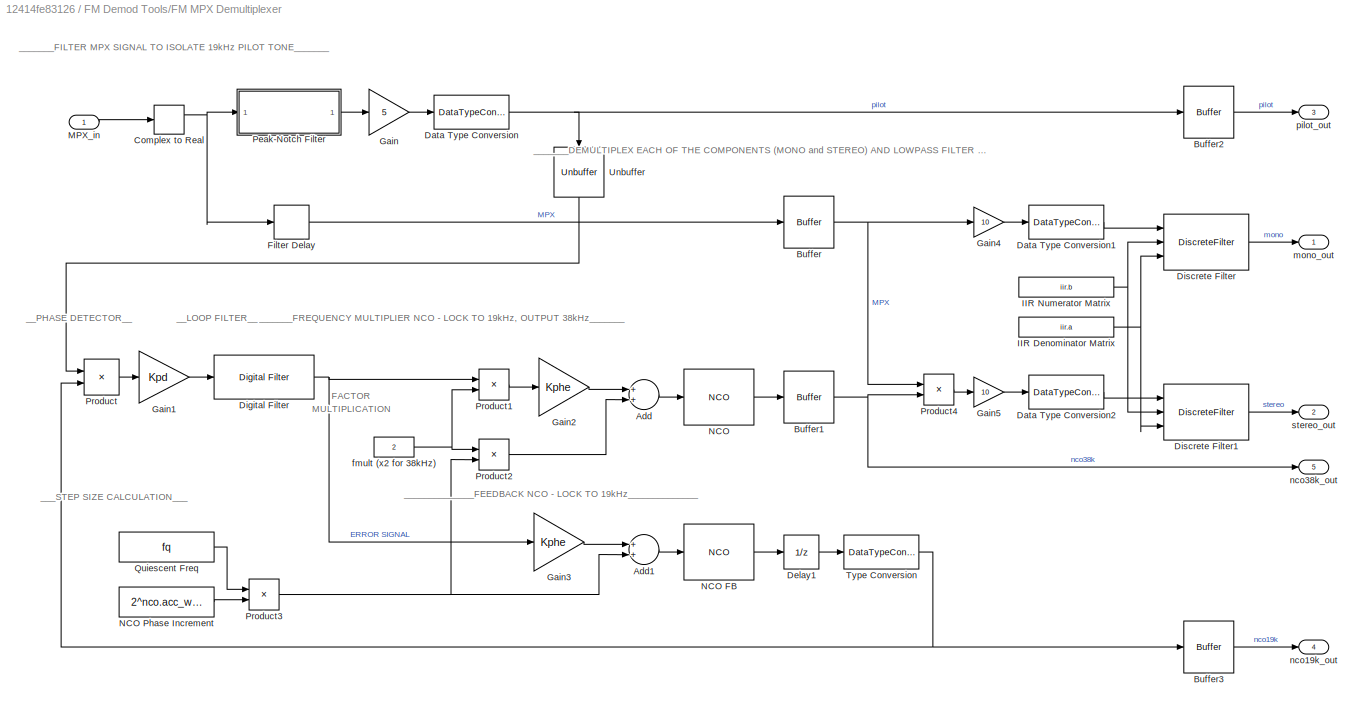
BLOCK [SubSystem] FM Demod Tools/FM MPX Demultiplexer
  InitFcn = % get fs\nfs = str2num(get_param(gcb,'fs'));\n\n% get fq\nfq = str2num(get_param(gcb,'fq'));
  Ports = [1, 5]
  RequestExecContextInheritance = off
BLOCK [Sum] FM Demod Tools/FM MPX Demultiplexer/Add
  Ports = [2, 1]
  SaturateOnIntegerOverflow = off
BLOCK [Sum] FM Demod Tools/FM MPX Demultiplexer/Add1
  Ports = [2, 1]
  SaturateOnIntegerOverflow = off
BLOCK [Buffer] FM Demod Tools/FM MPX Demultiplexer/Buffer
  N = frm_size
BLOCK [Buffer] FM Demod Tools/FM MPX Demultiplexer/Buffer1
  N = frm_size
BLOCK [Buffer] FM Demod Tools/FM MPX Demultiplexer/Buffer2
  N = frm_size
BLOCK [Buffer] FM Demod Tools/FM MPX Demultiplexer/Buffer3
  N = frm_size
BLOCK [ComplexToRealImag] FM Demod Tools/FM MPX Demultiplexer/Complex to Real
  Ports = [1, 2]
BLOCK [DataTypeConversion] FM Demod Tools/FM MPX Demultiplexer/Data Type Conversion
  RndMeth = Floor
  SaturateOnIntegerOverflow = off
BLOCK [DataTypeConversion] FM Demod Tools/FM MPX Demultiplexer/Data Type Conversion1
  RndMeth = Floor
  SaturateOnIntegerOverflow = off
BLOCK [DataTypeConversion] FM Demod Tools/FM MPX Demultiplexer/Data Type Conversion2
  RndMeth = Floor
  SaturateOnIntegerOverflow = off
BLOCK [UnitDelay] FM Demod Tools/FM MPX Demultiplexer/Delay1
  SampleTime = 1/fs
BLOCK [Reference] FM Demod Tools/FM MPX Demultiplexer/Digital Filter  REF=dspobslib/Digital Filter
  Ports = [1, 1]
  SourceBlock = dspobslib/Digital Filter
  SourceProductBaseCode = DS
  SourceProductName = DSP System Toolbox
  SourceType = Digital Filter
  UserDataPersistent = on
BLOCK [DiscreteFilter] FM Demod Tools/FM MPX Demultiplexer/Discrete Filter
  Denominator = [1 0.1]
  DenominatorSource = Input port
  FilterStructure = Direct form II transposed
  InputPortMap = u0,p1,p3
  InputProcessing = Columns as channels (frame based)
  Numerator = [0.5 0.5]
  NumeratorSource = Input port
  Ports = [3, 1]
  a0EqualsOne = on
BLOCK [DiscreteFilter] FM Demod Tools/FM MPX Demultiplexer/Discrete Filter1
  Denominator = [1 0.1]
  DenominatorSource = Input port
  FilterStructure = Direct form II transposed
  InputPortMap = u0,p1,p3
  InputProcessing = Columns as channels (frame based)
  Numerator = [0.5 0.5]
  NumeratorSource = Input port
  Ports = [3, 1]
  a0EqualsOne = on
BLOCK [Delay] FM Demod Tools/FM MPX Demultiplexer/Filter Delay
  DelayLength = 6
  InputPortMap = u0
  InputProcessing = Columns as channels (frame based)
  Ports = [1, 1]
BLOCK [Gain] FM Demod Tools/FM MPX Demultiplexer/Gain
  Gain = 5
  OutDataTypeStr = Inherit: Inherit via internal rule
  ParamDataTypeStr = Inherit: Inherit via internal rule
  SaturateOnIntegerOverflow = off
BLOCK [Gain] FM Demod Tools/FM MPX Demultiplexer/Gain1
  Gain = Kpd
  OutDataTypeStr = double
  ParamDataTypeStr = Inherit: Inherit via internal rule
  SaturateOnIntegerOverflow = off
BLOCK [Gain] FM Demod Tools/FM MPX Demultiplexer/Gain2
  Gain = Kphe
  OutDataTypeStr = uint32
  ParamDataTypeStr = Inherit: Inherit via internal rule
  SaturateOnIntegerOverflow = off
BLOCK [Gain] FM Demod Tools/FM MPX Demultiplexer/Gain3
  Gain = Kphe
  OutDataTypeStr = uint32
  ParamDataTypeStr = Inherit: Inherit via internal rule
  SaturateOnIntegerOverflow = off
BLOCK [Gain] FM Demod Tools/FM MPX Demultiplexer/Gain4
  Gain = 10
  OutDataTypeStr = Inherit: Inherit via internal rule
  ParamDataTypeStr = Inherit: Inherit via internal rule
  SaturateOnIntegerOverflow = off
BLOCK [Gain] FM Demod Tools/FM MPX Demultiplexer/Gain5
  Gain = 10
  OutDataTypeStr = Inherit: Inherit via internal rule
  ParamDataTypeStr = Inherit: Inherit via internal rule
  SaturateOnIntegerOverflow = off
BLOCK [Constant] FM Demod Tools/FM MPX Demultiplexer/IIR Denominator Matrix
  Value = iir.a
BLOCK [Constant] FM Demod Tools/FM MPX Demultiplexer/IIR Numerator Matrix 
  Value = iir.b
BLOCK [Inport] FM Demod Tools/FM MPX Demultiplexer/MPX_in
  IconDisplay = Port number
BLOCK [Reference] FM Demod Tools/FM MPX Demultiplexer/NCO  REF=dspsigops/NCO
  Ports = [1, 1]
  SourceBlock = dspsigops/NCO
  SourceProductBaseCode = DS
  SourceProductName = DSP System Toolbox
  SourceType = NCO
BLOCK [Reference] FM Demod Tools/FM MPX Demultiplexer/NCO FB  REF=dspsigops/NCO
  Ports = [1, 1]
  SourceBlock = dspsigops/NCO
  SourceProductBaseCode = DS
  SourceProductName = DSP System Toolbox
  SourceType = NCO
BLOCK [Constant] FM Demod Tools/FM MPX Demultiplexer/NCO Phase Increment
  OutDataTypeStr = uint32
  Value = 2^nco.acc_wl/fs
BLOCK [SubSystem] FM Demod Tools/FM MPX Demultiplexer/Peak-Notch Filter
  DialogController = fdesignblkfcn
  Ports = [1, 1]
  RequestExecContextInheritance = off
  UserDataPersistent = on
BLOCK [Reference] FM Demod Tools/FM MPX Demultiplexer/Peak-Notch Filter/Generated Filter Block  REF=dsparch4/Biquad Filter
  Ports = [1, 1]
  SourceBlock = dsparch4/Biquad Filter
  SourceProductBaseCode = DS
  SourceProductName = DSP System Toolbox
  SourceType = Biquad Filter
  Tag = BlockMethodSubSystem
  UserDataPersistent = on
BLOCK [Inport] FM Demod Tools/FM MPX Demultiplexer/Peak-Notch Filter/In
  IconDisplay = Port number
BLOCK [Outport] FM Demod Tools/FM MPX Demultiplexer/Peak-Notch Filter/Out
  IconDisplay = Port number
BLOCK [Product] FM Demod Tools/FM MPX Demultiplexer/Product
  InputSameDT = off
  OutDataTypeStr = Inherit: Inherit via internal rule
  Ports = [2, 1]
  RndMeth = Floor
  SaturateOnIntegerOverflow = off
BLOCK [Product] FM Demod Tools/FM MPX Demultiplexer/Product1
  InputSameDT = off
  OutDataTypeStr = uint32
  Ports = [2, 1]
  RndMeth = Floor
  SaturateOnIntegerOverflow = off
BLOCK [Product] FM Demod Tools/FM MPX Demultiplexer/Product2
  InputSameDT = off
  OutDataTypeStr = uint32
  Ports = [2, 1]
  RndMeth = Floor
  SaturateOnIntegerOverflow = off
BLOCK [Product] FM Demod Tools/FM MPX Demultiplexer/Product3
  InputSameDT = off
  OutDataTypeStr = uint32
  Ports = [2, 1]
  RndMeth = Floor
  SaturateOnIntegerOverflow = off
BLOCK [Product] FM Demod Tools/FM MPX Demultiplexer/Product4
  InputSameDT = off
  OutDataTypeStr = Inherit: Inherit via internal rule
  Ports = [2, 1]
  RndMeth = Floor
  SaturateOnIntegerOverflow = off
BLOCK [Constant] FM Demod Tools/FM MPX Demultiplexer/Quiescent Freq
  OutDataTypeStr = uint32
  Value = fq
BLOCK [DataTypeConversion] FM Demod Tools/FM MPX Demultiplexer/Type Conversion
  RndMeth = Floor
  SaturateOnIntegerOverflow = off
BLOCK [Unbuffer] FM Demod Tools/FM MPX Demultiplexer/Unbuffer  
  Ports = [1, 1]
BLOCK [Constant] FM Demod Tools/FM MPX Demultiplexer/fmult (x2 for 38kHz)
  Value = 2
BLOCK [Outport] FM Demod Tools/FM MPX Demultiplexer/mono_out
  IconDisplay = Port number
BLOCK [Outport] FM Demod Tools/FM MPX Demultiplexer/nco19k_out
  IconDisplay = Port number
  Port = 4
BLOCK [Outport] FM Demod Tools/FM MPX Demultiplexer/nco38k_out
  IconDisplay = Port number
  Port = 5
BLOCK [Outport] FM Demod Tools/FM MPX Demultiplexer/pilot_out
  IconDisplay = Port number
  Port = 3
BLOCK [Outport] FM Demod Tools/FM MPX Demultiplexer/stereo_out
  IconDisplay = Port number
  Port = 2
BLOCK [SubSystem] FM Demod Tools/FM Tuner Freq and Gain Control
  Ports = [0, 2]
  RequestExecContextInheritance = off
BLOCK [Constant] FM Demod Tools/FM Tuner Freq and Gain Control/Constant1
BLOCK [Gain] FM Demod Tools/FM Tuner Freq and Gain Control/Freq
  Gain = tuner_freq
  OutDataTypeStr = Inherit: Inherit via internal rule
  ParamDataTypeStr = Inherit: Inherit via internal rule
  SaturateOnIntegerOverflow = off
BLOCK [Gain] FM Demod Tools/FM Tuner Freq and Gain Control/Gain
  Gain = tuner_gain
  OutDataTypeStr = Inherit: Inherit via internal rule
  ParamDataTypeStr = Inherit: Inherit via internal rule
  SaturateOnIntegerOverflow = off
BLOCK [Constant] FM Demod Tools/FM Tuner Freq and Gain Control/MHz
  Value = 1e6
BLOCK [Outport] FM Demod Tools/FM Tuner Freq and Gain Control/freq_out
  IconDisplay = Port number
BLOCK [Outport] FM Demod Tools/FM Tuner Freq and Gain Control/gain_out
  IconDisplay = Port number
  Port = 2
BLOCK [SubSystem] Sync Tools for Analogue Comms
  Ports = []
  RequestExecContextInheritance = off
BLOCK [SubSystem] Sync Tools for Analogue Comms/Costas Loop Demodulator
  InitFcn = % get fs\nfs = str2num(get_param(gcb,'fs'));
  ModelCloseFcn = clear('costas')
  Ports = [1, 2]
  RequestExecContextInheritance = off
BLOCK [Sum] Sync Tools for Analogue Comms/Costas Loop Demodulator/Add
  InputSameDT = off
  Inputs = +-
  OutDataTypeStr = Inherit: Inherit via internal rule
  Ports = [2, 1]
  SaturateOnIntegerOverflow = off
BLOCK [Sum] Sync Tools for Analogue Comms/Costas Loop Demodulator/Add1
  InputSameDT = off
  OutDataTypeStr = Inherit: Inherit via internal rule
  Ports = [2, 1]
  SampleTime = 1/fs
  SaturateOnIntegerOverflow = off
BLOCK [Buffer] Sync Tools for Analogue Comms/Costas Loop Demodulator/Buffer
  N = frm_size
BLOCK [Buffer] Sync Tools for Analogue Comms/Costas Loop Demodulator/Buffer1
  N = frm_size
BLOCK [ComplexToRealImag] Sync Tools for Analogue Comms/Costas Loop Demodulator/Complex to Real-Imag
  Ports = [1, 2]
BLOCK [Product] Sync Tools for Analogue Comms/Costas Loop Demodulator/I Phase Detector1
  InputSameDT = off
  OutDataTypeStr = single
  Ports = [2, 1]
  RndMeth = Floor
  SaturateOnIntegerOverflow = off
BLOCK [SubSystem] Sync Tools for Analogue Comms/Costas Loop Demodulator/Loop Filter
  Ports = [1, 1]
  RequestExecContextInheritance = off
BLOCK [Sum] Sync Tools for Analogue Comms/Costas Loop Demodulator/Loop Filter/Add
  InputSameDT = off
  OutDataTypeStr = Inherit: Inherit via internal rule
  Ports = [2, 1]
  SaturateOnIntegerOverflow = off
BLOCK [Sum] Sync Tools for Analogue Comms/Costas Loop Demodulator/Loop Filter/Add1
  AccumDataTypeStr = single
  InputSameDT = off
  OutDataTypeStr = single
  Ports = [2, 1]
  SaturateOnIntegerOverflow = off
BLOCK [Delay] Sync Tools for Analogue Comms/Costas Loop Demodulator/Loop Filter/Delay
  DelayLength = 1
  InitialCondition = 0.00
  InputPortMap = u0
  Ports = [1, 1]
BLOCK [Gain] Sync Tools for Analogue Comms/Costas Loop Demodulator/Loop Filter/Gain1
  Gain = K2
  OutDataTypeStr = single
  ParamDataTypeStr = Inherit: Inherit via internal rule
  SaturateOnIntegerOverflow = off
BLOCK [Gain] Sync Tools for Analogue Comms/Costas Loop Demodulator/Loop Filter/Gain2
  Gain = K1
  OutDataTypeStr = Inherit: Inherit via internal rule
  ParamDataTypeStr = single
  SaturateOnIntegerOverflow = off
BLOCK [Outport] Sync Tools for Analogue Comms/Costas Loop Demodulator/Loop Filter/filt_out
  IconDisplay = Port number
BLOCK [Inport] Sync Tools for Analogue Comms/Costas Loop Demodulator/Loop Filter/sig_in
  IconDisplay = Port number
BLOCK [SubSystem] Sync Tools for Analogue Comms/Costas Loop Demodulator/Lowpass Filter
  DialogController = fdesignblkfcn
  InitFcn = fdesignblkfcn(gcbh, {'InitFcn'});
  Ports = [1, 1]
  RequestExecContextInheritance = off
  UserDataPersistent = on
BLOCK [DiscreteFir] Sync Tools for Analogue Comms/Costas Loop Demodulator/Lowpass Filter/Generated Filter Block
  Coefficients = [0.0011881646839486063 0.0018650557342877545 0.0024432362147616925 0.0021354822806999088 0.00042299683017990954 -0.002811975217901171 -0.0070281841500527019 -0.010990641854786024 -0.013057295684674336 -0.011759378475939258 -0.0065122691275265243 0.0018310718678320899 0.010886986001758246 0.017273021293018758 0.017716569217906979 0.010432097914051745 -0.0037412800759900403 -0.020924513549760219 -0....<+747ch>
  InputPortMap = u0
  InputProcessing = Columns as channels (frame based)
  OutputPortMap = o0
  Ports = [1, 1]
  Tag = BlockMethodSubSystem
BLOCK [Inport] Sync Tools for Analogue Comms/Costas Loop Demodulator/Lowpass Filter/In
  IconDisplay = Port number
BLOCK [Outport] Sync Tools for Analogue Comms/Costas Loop Demodulator/Lowpass Filter/Out
  IconDisplay = Port number
BLOCK [SubSystem] Sync Tools for Analogue Comms/Costas Loop Demodulator/Lowpass Filter1
  DialogController = fdesignblkfcn
  InitFcn = fdesignblkfcn(gcbh, {'InitFcn'});
  Ports = [1, 1]
  RequestExecContextInheritance = off
  UserDataPersistent = on
BLOCK [DiscreteFir] Sync Tools for Analogue Comms/Costas Loop Demodulator/Lowpass Filter1/Generated Filter Block
  Coefficients = [0.0011881646839486063 0.0018650557342877545 0.0024432362147616925 0.0021354822806999088 0.00042299683017990954 -0.002811975217901171 -0.0070281841500527019 -0.010990641854786024 -0.013057295684674336 -0.011759378475939258 -0.0065122691275265243 0.0018310718678320899 0.010886986001758246 0.017273021293018758 0.017716569217906979 0.010432097914051745 -0.0037412800759900403 -0.020924513549760219 -0....<+747ch>
  InputPortMap = u0
  InputProcessing = Columns as channels (frame based)
  OutputPortMap = o0
  Ports = [1, 1]
  Tag = BlockMethodSubSystem
BLOCK [Inport] Sync Tools for Analogue Comms/Costas Loop Demodulator/Lowpass Filter1/In
  IconDisplay = Port number
BLOCK [Outport] Sync Tools for Analogue Comms/Costas Loop Demodulator/Lowpass Filter1/Out
  IconDisplay = Port number
BLOCK [Product] Sync Tools for Analogue Comms/Costas Loop Demodulator/Product
  InputSameDT = off
  OutDataTypeStr = Inherit: Inherit via internal rule
  Ports = [2, 1]
  RndMeth = Floor
  SaturateOnIntegerOverflow = off
BLOCK [Product] Sync Tools for Analogue Comms/Costas Loop Demodulator/Product1
  InputSameDT = off
  OutDataTypeStr = Inherit: Inherit via internal rule
  Ports = [2, 1]
  RndMeth = Floor
  SaturateOnIntegerOverflow = off
BLOCK [Product] Sync Tools for Analogue Comms/Costas Loop Demodulator/Q Phase Detector
  InputSameDT = off
  OutDataTypeStr = single
  Ports = [2, 1]
  RndMeth = Floor
  SaturateOnIntegerOverflow = off
BLOCK [SubSystem] Sync Tools for Analogue Comms/Costas Loop Demodulator/Reduce Output Rate
  Ports = [1, 1]
  RequestExecContextInheritance = off
BLOCK [Reference] Sync Tools for Analogue Comms/Costas Loop Demodulator/Reduce Output Rate/Clock  REF=simulink_extras/Flip Flops/Clock
  Ports = [0, 1]
  SourceBlock = simulink_extras/Flip Flops/Clock
  SourceProductBaseCode = SL
  SourceProductName = Simulink
  SourceType = Digital clock
BLOCK [Delay] Sync Tools for Analogue Comms/Costas Loop Demodulator/Reduce Output Rate/Delay
  DelayLength = 1
  InitialCondition = 0
  InputPortMap = u0
  Ports = [1, 1]
BLOCK [Reference] Sync Tools for Analogue Comms/Costas Loop Demodulator/Reduce Output Rate/Enabled Subsystem  REF=$bdroot/Sync Tools for
Analogue Comms/Phase Locked Loop
Demodulator/Reduce Output Rate/Enabled
Subsystem
  Ports = [1, 1, 1]
  SourceBlock = $bdroot/Sync Tools for\nAnalogue Comms/Phase Locked Loop\nDemodulator/Reduce Output Rate/Enabled\nSubsystem
  SourceType = SubSystem
BLOCK [Logic] Sync Tools for Analogue Comms/Costas Loop Demodulator/Reduce Output Rate/XOR
  AllPortsSameDT = off
  IconShape = distinctive
  Operator = XOR
  OutDataTypeStr = boolean
  Ports = [2, 1]
BLOCK [Inport] Sync Tools for Analogue Comms/Costas Loop Demodulator/Reduce Output Rate/in
  IconDisplay = Port number
BLOCK [Outport] Sync Tools for Analogue Comms/Costas Loop Demodulator/Reduce Output Rate/out
  IconDisplay = Port number
BLOCK [Reshape] Sync Tools for Analogue Comms/Costas Loop Demodulator/Reshape
  Ports = [1, 1]
BLOCK [Signum] Sync Tools for Analogue Comms/Costas Loop Demodulator/Sign
BLOCK [Signum] Sync Tools for Analogue Comms/Costas Loop Demodulator/Sign1
BLOCK [Reference] Sync Tools for Analogue Comms/Costas Loop Demodulator/Submatrix  REF=dspmtrx3/Submatrix
  Ports = [1, 1]
  SourceBlock = dspmtrx3/Submatrix
  SourceProductBaseCode = DS
  SourceProductName = DSP System Toolbox
  SourceType = Submatrix
BLOCK [Terminator] Sync Tools for Analogue Comms/Costas Loop Demodulator/Terminator
BLOCK [Unbuffer] Sync Tools for Analogue Comms/Costas Loop Demodulator/Unbuffer
  Ports = [1, 1]
BLOCK [SubSystem] Sync Tools for Analogue Comms/Costas Loop Demodulator/VCO sin cos
  Ports = [1, 3]
  RequestExecContextInheritance = off
BLOCK [Sum] Sync Tools for Analogue Comms/Costas Loop Demodulator/VCO sin cos/Add
  InputSameDT = off
  OutDataTypeStr = Inherit: Inherit via internal rule
  Ports = [2, 1]
  SaturateOnIntegerOverflow = off
BLOCK [Constant] Sync Tools for Analogue Comms/Costas Loop Demodulator/VCO sin cos/Constant
  SampleTime = 1/fs
  Value = fq
BLOCK [Outport] Sync Tools for Analogue Comms/Costas Loop Demodulator/VCO sin cos/Cos
  IconDisplay = Port number
BLOCK [DataTypeConversion] Sync Tools for Analogue Comms/Costas Loop Demodulator/VCO sin cos/Data Type Conversion
  OutDataTypeStr = single
  RndMeth = Floor
  SaturateOnIntegerOverflow = off
BLOCK [DataTypeConversion] Sync Tools for Analogue Comms/Costas Loop Demodulator/VCO sin cos/Data Type Conversion1
  OutDataTypeStr = single
  RndMeth = Floor
  SaturateOnIntegerOverflow = off
BLOCK [DataTypeConversion] Sync Tools for Analogue Comms/Costas Loop Demodulator/VCO sin cos/Data Type Conversion2
  OutDataTypeStr = single
  RndMeth = Floor
  SaturateOnIntegerOverflow = off
BLOCK [Reference] Sync Tools for Analogue Comms/Costas Loop Demodulator/VCO sin cos/Discrete-Time VCO  REF=commsynccomp2/Discrete-Time
VCO
  Ports = [1, 1]
  SourceBlock = commsynccomp2/Discrete-Time\nVCO
  SourceProductBaseCode = CM
  SourceProductName = Communications System Toolbox
  SourceType = Discrete-Time VCO
BLOCK [Reference] Sync Tools for Analogue Comms/Costas Loop Demodulator/VCO sin cos/Discrete-Time VCO1  REF=commsynccomp2/Discrete-Time
VCO
  Ports = [1, 1]
  SourceBlock = commsynccomp2/Discrete-Time\nVCO
  SourceProductBaseCode = CM
  SourceProductName = Communications System Toolbox
  SourceType = Discrete-Time VCO
BLOCK [Inport] Sync Tools for Analogue Comms/Costas Loop Demodulator/VCO sin cos/Error
  IconDisplay = Port number
BLOCK [Outport] Sync Tools for Analogue Comms/Costas Loop Demodulator/VCO sin cos/Freq
  IconDisplay = Port number
  Port = 3
BLOCK [Gain] Sync Tools for Analogue Comms/Costas Loop Demodulator/VCO sin cos/Gain
  Gain = sensitivity
  OutDataTypeStr = Inherit: Inherit via internal rule
  ParamDataTypeStr = Inherit: Inherit via internal rule
  SaturateOnIntegerOverflow = off
BLOCK [Outport] Sync Tools for Analogue Comms/Costas Loop Demodulator/VCO sin cos/Sin
  IconDisplay = Port number
  Port = 2
BLOCK [Outport] Sync Tools for Analogue Comms/Costas Loop Demodulator/demod_out
  IconDisplay = Port number
BLOCK [Outport] Sync Tools for Analogue Comms/Costas Loop Demodulator/freq_out
  IconDisplay = Port number
  Port = 2
BLOCK [Inport] Sync Tools for Analogue Comms/Costas Loop Demodulator/sig_in
  IconDisplay = Port number
BLOCK [SubSystem] Sync Tools for Analogue Comms/Phase Locked Loop Demodulator
  ModelCloseFcn = clear('pll')
  Ports = [1, 3]
  RequestExecContextInheritance = off
  StopFcn = clear('pll');
BLOCK [Buffer] Sync Tools for Analogue Comms/Phase Locked Loop Demodulator/Buffer
  N = frm_size
BLOCK [Buffer] Sync Tools for Analogue Comms/Phase Locked Loop Demodulator/Buffer1
  N = frm_size
BLOCK [Buffer] Sync Tools for Analogue Comms/Phase Locked Loop Demodulator/Buffer2
  N = frm_size
BLOCK [Buffer] Sync Tools for Analogue Comms/Phase Locked Loop Demodulator/Buffer3
  N = frm_size
BLOCK [ComplexToRealImag] Sync Tools for Analogue Comms/Phase Locked Loop Demodulator/Complex to Real-Imag
  Ports = [1, 2]
BLOCK [SubSystem] Sync Tools for Analogue Comms/Phase Locked Loop Demodulator/Loop Filter
  Ports = [1, 1]
  RequestExecContextInheritance = off
BLOCK [Sum] Sync Tools for Analogue Comms/Phase Locked Loop Demodulator/Loop Filter/Add
  InputSameDT = off
  OutDataTypeStr = Inherit: Inherit via internal rule
  Ports = [2, 1]
  SaturateOnIntegerOverflow = off
BLOCK [Sum] Sync Tools for Analogue Comms/Phase Locked Loop Demodulator/Loop Filter/Add1
  AccumDataTypeStr = single
  InputSameDT = off
  OutDataTypeStr = single
  Ports = [2, 1]
  SaturateOnIntegerOverflow = off
BLOCK [Delay] Sync Tools for Analogue Comms/Phase Locked Loop Demodulator/Loop Filter/Delay
  DelayLength = 1
  InitialCondition = 0.00
  InputPortMap = u0
  Ports = [1, 1]
BLOCK [Gain] Sync Tools for Analogue Comms/Phase Locked Loop Demodulator/Loop Filter/Gain1
  Gain = K2
  OutDataTypeStr = single
  ParamDataTypeStr = Inherit: Inherit via internal rule
  SaturateOnIntegerOverflow = off
BLOCK [Gain] Sync Tools for Analogue Comms/Phase Locked Loop Demodulator/Loop Filter/Gain2
  Gain = K1
  OutDataTypeStr = Inherit: Inherit via internal rule
  ParamDataTypeStr = single
  SaturateOnIntegerOverflow = off
BLOCK [Outport] Sync Tools for Analogue Comms/Phase Locked Loop Demodulator/Loop Filter/filt_out
  IconDisplay = Port number
BLOCK [Inport] Sync Tools for Analogue Comms/Phase Locked Loop Demodulator/Loop Filter/sig_in
  IconDisplay = Port number
BLOCK [Product] Sync Tools for Analogue Comms/Phase Locked Loop Demodulator/Phase Detector
  InputSameDT = off
  OutDataTypeStr = Inherit: Inherit via internal rule
  Ports = [2, 1]
  RndMeth = Floor
  SaturateOnIntegerOverflow = off
BLOCK [Product] Sync Tools for Analogue Comms/Phase Locked Loop Demodulator/Product
  InputSameDT = off
  OutDataTypeStr = Inherit: Inherit via internal rule
  Ports = [2, 1]
  RndMeth = Floor
  SaturateOnIntegerOverflow = off
BLOCK [SubSystem] Sync Tools for Analogue Comms/Phase Locked Loop Demodulator/Reduce Output Rate
  Ports = [1, 1]
  RequestExecContextInheritance = off
BLOCK [Reference] Sync Tools for Analogue Comms/Phase Locked Loop Demodulator/Reduce Output Rate/Clock  REF=simulink_extras/Flip Flops/Clock
  Ports = [0, 1]
  SourceBlock = simulink_extras/Flip Flops/Clock
  SourceProductBaseCode = SL
  SourceProductName = Simulink
  SourceType = Digital clock
BLOCK [Delay] Sync Tools for Analogue Comms/Phase Locked Loop Demodulator/Reduce Output Rate/Delay
  DelayLength = 1
  InitialCondition = 0
  InputPortMap = u0
  Ports = [1, 1]
BLOCK [SubSystem] Sync Tools for Analogue Comms/Phase Locked Loop Demodulator/Reduce Output Rate/Enabled Subsystem
  Ports = [1, 1, 1]
  RequestExecContextInheritance = off
  TreatAsAtomicUnit = on
BLOCK [EnablePort] Sync Tools for Analogue Comms/Phase Locked Loop Demodulator/Reduce Output Rate/Enabled Subsystem/Enable
  Ports = []
BLOCK [Inport] Sync Tools for Analogue Comms/Phase Locked Loop Demodulator/Reduce Output Rate/Enabled Subsystem/In1
  IconDisplay = Port number
BLOCK [Outport] Sync Tools for Analogue Comms/Phase Locked Loop Demodulator/Reduce Output Rate/Enabled Subsystem/Out1
  IconDisplay = Port number
BLOCK [Logic] Sync Tools for Analogue Comms/Phase Locked Loop Demodulator/Reduce Output Rate/XOR
  AllPortsSameDT = off
  IconShape = distinctive
  Operator = XOR
  OutDataTypeStr = boolean
  Ports = [2, 1]
BLOCK [Inport] Sync Tools for Analogue Comms/Phase Locked Loop Demodulator/Reduce Output Rate/in
  IconDisplay = Port number
BLOCK [Outport] Sync Tools for Analogue Comms/Phase Locked Loop Demodulator/Reduce Output Rate/out
  IconDisplay = Port number
BLOCK [Reshape] Sync Tools for Analogue Comms/Phase Locked Loop Demodulator/Reshape
  Ports = [1, 1]
BLOCK [Reference] Sync Tools for Analogue Comms/Phase Locked Loop Demodulator/Submatrix  REF=dspmtrx3/Submatrix
  Ports = [1, 1]
  SourceBlock = dspmtrx3/Submatrix
  SourceProductBaseCode = DS
  SourceProductName = DSP System Toolbox
  SourceType = Submatrix
BLOCK [Terminator] Sync Tools for Analogue Comms/Phase Locked Loop Demodulator/Terminator
BLOCK [Unbuffer] Sync Tools for Analogue Comms/Phase Locked Loop Demodulator/Unbuffer
  Ports = [1, 1]
BLOCK [SubSystem] Sync Tools for Analogue Comms/Phase Locked Loop Demodulator/VCO sin cos
  Ports = [1, 3]
  RequestExecContextInheritance = off
BLOCK [Sum] Sync Tools for Analogue Comms/Phase Locked Loop Demodulator/VCO sin cos/Add
  InputSameDT = off
  OutDataTypeStr = Inherit: Inherit via internal rule
  Ports = [2, 1]
  SaturateOnIntegerOverflow = off
BLOCK [Constant] Sync Tools for Analogue Comms/Phase Locked Loop Demodulator/VCO sin cos/Constant
  OutDataTypeStr = single
  SampleTime = 1/fs
  Value = fq
BLOCK [Outport] Sync Tools for Analogue Comms/Phase Locked Loop Demodulator/VCO sin cos/Cos
  IconDisplay = Port number
BLOCK [DataTypeConversion] Sync Tools for Analogue Comms/Phase Locked Loop Demodulator/VCO sin cos/Data Type Conversion
  OutDataTypeStr = single
  RndMeth = Floor
  SaturateOnIntegerOverflow = off
BLOCK [DataTypeConversion] Sync Tools for Analogue Comms/Phase Locked Loop Demodulator/VCO sin cos/Data Type Conversion1
  OutDataTypeStr = single
  RndMeth = Floor
  SaturateOnIntegerOverflow = off
BLOCK [DataTypeConversion] Sync Tools for Analogue Comms/Phase Locked Loop Demodulator/VCO sin cos/Data Type Conversion2
  OutDataTypeStr = single
  RndMeth = Floor
  SaturateOnIntegerOverflow = off
BLOCK [Reference] Sync Tools for Analogue Comms/Phase Locked Loop Demodulator/VCO sin cos/Discrete-Time VCO  REF=commsynccomp2/Discrete-Time
VCO
  Ports = [1, 1]
  SourceBlock = commsynccomp2/Discrete-Time\nVCO
  SourceProductBaseCode = CM
  SourceProductName = Communications System Toolbox
  SourceType = Discrete-Time VCO
BLOCK [Reference] Sync Tools for Analogue Comms/Phase Locked Loop Demodulator/VCO sin cos/Discrete-Time VCO1  REF=commsynccomp2/Discrete-Time
VCO
  Ports = [1, 1]
  SourceBlock = commsynccomp2/Discrete-Time\nVCO
  SourceProductBaseCode = CM
  SourceProductName = Communications System Toolbox
  SourceType = Discrete-Time VCO
BLOCK [Inport] Sync Tools for Analogue Comms/Phase Locked Loop Demodulator/VCO sin cos/Error
  IconDisplay = Port number
BLOCK [Outport] Sync Tools for Analogue Comms/Phase Locked Loop Demodulator/VCO sin cos/Freq
  IconDisplay = Port number
  Port = 3
BLOCK [Gain] Sync Tools for Analogue Comms/Phase Locked Loop Demodulator/VCO sin cos/Gain
  Gain = sensitivity
  OutDataTypeStr = Inherit: Inherit via internal rule
  ParamDataTypeStr = Inherit: Inherit via internal rule
  SaturateOnIntegerOverflow = off
BLOCK [Outport] Sync Tools for Analogue Comms/Phase Locked Loop Demodulator/VCO sin cos/Sin
  IconDisplay = Port number
  Port = 2
BLOCK [Outport] Sync Tools for Analogue Comms/Phase Locked Loop Demodulator/coherentdemod_out
  IconDisplay = Port number
BLOCK [Outport] Sync Tools for Analogue Comms/Phase Locked Loop Demodulator/freq_out
  IconDisplay = Port number
  Port = 3
BLOCK [Outport] Sync Tools for Analogue Comms/Phase Locked Loop Demodulator/loopfilter_out
  IconDisplay = Port number
  Port = 2
BLOCK [Inport] Sync Tools for Analogue Comms/Phase Locked Loop Demodulator/sig_in
  IconDisplay = Port number
BLOCK [SubSystem] Sync Tools for Digital Comms
  Ports = []
  RequestExecContextInheritance = off
BLOCK [SubSystem] Sync Tools for Digital Comms/Coarse Freq Correction
  Ports = [1, 3]
  RequestExecContextInheritance = off
BLOCK [Buffer] Sync Tools for Digital Comms/Coarse Freq Correction/Buffer
  N = frm_size
BLOCK [Buffer] Sync Tools for Digital Comms/Coarse Freq Correction/Buffer1
  N = frm_size
BLOCK [DataTypeConversion] Sync Tools for Digital Comms/Coarse Freq Correction/Data Type Conversion
  OutDataTypeStr = single
  RndMeth = Floor
  SaturateOnIntegerOverflow = off
BLOCK [Probe] Sync Tools for Digital Comms/Coarse Freq Correction/FFT_width
  Ports = [1, 1]
  ProbeComplexSignal = off
  ProbeSampleTime = off
  ProbeSampleTimeDataType = single
  ProbeWidthDataType = single
BLOCK [SubSystem] Sync Tools for Digital Comms/Coarse Freq Correction/Find Frequency Offset
  ErrorFcn = Stateflow.Translate.translate
  PermitHierarchicalResolution = ExplicitOnly
  Ports = [4, 1]
  RequestExecContextInheritance = off
  SFBlockType = MATLAB Function
  TreatAsAtomicUnit = on
BLOCK [Demux] Sync Tools for Digital Comms/Coarse Freq Correction/Find Frequency Offset/ Demux 
  Outputs = 1
  Ports = [1, 1]
BLOCK [S-Function] Sync Tools for Digital Comms/Coarse Freq Correction/Find Frequency Offset/ SFunction 
  EnableBusSupport = off
  FunctionName = sf_sfun
  PortCounts = [4 2]
  Ports = [4, 2]
  SFcnIsStateOwnerBlock = off
  SFunctionDeploymentMode = off
  Tag = Stateflow S-Function rtlsdr_book_library 3
BLOCK [Terminator] Sync Tools for Digital Comms/Coarse Freq Correction/Find Frequency Offset/ Terminator 
BLOCK [Inport] Sync Tools for Digital Comms/Coarse Freq Correction/Find Frequency Offset/Frame_period
  IconDisplay = Port number
  Port = 2
BLOCK [Inport] Sync Tools for Digital Comms/Coarse Freq Correction/Find Frequency Offset/Frame_width
  IconDisplay = Port number
BLOCK [Inport] Sync Tools for Digital Comms/Coarse Freq Correction/Find Frequency Offset/Peak_index
  IconDisplay = Port number
  Port = 3
BLOCK [Inport] Sync Tools for Digital Comms/Coarse Freq Correction/Find Frequency Offset/Signal_width
  IconDisplay = Port number
  Port = 4
BLOCK [Outport] Sync Tools for Digital Comms/Coarse Freq Correction/Find Frequency Offset/freq_offset
  IconDisplay = Port number
BLOCK [Constant] Sync Tools for Digital Comms/Coarse Freq Correction/M = 4
  OutDataTypeStr = single
  Value = 4
BLOCK [Reference] Sync Tools for Digital Comms/Coarse Freq Correction/Magnitude FFT  REF=dspspect3/Magnitude
FFT
  Ports = [1, 1]
  SourceBlock = dspspect3/Magnitude\nFFT
  SourceProductBaseCode = DS
  SourceProductName = DSP System Toolbox
  SourceType = Magnitude FFT
BLOCK [Reference] Sync Tools for Digital Comms/Coarse Freq Correction/Maximum  REF=dspstat3/Maximum
  Ports = [1, 1]
  SourceBlock = dspstat3/Maximum
  SourceProductBaseCode = DS
  SourceProductName = DSP System Toolbox
  SourceType = Maximum
  UserDataPersistent = on
BLOCK [Reference] Sync Tools for Digital Comms/Coarse Freq Correction/Phase// Frequency Offset  REF=commrflib2/Phase//
Frequency
Offset
  Ports = [2, 1]
  SourceBlock = commrflib2/Phase//\nFrequency\nOffset
  SourceProductBaseCode = CM
  SourceProductName = Communications System Toolbox
  SourceType = Phase/Frequency Offset
BLOCK [Math] Sync Tools for Digital Comms/Coarse Freq Correction/Power
  Operator = pow
  OutputSignalType = complex
  Ports = [2, 1]
BLOCK [Probe] Sync Tools for Digital Comms/Coarse Freq Correction/Signal_probe
  Ports = [1, 2]
  ProbeComplexSignal = off
  ProbeSampleTimeDataType = single
  ProbeWidthDataType = single
BLOCK [Outport] Sync Tools for Digital Comms/Coarse Freq Correction/out_corrected
  IconDisplay = Port number
  Port = 2
BLOCK [Outport] Sync Tools for Digital Comms/Coarse Freq Correction/out_freqoffset
  IconDisplay = Port number
  Port = 3
BLOCK [Outport] Sync Tools for Digital Comms/Coarse Freq Correction/out_inducedpeak
  IconDisplay = Port number
BLOCK [Inport] Sync Tools for Digital Comms/Coarse Freq Correction/sig_in
  IconDisplay = Port number
ANNOTATION Additional Tools/Import RTL-SDR Data: convert 2D [usrlen x 1] matrix to 1D array to match RTL-SDR Receiver block
ANNOTATION Additional Tools/Import RTL-SDR Data: resize 1D array to user specified length
ANNOTATION Additional Tools/Import RTL-SDR Data: outputs 1D arrays with length matching the recording length
ANNOTATION Additional Tools/Save RTL-SDR Data: write data in 1D array to timeseries
ANNOTATION Coding Tools/Differential QPSK Encoder: B_2
ANNOTATION Coding Tools/Differential QPSK Encoder: B_1
ANNOTATION FM Demod Tools/FM MPX Demultiplexer: MULTIPLICATION FACTOR
ANNOTATION FM Demod Tools/FM MPX Demultiplexer: _______DEMULTIPLEX EACH OF THE COMPONENTS (MONO and STEREO) AND LOWPASS FILTER (fc=15kHz)_______
ANNOTATION FM Demod Tools/FM MPX Demultiplexer: _______FILTER MPX SIGNAL TO ISOLATE 19kHz PILOT TONE_______
ANNOTATION FM Demod Tools/FM MPX Demultiplexer: __LOOP FILTER__
ANNOTATION FM Demod Tools/FM MPX Demultiplexer: __PHASE DETECTOR__
ANNOTATION FM Demod Tools/FM MPX Demultiplexer: ___STEP SIZE CALCULATION___
ANNOTATION FM Demod Tools/FM MPX Demultiplexer: _______FREQUENCY MULTIPLIER NCO - LOCK TO 19kHz, OUTPUT 38kHz_______
ANNOTATION FM Demod Tools/FM MPX Demultiplexer: ______________FEEDBACK NCO - LOCK TO 19kHz______________
ANNOTATION Sync Tools for Analogue Comms/Costas Loop Demodulator: _____DEMODULATED OUTPUT_____
ANNOTATION Sync Tools for Analogue Comms/Costas Loop Demodulator: _____LOCKED FREQ DISPLAY OUTPUT_____
ANNOTATION Sync Tools for Analogue Comms/Costas Loop Demodulator: ___________________________ COSTAS LOOP ___________________________
ANNOTATION Sync Tools for Analogue Comms/Costas Loop Demodulator/Loop Filter: _______INTEGRAL PATH_______
ANNOTATION Sync Tools for Analogue Comms/Costas Loop Demodulator/Loop Filter: _____PROPORTIONAL PATH_____
ANNOTATION Sync Tools for Analogue Comms/Phase Locked Loop Demodulator: _____DEMODULATED OUTPUT_____
ANNOTATION Sync Tools for Analogue Comms/Phase Locked Loop Demodulator: _____LOCKED FREQ DISPLAY OUTPUT_____
ANNOTATION Sync Tools for Analogue Comms/Phase Locked Loop Demodulator: ________________ PLL _________________
ANNOTATION Sync Tools for Analogue Comms/Phase Locked Loop Demodulator/Loop Filter: _______INTEGRAL PATH_______
ANNOTATION Sync Tools for Analogue Comms/Phase Locked Loop Demodulator/Loop Filter: _____PROPORTIONAL PATH_____
LINE Additional Tools/433MHz Tuner Freq and Gain Control/Constant1:1 -> Additional Tools/433MHz Tuner Freq and Gain Control/Gain:1
LINE Additional Tools/433MHz Tuner Freq and Gain Control/Freq:1 -> Additional Tools/433MHz Tuner Freq and Gain Control/freq_out:1
LINE Additional Tools/433MHz Tuner Freq and Gain Control/Gain:1 -> Additional Tools/433MHz Tuner Freq and Gain Control/gain_out:1
LINE Additional Tools/433MHz Tuner Freq and Gain Control/MHz:1 -> Additional Tools/433MHz Tuner Freq and Gain Control/Freq:1
LINE Additional Tools/Remove DC Component/Mean:1 -> Additional Tools/Remove DC Component/Subtract:2
LINE Additional Tools/Remove DC Component/Subtract:1 -> Additional Tools/Remove DC Component/sig_out:1
NET Additional Tools/Remove DC Component/sig_in:1 -> Additional Tools/Remove DC Component/Mean:1, Additional Tools/Remove DC Component/Subtract:1
LINE Coding Tools/Differential QPSK Decoder/AND 1:1 -> Coding Tools/Differential QPSK Decoder/Decode OR 1:1
LINE Coding Tools/Differential QPSK Decoder/AND 2:1 -> Coding Tools/Differential QPSK Decoder/Decode OR 1:2
LINE Coding Tools/Differential QPSK Decoder/AND 3:1 -> Coding Tools/Differential QPSK Decoder/Decode OR 1:3
LINE Coding Tools/Differential QPSK Decoder/AND 4:1 -> Coding Tools/Differential QPSK Decoder/Decode OR 1:4
LINE Coding Tools/Differential QPSK Decoder/AND 5:1 -> Coding Tools/Differential QPSK Decoder/Decode OR 2:1
LINE Coding Tools/Differential QPSK Decoder/AND 6:1 -> Coding Tools/Differential QPSK Decoder/Decode OR 2:2
LINE Coding Tools/Differential QPSK Decoder/AND 7:1 -> Coding Tools/Differential QPSK Decoder/Decode OR 2:3
LINE Coding Tools/Differential QPSK Decoder/AND 8:1 -> Coding Tools/Differential QPSK Decoder/Decode OR 2:4
LINE Coding Tools/Differential QPSK Decoder/Buffer:1 -> Coding Tools/Differential QPSK Decoder/Dec Sequence:1
NET Coding Tools/Differential QPSK Decoder/Decode Delay_1:1 -> Coding Tools/Differential QPSK Decoder/AND 1:3, Coding Tools/Differential QPSK Decoder/AND 6:3, Coding Tools/Differential QPSK Decoder/Not epsilon-1:1
NET Coding Tools/Differential QPSK Decoder/Decode Delay_2:1 -> Coding Tools/Differential QPSK Decoder/AND 3:3, Coding Tools/Differential QPSK Decoder/AND 5:3, Coding Tools/Differential QPSK Decoder/Not epsilon-2:1
LINE Coding Tools/Differential QPSK Decoder/Decode OR 1:1 -> Coding Tools/Differential QPSK Decoder/Vector Concatenate:1
LINE Coding Tools/Differential QPSK Decoder/Decode OR 2:1 -> Coding Tools/Differential QPSK Decoder/Vector Concatenate:2
NET Coding Tools/Differential QPSK Decoder/Enc Sequence:1 -> Coding Tools/Differential QPSK Decoder/Even Bits:1, Coding Tools/Differential QPSK Decoder/Odd Bits:1
LINE Coding Tools/Differential QPSK Decoder/Even Bits:1 -> Coding Tools/Differential QPSK Decoder/Unbuffer1:1
NET Coding Tools/Differential QPSK Decoder/Not epsilon+1:1 -> Coding Tools/Differential QPSK Decoder/AND 1:1, Coding Tools/Differential QPSK Decoder/AND 2:1, Coding Tools/Differential QPSK Decoder/AND 5:1, Coding Tools/Differential QPSK Decoder/AND 6:1
NET Coding Tools/Differential QPSK Decoder/Not epsilon-1:1 -> Coding Tools/Differential QPSK Decoder/AND 4:3, Coding Tools/Differential QPSK Decoder/AND 7:3
NET Coding Tools/Differential QPSK Decoder/Not epsilon-2:1 -> Coding Tools/Differential QPSK Decoder/AND 2:3, Coding Tools/Differential QPSK Decoder/AND 8:3
NET Coding Tools/Differential QPSK Decoder/Not epsilon:1 -> Coding Tools/Differential QPSK Decoder/AND 1:2, Coding Tools/Differential QPSK Decoder/AND 3:1, Coding Tools/Differential QPSK Decoder/AND 5:2, Coding Tools/Differential QPSK Decoder/AND 7:1
LINE Coding Tools/Differential QPSK Decoder/Odd Bits:1 -> Coding Tools/Differential QPSK Decoder/Unbuffer2:1
NET Coding Tools/Differential QPSK Decoder/Unbuffer1:1 -> Coding Tools/Differential QPSK Decoder/AND 3:2, Coding Tools/Differential QPSK Decoder/AND 4:1, Coding Tools/Differential QPSK Decoder/AND 7:2, Coding Tools/Differential QPSK Decoder/AND 8:1, Coding Tools/Differential QPSK Decoder/Decode Delay_1:1, Coding Tools/Differential QPSK Decoder/Not epsilon+1:1
NET Coding Tools/Differential QPSK Decoder/Unbuffer2:1 -> Coding Tools/Differential QPSK Decoder/AND 2:2, Coding Tools/Differential QPSK Decoder/AND 4:2, Coding Tools/Differential QPSK Decoder/AND 6:2, Coding Tools/Differential QPSK Decoder/AND 8:2, Coding Tools/Differential QPSK Decoder/Decode Delay_2:1, Coding Tools/Differential QPSK Decoder/Not epsilon:1
LINE Coding Tools/Differential QPSK Decoder/Vector Concatenate:1 -> Coding Tools/Differential QPSK Decoder/Buffer:1
LINE Coding Tools/Differential QPSK Encoder/AND 1:1 -> Coding Tools/Differential QPSK Encoder/Encode OR 1:1
LINE Coding Tools/Differential QPSK Encoder/AND 2:1 -> Coding Tools/Differential QPSK Encoder/Encode OR 1:2
LINE Coding Tools/Differential QPSK Encoder/AND 3:1 -> Coding Tools/Differential QPSK Encoder/Encode OR 1:3
LINE Coding Tools/Differential QPSK Encoder/AND 4:1 -> Coding Tools/Differential QPSK Encoder/Encode OR 1:4
LINE Coding Tools/Differential QPSK Encoder/AND 5:1 -> Coding Tools/Differential QPSK Encoder/Encode OR 2:1
LINE Coding Tools/Differential QPSK Encoder/AND 6:1 -> Coding Tools/Differential QPSK Encoder/Encode OR 2:2
LINE Coding Tools/Differential QPSK Encoder/AND 7:1 -> Coding Tools/Differential QPSK Encoder/Encode OR 2:3
LINE Coding Tools/Differential QPSK Encoder/AND 8:1 -> Coding Tools/Differential QPSK Encoder/Encode OR 2:4
LINE Coding Tools/Differential QPSK Encoder/Buffer:1 -> Coding Tools/Differential QPSK Encoder/Enc Sequence:1
NET Coding Tools/Differential QPSK Encoder/Encode Delay1:1 -> Coding Tools/Differential QPSK Encoder/AND 1:3, Coding Tools/Differential QPSK Encoder/AND 7:3, Coding Tools/Differential QPSK Encoder/Not epsilon_1:1
NET Coding Tools/Differential QPSK Encoder/Encode Delay2:1 -> Coding Tools/Differential QPSK Encoder/AND 2:3, Coding Tools/Differential QPSK Encoder/AND 5:3, Coding Tools/Differential QPSK Encoder/Not epsilon_2:1
NET Coding Tools/Differential QPSK Encoder/Encode OR 1:1 -> Coding Tools/Differential QPSK Encoder/Encode Delay1:1, Coding Tools/Differential QPSK Encoder/Matrix Concatenate:1
NET Coding Tools/Differential QPSK Encoder/Encode OR 2:1 -> Coding Tools/Differential QPSK Encoder/Encode Delay2:1, Coding Tools/Differential QPSK Encoder/Matrix Concatenate:2
LINE Coding Tools/Differential QPSK Encoder/Even Bits:1 -> Coding Tools/Differential QPSK Encoder/Unbuffer2:1
NET Coding Tools/Differential QPSK Encoder/Input Sequence:1 -> Coding Tools/Differential QPSK Encoder/Even Bits:1, Coding Tools/Differential QPSK Encoder/Odd Bits:1
LINE Coding Tools/Differential QPSK Encoder/Matrix Concatenate:1 -> Coding Tools/Differential QPSK Encoder/Buffer:1
NET Coding Tools/Differential QPSK Encoder/Not b_1:1 -> Coding Tools/Differential QPSK Encoder/AND 1:1, Coding Tools/Differential QPSK Encoder/AND 2:1, Coding Tools/Differential QPSK Encoder/AND 5:1, Coding Tools/Differential QPSK Encoder/AND 6:1
NET Coding Tools/Differential QPSK Encoder/Not b_2:1 -> Coding Tools/Differential QPSK Encoder/AND 1:2, Coding Tools/Differential QPSK Encoder/AND 3:2, Coding Tools/Differential QPSK Encoder/AND 5:2, Coding Tools/Differential QPSK Encoder/AND 7:2
NET Coding Tools/Differential QPSK Encoder/Not epsilon_1:1 -> Coding Tools/Differential QPSK Encoder/AND 4:3, Coding Tools/Differential QPSK Encoder/AND 6:3
NET Coding Tools/Differential QPSK Encoder/Not epsilon_2:1 -> Coding Tools/Differential QPSK Encoder/AND 3:3, Coding Tools/Differential QPSK Encoder/AND 8:3
LINE Coding Tools/Differential QPSK Encoder/Odd Bits:1 -> Coding Tools/Differential QPSK Encoder/Unbuffer1:1
NET Coding Tools/Differential QPSK Encoder/Unbuffer1:1 -> Coding Tools/Differential QPSK Encoder/AND 3:1, Coding Tools/Differential QPSK Encoder/AND 4:1, Coding Tools/Differential QPSK Encoder/AND 7:1, Coding Tools/Differential QPSK Encoder/AND 8:1, Coding Tools/Differential QPSK Encoder/Not b_1:1
NET Coding Tools/Differential QPSK Encoder/Unbuffer2:1 -> Coding Tools/Differential QPSK Encoder/AND 2:2, Coding Tools/Differential QPSK Encoder/AND 4:2, Coding Tools/Differential QPSK Encoder/AND 6:2, Coding Tools/Differential QPSK Encoder/AND 8:2, Coding Tools/Differential QPSK Encoder/Not b_2:1
LINE Data Comms Sources and Sinks/  ASCII Transfer Binary Source/MATLAB Function:1 -> Data Comms Sources and Sinks/  ASCII Transfer Binary Source/data_out:1
LINE Data Comms Sources and Sinks/  ASCII Transfer Binary Source/Obtain Frame (header & data):1 -> Data Comms Sources and Sinks/  ASCII Transfer Binary Source/MATLAB Function:2
LINE Data Comms Sources and Sinks/  ASCII Transfer Binary Source/Obtain count_lim:1 -> Data Comms Sources and Sinks/  ASCII Transfer Binary Source/MATLAB Function:1
LINE Data Comms Sources and Sinks/ASCII Decoding/Ascii Length:1 -> Data Comms Sources and Sinks/ASCII Decoding/Binary to ASCII:3
LINE Data Comms Sources and Sinks/ASCII Decoding/Message Length:1 -> Data Comms Sources and Sinks/ASCII Decoding/Binary to ASCII:2
LINE Data Comms Sources and Sinks/ASCII Decoding/frame_payload_in:1 -> Data Comms Sources and Sinks/ASCII Decoding/Binary to ASCII:1
LINE Data Comms Sources and Sinks/Image Reconstruction/Binary Length of Pixel:1 -> Data Comms Sources and Sinks/Image Reconstruction/Image Reconstruction:2
LINE Data Comms Sources and Sinks/Image Reconstruction/frame_in:1 -> Data Comms Sources and Sinks/Image Reconstruction/Image Reconstruction:1
LINE Data Comms Sources and Sinks/Image Transfer Binary Source/MATLAB Function:1 -> Data Comms Sources and Sinks/Image Transfer Binary Source/data_out:1
LINE Data Comms Sources and Sinks/Image Transfer Binary Source/Obtain Frame (header & data):1 -> Data Comms Sources and Sinks/Image Transfer Binary Source/MATLAB Function:2
LINE Data Comms Sources and Sinks/Image Transfer Binary Source/Obtain number of frames:1 -> Data Comms Sources and Sinks/Image Transfer Binary Source/MATLAB Function:1
LINE FM Demod Tools/FM De-emphasis Filter/Data Type Conversion1:1 -> FM Demod Tools/FM De-emphasis Filter/filtered_out:1
LINE FM Demod Tools/FM De-emphasis Filter/Data Type Conversion:1 -> FM Demod Tools/FM De-emphasis Filter/Digital Filter:1
LINE FM Demod Tools/FM De-emphasis Filter/Digital Filter:1 -> FM Demod Tools/FM De-emphasis Filter/Data Type Conversion1:1
LINE FM Demod Tools/FM De-emphasis Filter/Multiport Switch1:1 -> FM Demod Tools/FM De-emphasis Filter/Digital Filter:3
LINE FM Demod Tools/FM De-emphasis Filter/Multiport Switch:1 -> FM Demod Tools/FM De-emphasis Filter/Digital Filter:2
LINE FM Demod Tools/FM De-emphasis Filter/den_eu:1 -> FM Demod Tools/FM De-emphasis Filter/Multiport Switch1:2
LINE FM Demod Tools/FM De-emphasis Filter/den_us:1 -> FM Demod Tools/FM De-emphasis Filter/Multiport Switch1:3
LINE FM Demod Tools/FM De-emphasis Filter/num_eu:1 -> FM Demod Tools/FM De-emphasis Filter/Multiport Switch:2
LINE FM Demod Tools/FM De-emphasis Filter/num_us:1 -> FM Demod Tools/FM De-emphasis Filter/Multiport Switch:3
NET FM Demod Tools/FM De-emphasis Filter/region_sw:1 -> FM Demod Tools/FM De-emphasis Filter/Multiport Switch1:1, FM Demod Tools/FM De-emphasis Filter/Multiport Switch:1
LINE FM Demod Tools/FM De-emphasis Filter/sig_in:1 -> FM Demod Tools/FM De-emphasis Filter/Data Type Conversion:1
LINE FM Demod Tools/FM Tuner Freq and Gain Control/Constant1:1 -> FM Demod Tools/FM Tuner Freq and Gain Control/Gain:1
LINE FM Demod Tools/FM Tuner Freq and Gain Control/Freq:1 -> FM Demod Tools/FM Tuner Freq and Gain Control/freq_out:1
LINE FM Demod Tools/FM Tuner Freq and Gain Control/Gain:1 -> FM Demod Tools/FM Tuner Freq and Gain Control/gain_out:1
LINE FM Demod Tools/FM Tuner Freq and Gain Control/MHz:1 -> FM Demod Tools/FM Tuner Freq and Gain Control/Freq:1
LINE Sync Tools for Digital Comms/Coarse Freq Correction/Buffer1:1 -> Sync Tools for Digital Comms/Coarse Freq Correction/out_corrected:1
LINE Sync Tools for Digital Comms/Coarse Freq Correction/Buffer:1 -> Sync Tools for Digital Comms/Coarse Freq Correction/out_inducedpeak:1
LINE Sync Tools for Digital Comms/Coarse Freq Correction/Data Type Conversion:1 -> Sync Tools for Digital Comms/Coarse Freq Correction/Find Frequency Offset:3
LINE Sync Tools for Digital Comms/Coarse Freq Correction/FFT_width:1 -> Sync Tools for Digital Comms/Coarse Freq Correction/Find Frequency Offset:4
NET Sync Tools for Digital Comms/Coarse Freq Correction/Find Frequency Offset:1 -> Sync Tools for Digital Comms/Coarse Freq Correction/Phase// Frequency Offset:2, Sync Tools for Digital Comms/Coarse Freq Correction/out_freqoffset:1
LINE Sync Tools for Digital Comms/Coarse Freq Correction/M = 4:1 -> Sync Tools for Digital Comms/Coarse Freq Correction/Power:2
NET Sync Tools for Digital Comms/Coarse Freq Correction/Magnitude FFT:1 -> Sync Tools for Digital Comms/Coarse Freq Correction/FFT_width:1, Sync Tools for Digital Comms/Coarse Freq Correction/Maximum:1
LINE Sync Tools for Digital Comms/Coarse Freq Correction/Maximum:1 -> Sync Tools for Digital Comms/Coarse Freq Correction/Data Type Conversion:1
LINE Sync Tools for Digital Comms/Coarse Freq Correction/Phase// Frequency Offset:1 -> Sync Tools for Digital Comms/Coarse Freq Correction/Buffer1:1
NET Sync Tools for Digital Comms/Coarse Freq Correction/Power:1 -> Sync Tools for Digital Comms/Coarse Freq Correction/Buffer:1, Sync Tools for Digital Comms/Coarse Freq Correction/Magnitude FFT:1, Sync Tools for Digital Comms/Coarse Freq Correction/Signal_probe:1
LINE Sync Tools for Digital Comms/Coarse Freq Correction/Signal_probe:1 -> Sync Tools for Digital Comms/Coarse Freq Correction/Find Frequency Offset:1
LINE Sync Tools for Digital Comms/Coarse Freq Correction/Signal_probe:2 -> Sync Tools for Digital Comms/Coarse Freq Correction/Find Frequency Offset:2
NET Sync Tools for Digital Comms/Coarse Freq Correction/sig_in:1 -> Sync Tools for Digital Comms/Coarse Freq Correction/Phase// Frequency Offset:1, Sync Tools for Digital Comms/Coarse Freq Correction/Power:1
note: NET lines group one-source signal fan-out (src -> all destinations, sorted); 1:1 wires keep LINE
CHART Data Comms
Sources and Sinks/Image Transfer Binary Source/MATLAB Function states=1 transitions=1
  STATE_LABEL 'eML_blk_kernel()'
  STATE_LABEL 'SCRIPT:\nfunction frame_output = fcn(count_lim, master_frame)\npersistent column_count;\n\nif isempty(column_count)\n    column_count = 1;\nend\nframe_output = master_frame(:,column_count);\ncolumn_count = column_count +1;\nif column_count == count_lim+1\n    column_count = 1;\nend\n\n% %frame_output = [1,1:length(master_frame)-1];\nend'
CHART Data Comms
Sources and Sinks/Image Reconstruction/Image Reconstruction states=1 transitions=1
  STATE_LABEL 'eML_blk_kernel()'
  STATE_LABEL 'SCRIPT:\n%% Image Transfer: Image Reconstruction\n% This function is used to process received frames of data and rebuild the\n% image that has been transferred. Once the appropriate number of frames\n% has been retrieved, the image is then plotted in a figure for the user to\n% observe.\n\nfunction message_decoder_img_transfer(frame_in, binary_len)\n\n%% FUNCTION SETUP\n% functions that cannot be compiled\nc...<+3608ch>'
CHART Sync Tools for
Digital Comms/Coarse Freq Correction/Find Frequency Offset states=1 transitions=1
  STATE_LABEL 'eML_blk_kernel()'
  STATE_LABEL 'SCRIPT:\n%% Frequency offset calculation\n% The code in this function takes the inputs, and uses them to calculate \n% the frequency offset required to synchronise the input signal to baseband. \n%-------------------------------------------------------------------------%\nfunction freq_offset = fcn(Frame_width,Frame_period,Peak_index,Signal_width)\n% Logic to compute required index offset value\nif Peak_...<+382ch>'
CHART Data Comms
Sources and Sinks/ASCII Decoding/Binary to ASCII states=1 transitions=1
  STATE_LABEL 'eML_blk_kernel()'
  STATE_LABEL "SCRIPT:\nfunction msg_decoder(msg,msg_len,ascii_len)\n\n% assert limits of msg_len for compiler\nassert(msg_len>=1)\nassert(msg_len<=2000)\n\n% enable functions to be used by compiler\ncoder.extrinsic('uicontrol')\ncoder.extrinsic('disp')\ncoder.extrinsic('num2str')\n\n% initialise output word with zeros\nword = char(zeros(1,msg_len));\n\n% convert ascii bits to ascii chars, save to string\nfor count = 1:1:msg_le...<+151ch>"
CHART Data Comms
Sources and Sinks/  ASCII Transfer Binary Source/MATLAB Function states=1 transitions=1
  STATE_LABEL 'eML_blk_kernel()'
  STATE_LABEL "SCRIPT:\nfunction frame_output = fcn(count_lim, master_frame)\npersistent column_count;                        % set variable to persist across function calls\n\nif isempty(column_count)                        % check if the column_count variable has been initialised\n    column_count = 1;                           % initialise if it hasn't been already\nend\n\nframe_output = master_frame(:,column_count);...<+328ch>"
